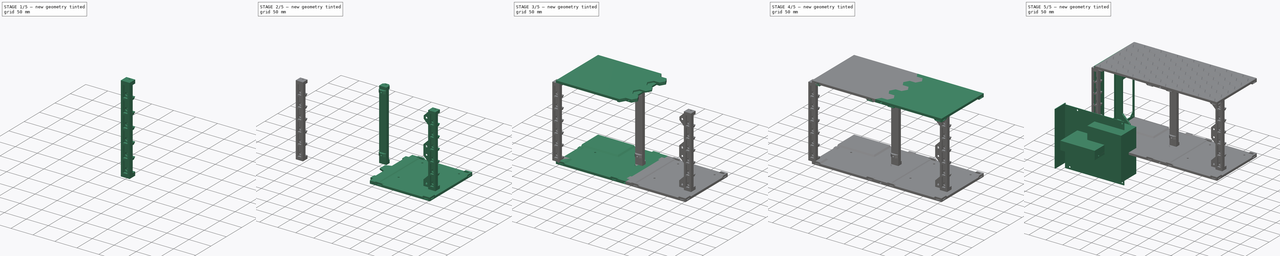
[diagram: build sequence overview — one tinted view per stage of 5, left to right]
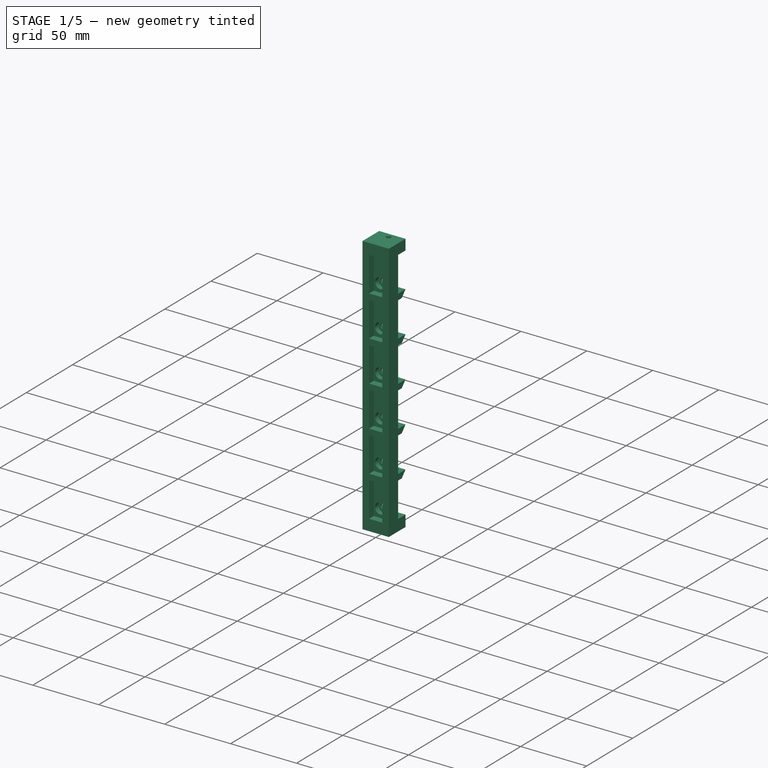
[diagram: stage 1 of 5 — iso view after this stage's code; geometry added in this stage tinted green]
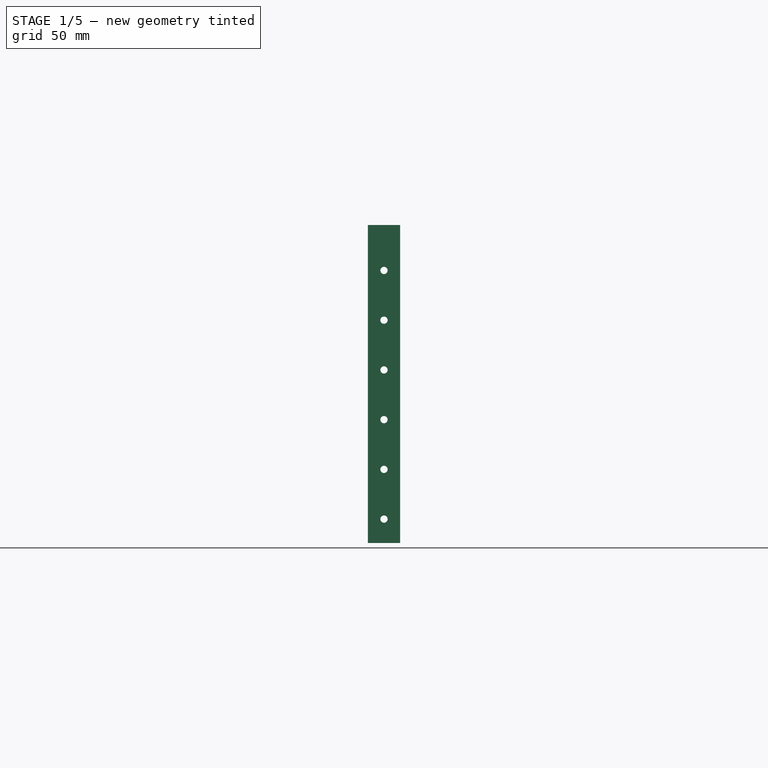
[diagram: stage 1 of 5 — front view after this stage's code; geometry added in this stage tinted green]
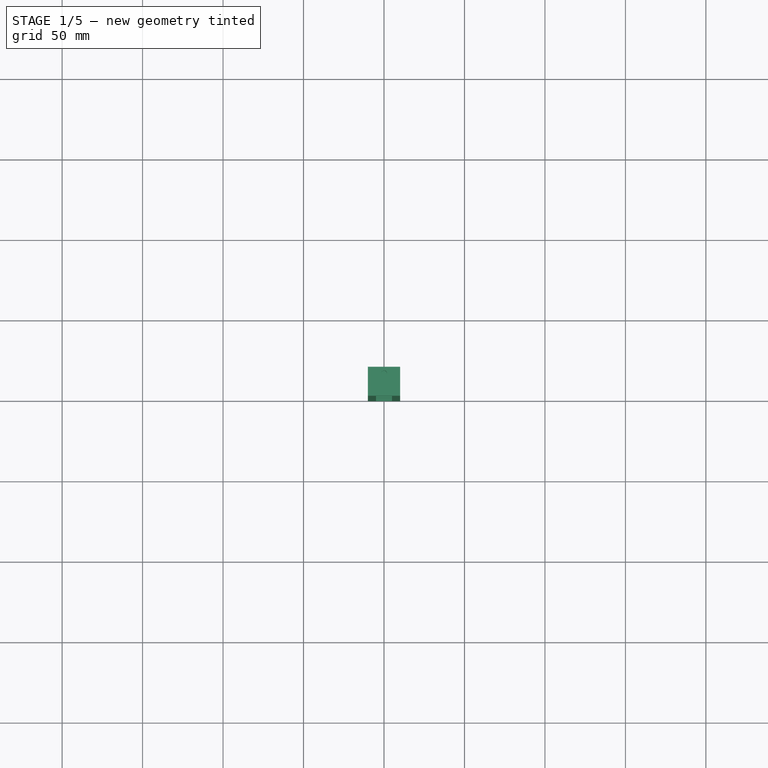
[diagram: stage 1 of 5 — top view after this stage's code; geometry added in this stage tinted green]
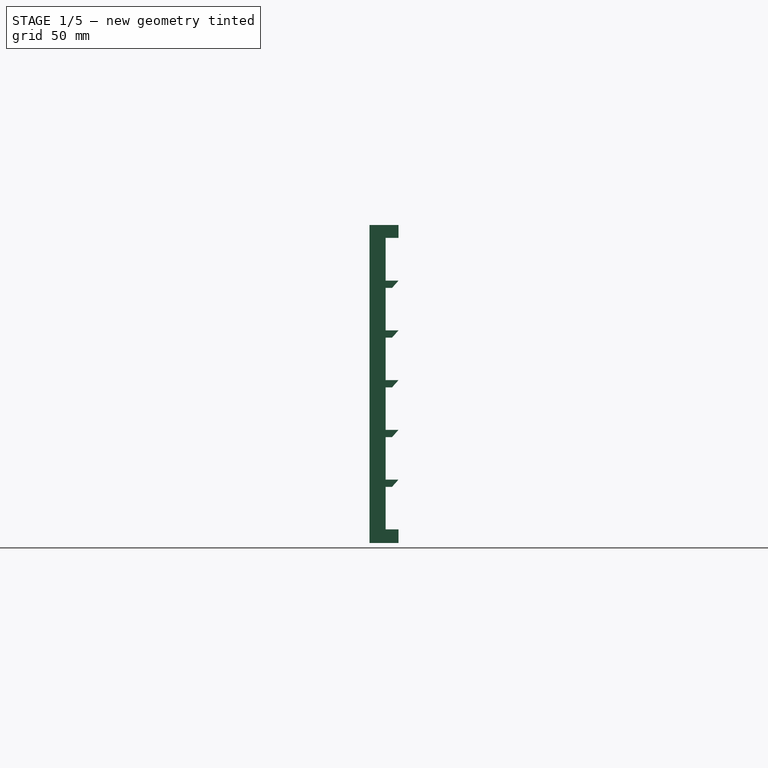
[diagram: stage 1 of 5 — right view after this stage's code; geometry added in this stage tinted green]
FCSTD DOCUMENT  (FreeCAD 1.0RUnknown)
Label: Case
License: All rights reserved
LicenseURL: https://en.wikipedia.org/wiki/All_rights_reserved
objects: Sketcher::SketchObject×85, PartDesign::Pocket×50, PartDesign::Pad×34, PartDesign::Hole×17, PartDesign::Body×13, PartDesign::Draft×10, PartDesign::Plane×7, PartDesign::LinearPattern×5, PartDesign::AdditiveBox×2, PartDesign::MultiTransform×2, PartDesign::Chamfer×1, Part::Mirroring×1
note: 547 computed .brp shape members not serialized (recipe doc carries the construction recipe); baked Part::Feature solids carry a one-line shape summary decoded from their .brp

FEATURE [Sketcher::SketchObject] Sketch053
  ArcFitTolerance = 1e-06
  AttachmentSupport = -> [YZ_Plane012]
  FullyConstrained = true
  MakeInternals = false
  MapMode = 5
  Placement = pos=(0,0,0) rot=(0.57735,0.57735,0.57735;2.0944rad)
  sketch-geometry (39):
    g0: LineSegment [constr] StartX=0 StartY=0 StartZ=0 EndX=167.76 EndY=0 EndZ=0
    g1: LineSegment [constr] StartX=167.76 StartY=0 StartZ=0 EndX=167.76 EndY=210 EndZ=0
    g2: LineSegment [constr] StartX=167.76 StartY=210 StartZ=0 EndX=0 EndY=210 EndZ=0
    g3: LineSegment [constr] StartX=0 StartY=210 StartZ=0 EndX=0 EndY=0 EndZ=0
    g4: LineSegment [constr] StartX=0 StartY=6.2 StartZ=0 EndX=167.76 EndY=6.2 EndZ=0
    g5: LineSegment [constr] StartX=0 StartY=203.8 StartZ=0 EndX=167.76 EndY=203.8 EndZ=0
    g6: LineSegment [constr] StartX=0 StartY=203.8 StartZ=0 EndX=0 EndY=6.2 EndZ=0
    g7: LineSegment [constr] StartX=0 StartY=6.2 StartZ=0 EndX=18 EndY=6.2 EndZ=0
    g8: LineSegment [constr] StartX=18 StartY=6.2 StartZ=0 EndX=18 EndY=203.8 EndZ=0
    g9: LineSegment [constr] StartX=18 StartY=203.8 StartZ=0 EndX=0 EndY=203.8 EndZ=0
    g10: LineSegment StartX=0 StartY=6.2 StartZ=0 EndX=18 EndY=6.2 EndZ=0
    g11: LineSegment StartX=18 StartY=6.2 StartZ=0 EndX=18 EndY=14.7 EndZ=0
    g12: LineSegment StartX=18 StartY=14.7 StartZ=0 EndX=10 EndY=14.7 EndZ=0
    g13: LineSegment StartX=10 StartY=195.8 StartZ=0 EndX=18 EndY=195.8 EndZ=0
    g14: LineSegment StartX=18 StartY=195.8 StartZ=0 EndX=18 EndY=203.8 EndZ=0
    g15: LineSegment StartX=18 StartY=203.8 StartZ=0 EndX=0 EndY=203.8 EndZ=0
    g16: LineSegment StartX=0 StartY=203.8 StartZ=0 EndX=0 EndY=6.2 EndZ=0
    g17: LineSegment [constr] StartX=0 StartY=10.2 StartZ=0 EndX=18 EndY=10.2 EndZ=0
    g18: LineSegment StartX=10 StartY=14.7 StartZ=0 EndX=10 EndY=41.1 EndZ=0
    g19: LineSegment StartX=18 StartY=45.6 StartZ=0 EndX=10 EndY=45.6 EndZ=0
    g20: LineSegment StartX=10 StartY=41.1 StartZ=0 EndX=14 EndY=41.1 EndZ=0
    g21: LineSegment StartX=14 StartY=41.1 StartZ=0 EndX=18 EndY=45.6 EndZ=0
    g22: LineSegment StartX=10 StartY=45.6 StartZ=0 EndX=10 EndY=72 EndZ=0
    g23: LineSegment StartX=10 StartY=72 StartZ=0 EndX=14 EndY=72 EndZ=0
    g24: LineSegment StartX=14 StartY=72 StartZ=0 EndX=18 EndY=76.5 EndZ=0
    g25: LineSegment StartX=18 StartY=76.5 StartZ=0 EndX=10 EndY=76.5 EndZ=0
    g26: LineSegment StartX=10 StartY=76.5 StartZ=0 EndX=10 EndY=102.9 EndZ=0
    g27: LineSegment StartX=10 StartY=102.9 StartZ=0 EndX=14 EndY=102.9 EndZ=0
    g28: LineSegment StartX=14 StartY=102.9 StartZ=0 EndX=18 EndY=107.4 EndZ=0
    g29: LineSegment StartX=18 StartY=107.4 StartZ=0 EndX=10 EndY=107.4 EndZ=0
    g30: LineSegment StartX=10 StartY=107.4 StartZ=0 EndX=10 EndY=133.8 EndZ=0
    g31: LineSegment StartX=10 StartY=133.8 StartZ=0 EndX=14 EndY=133.8 EndZ=0
    g32: LineSegment StartX=14 StartY=133.8 StartZ=0 EndX=18 EndY=138.3 EndZ=0
    g33: LineSegment StartX=18 StartY=138.3 StartZ=0 EndX=10 EndY=138.3 EndZ=0
    g34: LineSegment StartX=10 StartY=138.3 StartZ=0 EndX=10 EndY=164.7 EndZ=0
    g35: LineSegment StartX=10 StartY=164.7 StartZ=0 EndX=14 EndY=164.7 EndZ=0
    g36: LineSegment StartX=14 StartY=164.7 StartZ=0 EndX=18 EndY=169.2 EndZ=0
    g37: LineSegment StartX=18 StartY=169.2 StartZ=0 EndX=10 EndY=169.2 EndZ=0
    g38: LineSegment StartX=10 StartY=169.2 StartZ=0 EndX=10 EndY=195.8 EndZ=0
  constraints (114):
    c: Coincident(g0,g1)
    c: Coincident(g1,g2)
    c: Coincident(g2,g3)
    c: Coincident(g3,g0)
    c: Horizontal(g0)
    c: Horizontal(g2)
    c: Vertical(g1)
    c: Vertical(g3)
    c: Distance(g1,g3) = 167.76
    c: Distance(g0,g2) = 210
    c: Coincident(g0,g-1)
    c: PointOnObject(g4,g3)
    c: PointOnObject(g4,g1)
    c: Horizontal(g4)
    c: PointOnObject(g5,g3)
    c: PointOnObject(g5,g1)
    c: Horizontal(g5)
    c: DistanceY(g5,g1) = 6.2
    c: Distance(g4,g0) = 6.2
    c: Coincident(g6,g7)
    c: Coincident(g7,g8)
    c: Coincident(g8,g9)
    c: Coincident(g9,g6)
    c: Vertical(g6)
    c: Horizontal(g7)
    c: Horizontal(g9)
    c: PointOnObject(g6,g5)
    c: Coincident(g6,g10)
    c: Coincident(g10,g7)
    c: Coincident(g10,g11)
    c: PointOnObject(g11,g8)
    c: Vertical(g11)
    c: Coincident(g11,g12)
    c: Horizontal(g12)
    c: Coincident(g12,g18)
    c: Coincident(g38,g13)
    c: PointOnObject(g13,g8)
    c: Horizontal(g13)
    c: Coincident(g13,g14)
    c: Coincident(g14,g8)
    c: Coincident(g14,g15)
    c: Coincident(g15,g6)
    c: Coincident(g15,g16)
    c: Coincident(g16,g10)
    c: PointOnObject(g17,g16)
    c: PointOnObject(g17,g11)
    c: Horizontal(g17)
    c: DistanceY(g7,g17) = 4
    c: DistanceY(g14,g14) = 8
    c: DistanceY(g17,g11) = 4.5
    c: Coincident(g18,g20)
    c: Vertical(g18)
    c: Coincident(g21,g19)
    c: Coincident(g19,g22)
    c: Horizontal(g19)
    c: Coincident(g20,g21)
    c: Horizontal(g20)
    c: Coincident(g22,g23)
    c: Vertical(g22)
    c: Coincident(g23,g24)
    c: Coincident(g24,g25)
    c: Coincident(g25,g26)
    c: Horizontal(g25)
    c: Horizontal(g23)
    c: Coincident(g26,g27)
    c: Vertical(g26)
    c: Coincident(g27,g28)
    c: Coincident(g28,g29)
    c: Coincident(g29,g30)
    c: Horizontal(g29)
    c: Horizontal(g27)
    c: Coincident(g30,g31)
    c: Vertical(g30)
    c: Coincident(g31,g32)
    c: Coincident(g32,g33)
    c: Coincident(g33,g34)
    c: Horizontal(g31)
    c: Horizontal(g33)
    c: Coincident(g34,g35)
    c: Vertical(g34)
    c: Coincident(g35,g36)
    c: Coincident(g36,g37)
    c: Coincident(g37,g38)
    c: Vertical(g38)
    c: Horizontal(g37)
    c: Horizontal(g35)
    c: Equal(g20,g23)
    c: Equal(g23,g27)
    c: Equal(g27,g31)
    c: Equal(g31,g35)
    c: Equal(g37,g33)
    c: Equal(g33,g29)
    c: Equal(g29,g25)
    c: Equal(g25,g19)
    c: Equal(g21,g24)
    c: Equal(g24,g32)
    c: Equal(g32,g36)
    c: Parallel(g32,g28)
    c: Parallel(g28,g24)
    c: Parallel(g24,g21)
    c: Parallel(g21,g36)
    c: PointOnObject(g34,g38)
    c: Equal(g28,g32)
    c: Equal(g18,g22)
    c: Equal(g22,g26)
    c: Equal(g26,g30)
    c: Equal(g30,g34)
    c: DistanceY(g18,g18) = 26.4
    c: Distance(g19,g18) = 4.5
    c: Distance(g12,g16) = 10
    c: DistanceX(g20,g20) = 4
    c: DistanceX(g19,g19) = 8
    c: DistanceX(g12,g12) = 8
    c: Coincident(g6,g4)
FEATURE [PartDesign::Pad] Pad022
  Direction = (1,0,0)
  Length = 20
  Length2 = 9
  Midplane = true
  Placement = pos=(0,0,0) rot=(1,1,1;2.0944rad)
  Profile = -> Sketch053
  ReferenceAxis = -> Sketch053 [N_Axis]
  Refine = true
  Suppressed = false
  Type = 0
FEATURE [Sketcher::SketchObject] Sketch054
  ArcFitTolerance = 1e-06
  AttachmentSupport = -> [Pad022]
  ExternalGeometry = -> [Pad022]
  FullyConstrained = true
  MakeInternals = false
  MapMode = 5
  Placement = pos=(0,0,0) rot=(0.57735,0.57735,-0.57735;2.0944rad)
  sketch-geometry (26):
    g0: LineSegment [constr] StartX=-14.7 StartY=-5 StartZ=0 EndX=-195.8 EndY=-5 EndZ=0
    g1: LineSegment [constr] StartX=-195.8 StartY=5 StartZ=0 EndX=-14.7 EndY=5 EndZ=0
    g2: LineSegment StartX=-14.7 StartY=-5 StartZ=0 EndX=-14.7 EndY=5 EndZ=0
    g3: LineSegment StartX=-14.7 StartY=5 StartZ=0 EndX=-41.1 EndY=5 EndZ=0
    g4: LineSegment StartX=-41.1 StartY=5 StartZ=0 EndX=-41.1 EndY=-5 EndZ=0
    g5: LineSegment StartX=-41.1 StartY=-5 StartZ=0 EndX=-14.7 EndY=-5 EndZ=0
    g6: LineSegment StartX=-45.6 StartY=-5 StartZ=0 EndX=-45.6 EndY=5 EndZ=0
    g7: LineSegment StartX=-45.6 StartY=5 StartZ=0 EndX=-72 EndY=5 EndZ=0
    g8: LineSegment StartX=-72 StartY=5 StartZ=0 EndX=-72 EndY=-5 EndZ=0
    g9: LineSegment StartX=-72 StartY=-5 StartZ=0 EndX=-45.6 EndY=-5 EndZ=0
    g10: LineSegment StartX=-76.5 StartY=-5 StartZ=0 EndX=-76.5 EndY=5 EndZ=0
    g11: LineSegment StartX=-76.5 StartY=5 StartZ=0 EndX=-102.9 EndY=5 EndZ=0
    g12: LineSegment StartX=-102.9 StartY=5 StartZ=0 EndX=-102.9 EndY=-5 EndZ=0
    g13: LineSegment StartX=-102.9 StartY=-5 StartZ=0 EndX=-76.5 EndY=-5 EndZ=0
    g14: LineSegment StartX=-107.4 StartY=-5 StartZ=0 EndX=-107.4 EndY=5 EndZ=0
    g15: LineSegment StartX=-107.4 StartY=5 StartZ=0 EndX=-133.8 EndY=5 EndZ=0
    g16: LineSegment StartX=-133.8 StartY=5 StartZ=0 EndX=-133.8 EndY=-5 EndZ=0
    g17: LineSegment StartX=-133.8 StartY=-5 StartZ=0 EndX=-107.4 EndY=-5 EndZ=0
    g18: LineSegment StartX=-138.3 StartY=-5 StartZ=0 EndX=-138.3 EndY=5 EndZ=0
    g19: LineSegment StartX=-138.3 StartY=5 StartZ=0 EndX=-164.7 EndY=5 EndZ=0
    g20: LineSegment StartX=-164.7 StartY=5 StartZ=0 EndX=-164.7 EndY=-5 EndZ=0
    g21: LineSegment StartX=-164.7 StartY=-5 StartZ=0 EndX=-138.3 EndY=-5 EndZ=0
    g22: LineSegment StartX=-169.2 StartY=-5 StartZ=0 EndX=-169.2 EndY=5 EndZ=0
    g23: LineSegment StartX=-169.2 StartY=5 StartZ=0 EndX=-195.6 EndY=5 EndZ=0
    g24: LineSegment StartX=-195.6 StartY=5 StartZ=0 EndX=-195.6 EndY=-5 EndZ=0
    g25: LineSegment StartX=-195.6 StartY=-5 StartZ=0 EndX=-169.2 EndY=-5 EndZ=0
  constraints (78):
    c: PointOnObject(g0,g-12)
    c: PointOnObject(g0,g-3)
    c: Horizontal(g0)
    c: PointOnObject(g1,g-3)
    c: Horizontal(g1)
    c: Coincident(g2,g3)
    c: Coincident(g3,g4)
    c: Coincident(g4,g5)
    c: Coincident(g5,g2)
    c: Vertical(g2)
    c: Vertical(g4)
    c: Horizontal(g3)
    c: Horizontal(g5)
    c: Coincident(g2,g0)
    c: PointOnObject(g3,g-11)
    c: Coincident(g6,g7)
    c: Coincident(g7,g8)
    c: Coincident(g8,g9)
    c: Coincident(g9,g6)
    c: Vertical(g6)
    c: Vertical(g8)
    c: Horizontal(g7)
    c: Horizontal(g9)
    c: PointOnObject(g6,g-13)
    c: PointOnObject(g7,g-10)
    c: Coincident(g10,g11)
    c: Coincident(g11,g12)
    c: Coincident(g12,g13)
    c: Coincident(g13,g10)
    c: Vertical(g10)
    c: Vertical(g12)
    c: Horizontal(g11)
    c: Horizontal(g13)
    c: PointOnObject(g10,g-14)
    c: PointOnObject(g11,g-9)
    c: Coincident(g14,g15)
    c: Coincident(g15,g16)
    c: Coincident(g16,g17)
    c: Coincident(g17,g14)
    c: Vertical(g14)
    c: Vertical(g16)
    c: Horizontal(g15)
    c: Horizontal(g17)
    c: PointOnObject(g14,g-15)
    c: PointOnObject(g15,g-8)
    c: Coincident(g18,g19)
    c: Coincident(g19,g20)
    c: Coincident(g20,g21)
    c: Coincident(g21,g18)
    c: Vertical(g18)
    c: Vertical(g20)
    c: Horizontal(g19)
    c: Horizontal(g21)
    c: PointOnObject(g18,g-6)
    c: PointOnObject(g19,g-7)
    c: Coincident(g22,g23)
    c: Coincident(g23,g24)
    c: Coincident(g24,g25)
    c: Coincident(g25,g22)
    c: Vertical(g22)
    c: Vertical(g24)
    c: Horizontal(g23)
    c: Horizontal(g25)
    c: PointOnObject(g22,g-5)
    c: PointOnObject(g3,g1)
    c: PointOnObject(g6,g0)
    c: PointOnObject(g7,g1)
    c: PointOnObject(g10,g0)
    c: PointOnObject(g11,g1)
    c: PointOnObject(g14,g0)
    c: PointOnObject(g15,g1)
    c: PointOnObject(g18,g0)
    c: PointOnObject(g19,g1)
    c: PointOnObject(g22,g0)
    c: PointOnObject(g23,g1)
    c: Equal(g25,g21)
    c: DistanceY(g2,g2) = 10
    c: Symmetric(g0,g1,g-1)
FEATURE [PartDesign::Pocket] Pocket006
  BaseFeature = -> Pad022
  Direction = (0,1,0)
  Length = 5
  Length2 = 5
  Placement = pos=(0,0,0) rot=(1,1,1;2.0944rad)
  Profile = -> Sketch054
  ReferenceAxis = -> Sketch054 [N_Axis]
  Refine = true
  Suppressed = false
  Type = 0
FEATURE [Sketcher::SketchObject] Sketch055
  ArcFitTolerance = 1e-06
  AttachmentSupport = -> [Pocket006]
  ExternalGeometry = -> [Pocket006]
  FullyConstrained = true
  MakeInternals = false
  MapMode = 5
  Placement = pos=(0,5,0) rot=(0.57735,0.57735,-0.57735;2.0944rad)
  sketch-geometry (6):
    g0: Circle CenterX=-21.05 CenterY=0 CenterZ=0 NormalX=0 NormalY=0 NormalZ=1 AngleXU=0 Radius=2.25
    g1: Circle CenterX=-51.95 CenterY=0 CenterZ=0 NormalX=0 NormalY=0 NormalZ=1 AngleXU=0 Radius=2.25
    g2: Circle CenterX=-82.85 CenterY=0 CenterZ=0 NormalX=0 NormalY=0 NormalZ=1 AngleXU=0 Radius=2.25
    g3: Circle CenterX=-113.75 CenterY=0 CenterZ=0 NormalX=0 NormalY=0 NormalZ=1 AngleXU=0 Radius=2.25
    g4: Circle CenterX=-144.65 CenterY=0 CenterZ=0 NormalX=0 NormalY=0 NormalZ=1 AngleXU=0 Radius=2.25
    g5: Circle CenterX=-175.55 CenterY=0 CenterZ=0 NormalX=0 NormalY=0 NormalZ=1 AngleXU=0 Radius=2.25
  constraints (18):
    c: Diameter(g0) = 4.5
    c: PointOnObject(g0,g-1)
    c: PointOnObject(g1,g-1)
    c: PointOnObject(g2,g-1)
    c: PointOnObject(g3,g-1)
    c: PointOnObject(g4,g-1)
    c: PointOnObject(g5,g-1)
    c: Equal(g5,g4)
    c: Equal(g4,g3)
    c: Equal(g3,g2)
    c: Equal(g2,g1)
    c: Equal(g1,g0)
    c: Distance(g0,g-3) = 6.35
    c: Distance(g1,g-4) = 6.35
    c: Distance(g2,g-5) = 6.35
    c: Distance(g3,g-6) = 6.35
    c: Distance(g4,g-7) = 6.35
    c: Distance(g5,g-8) = 6.35
FEATURE [PartDesign::Pocket] Pocket007
  BaseFeature = -> Pocket006
  Direction = (0,1,0)
  Length = 5
  Length2 = 5
  Placement = pos=(0,0,0) rot=(1,1,1;2.0944rad)
  Profile = -> Sketch055
  ReferenceAxis = -> Sketch055 [N_Axis]
  Refine = true
  Suppressed = false
  Type = 0
FEATURE [PartDesign::Hole] Hole002
  BaseFeature = -> Pocket007
  CustomThreadClearance = 0
  Depth = 3.5
  DepthType = 0
  Diameter = 8
  DrillForDepth = false
  DrillPoint = 0
  DrillPointAngle = 118
  HoleCutCountersinkAngle = 90
  HoleCutCustomValues = false
  HoleCutDepth = 0
  HoleCutDiameter = 6.1
  HoleCutType = 0
  ModelThread = false
  Placement = pos=(0,0,0) rot=(1,1,1;2.0944rad)
  Profile = -> Pocket007 [Edge164,Edge163,Edge165,Edge166,Edge167,Edge168]
  Refine = true
  Reversed = true
  Suppressed = false
  Tapered = false
  TaperedAngle = 90
  ThreadClass = 0
  ThreadDepth = 3.5
  ThreadDepthType = 0
  ThreadDirection = 0
  ThreadFit = 0
  ThreadSize = 0
  ThreadType = 0
  Threaded = false
  UseCustomThreadClearance = false
FEATURE [Sketcher::SketchObject] Sketch056
  ArcFitTolerance = 1e-06
  AttachmentSupport = -> [Hole002]
  ExternalGeometry = -> [Hole002]
  FullyConstrained = true
  MakeInternals = false
  MapMode = 5
  Placement = pos=(0,3.2e-15,14.7) rot=(0,0,-1;1.5708rad)
  sketch-geometry (1):
    g0: Circle CenterX=-14 CenterY=0 CenterZ=0 NormalX=0 NormalY=0 NormalZ=1 AngleXU=0 Radius=1.75
  constraints (3):
    c: Diameter(g0) = 3.5
    c: PointOnObject(g0,g-1)
    c: Distance(g0,g-3) = 4
FEATURE [PartDesign::Pocket] Pocket008
  BaseFeature = -> Hole002
  Direction = (0,0,-1)
  Length = 4.5
  Length2 = 5
  Placement = pos=(0,0,0) rot=(1,1,1;2.0944rad)
  Profile = -> Sketch056
  ReferenceAxis = -> Sketch056 [N_Axis]
  Refine = true
  Suppressed = false
  Type = 1
FEATURE [Sketcher::SketchObject] Sketch058
  ArcFitTolerance = 1e-06
  AttachmentSupport = -> [Pocket008]
  ExternalGeometry = -> [Pocket008]
  FullyConstrained = true
  MakeInternals = false
  MapMode = 5
  Placement = pos=(0,4.31e-14,195.8) rot=(0.707107,0.707107,0;3.14159rad)
  sketch-geometry (1):
    g0: Circle CenterX=14 CenterY=0 CenterZ=0 NormalX=0 NormalY=0 NormalZ=1 AngleXU=0 Radius=1.75
  constraints (3):
    c: Diameter(g0) = 3.5
    c: PointOnObject(g0,g-1)
    c: Distance(g0,g-3) = 4
FEATURE [PartDesign::Pocket] Pocket010
  BaseFeature = -> Pocket008
  Direction = (0,0,1)
  Length = 4
  Length2 = 5
  Placement = pos=(0,0,0) rot=(1,1,1;2.0944rad)
  Profile = -> Sketch058
  ReferenceAxis = -> Sketch058 [N_Axis]
  Refine = true
  Suppressed = false
  Type = 1
FEATURE [PartDesign::Body] Body001  label="MoboColumn"
  AllowCompound = false
  Group = -> [DatumPlane001,Sketch006,Pad018,Chamfer,Sketch044,Pocket001,Sketch045,Pocket002,Sketch046,Pocket003,Sketch047,Pocket004,Hole013,Hole014]
  Origin = -> Origin001
  Tip = -> Hole014
FEATURE [PartDesign::Hole] Hole015
  BaseFeature = -> Pocket010
  CustomThreadClearance = 0
  Depth = 4.5
  DepthType = 0
  Diameter = 6
  DrillForDepth = false
  DrillPoint = 0
  DrillPointAngle = 118
  HoleCutCountersinkAngle = 90
  HoleCutCustomValues = false
  HoleCutDepth = 0
  HoleCutDiameter = 6.1
  HoleCutType = 0
  ModelThread = false
  Placement = pos=(0,0,0) rot=(1,1,1;2.0944rad)
  Profile = -> Pocket010 [Edge86]
  Refine = true
  Suppressed = false
  Tapered = false
  TaperedAngle = 90
  ThreadClass = 0
  ThreadDepth = 4.5
  ThreadDepthType = 0
  ThreadDirection = 0
  ThreadFit = 0
  ThreadSize = 0
  ThreadType = 0
  Threaded = false
  UseCustomThreadClearance = false
FEATURE [Sketcher::SketchObject] Sketch151
  ArcFitTolerance = 1e-06
  AttachmentSupport = -> [YZ_Plane019]
  FullyConstrained = true
  MakeInternals = false
  MapMode = 5
  Placement = pos=(0,0,0) rot=(0.57735,0.57735,0.57735;2.0944rad)
  sketch-geometry (39):
    g0: LineSegment [constr] StartX=0 StartY=0 StartZ=0 EndX=167.76 EndY=0 EndZ=0
    g1: LineSegment [constr] StartX=167.76 StartY=0 StartZ=0 EndX=167.76 EndY=210 EndZ=0
    g2: LineSegment [constr] StartX=167.76 StartY=210 StartZ=0 EndX=0 EndY=210 EndZ=0
    g3: LineSegment [constr] StartX=0 StartY=210 StartZ=0 EndX=0 EndY=0 EndZ=0
    g4: LineSegment [constr] StartX=0 StartY=6.2 StartZ=0 EndX=167.76 EndY=6.2 EndZ=0
    g5: LineSegment [constr] StartX=0 StartY=203.8 StartZ=0 EndX=167.76 EndY=203.8 EndZ=0
    g6: LineSegment [constr] StartX=0 StartY=203.8 StartZ=0 EndX=0 EndY=6.2 EndZ=0
    g7: LineSegment [constr] StartX=0 StartY=6.2 StartZ=0 EndX=18 EndY=6.2 EndZ=0
    g8: LineSegment [constr] StartX=18 StartY=6.2 StartZ=0 EndX=18 EndY=203.8 EndZ=0
    g9: LineSegment [constr] StartX=18 StartY=203.8 StartZ=0 EndX=0 EndY=203.8 EndZ=0
    g10: LineSegment StartX=0 StartY=6.2 StartZ=0 EndX=18 EndY=6.2 EndZ=0
    g11: LineSegment StartX=18 StartY=6.2 StartZ=0 EndX=18 EndY=14.7 EndZ=0
    g12: LineSegment StartX=18 StartY=14.7 StartZ=0 EndX=10 EndY=14.7 EndZ=0
    g13: LineSegment StartX=10 StartY=195.8 StartZ=0 EndX=18 EndY=195.8 EndZ=0
    g14: LineSegment StartX=18 StartY=195.8 StartZ=0 EndX=18 EndY=203.8 EndZ=0
    g15: LineSegment StartX=18 StartY=203.8 StartZ=0 EndX=0 EndY=203.8 EndZ=0
    g16: LineSegment StartX=0 StartY=203.8 StartZ=0 EndX=0 EndY=6.2 EndZ=0
    g17: LineSegment [constr] StartX=0 StartY=10.2 StartZ=0 EndX=18 EndY=10.2 EndZ=0
    g18: LineSegment StartX=10 StartY=14.7 StartZ=0 EndX=10 EndY=41.1 EndZ=0
    g19: LineSegment StartX=18 StartY=45.6 StartZ=0 EndX=10 EndY=45.6 EndZ=0
    g20: LineSegment StartX=10 StartY=41.1 StartZ=0 EndX=14 EndY=41.1 EndZ=0
    g21: LineSegment StartX=14 StartY=41.1 StartZ=0 EndX=18 EndY=45.6 EndZ=0
    g22: LineSegment StartX=10 StartY=45.6 StartZ=0 EndX=10 EndY=72 EndZ=0
    g23: LineSegment StartX=10 StartY=72 StartZ=0 EndX=14 EndY=72 EndZ=0
    g24: LineSegment StartX=14 StartY=72 StartZ=0 EndX=18 EndY=76.5 EndZ=0
    g25: LineSegment StartX=18 StartY=76.5 StartZ=0 EndX=10 EndY=76.5 EndZ=0
    g26: LineSegment StartX=10 StartY=76.5 StartZ=0 EndX=10 EndY=102.9 EndZ=0
    g27: LineSegment StartX=10 StartY=102.9 StartZ=0 EndX=14 EndY=102.9 EndZ=0
    g28: LineSegment StartX=14 StartY=102.9 StartZ=0 EndX=18 EndY=107.4 EndZ=0
    g29: LineSegment StartX=18 StartY=107.4 StartZ=0 EndX=10 EndY=107.4 EndZ=0
    g30: LineSegment StartX=10 StartY=107.4 StartZ=0 EndX=10 EndY=133.8 EndZ=0
    g31: LineSegment StartX=10 StartY=133.8 StartZ=0 EndX=14 EndY=133.8 EndZ=0
    g32: LineSegment StartX=14 StartY=133.8 StartZ=0 EndX=18 EndY=138.3 EndZ=0
    g33: LineSegment StartX=18 StartY=138.3 StartZ=0 EndX=10 EndY=138.3 EndZ=0
    g34: LineSegment StartX=10 StartY=138.3 StartZ=0 EndX=10 EndY=164.7 EndZ=0
    g35: LineSegment StartX=10 StartY=164.7 StartZ=0 EndX=14 EndY=164.7 EndZ=0
    g36: LineSegment StartX=14 StartY=164.7 StartZ=0 EndX=18 EndY=169.2 EndZ=0
    g37: LineSegment StartX=18 StartY=169.2 StartZ=0 EndX=10 EndY=169.2 EndZ=0
    g38: LineSegment StartX=10 StartY=169.2 StartZ=0 EndX=10 EndY=195.8 EndZ=0
  constraints (114):
    c: Coincident(g0,g1)
    c: Coincident(g1,g2)
    c: Coincident(g2,g3)
    c: Coincident(g3,g0)
    c: Horizontal(g0)
    c: Horizontal(g2)
    c: Vertical(g1)
    c: Vertical(g3)
    c: Distance(g1,g3) = 167.76
    c: Distance(g0,g2) = 210
    c: Coincident(g0,g-1)
    c: PointOnObject(g4,g3)
    c: PointOnObject(g4,g1)
    c: Horizontal(g4)
    c: PointOnObject(g5,g3)
    c: PointOnObject(g5,g1)
    c: Horizontal(g5)
    c: DistanceY(g5,g1) = 6.2
    c: Distance(g4,g0) = 6.2
    c: Coincident(g6,g7)
    c: Coincident(g7,g8)
    c: Coincident(g8,g9)
    c: Coincident(g9,g6)
    c: Vertical(g6)
    c: Horizontal(g7)
    c: Horizontal(g9)
    c: PointOnObject(g6,g5)
    c: Coincident(g6,g10)
    c: Coincident(g10,g7)
    c: Coincident(g10,g11)
    c: PointOnObject(g11,g8)
    c: Vertical(g11)
    c: Coincident(g11,g12)
    c: Horizontal(g12)
    c: Coincident(g12,g18)
    c: Coincident(g38,g13)
    c: PointOnObject(g13,g8)
    c: Horizontal(g13)
    c: Coincident(g13,g14)
    c: Coincident(g14,g8)
    c: Coincident(g14,g15)
    c: Coincident(g15,g6)
    c: Coincident(g15,g16)
    c: Coincident(g16,g10)
    c: PointOnObject(g17,g16)
    c: PointOnObject(g17,g11)
    c: Horizontal(g17)
    c: DistanceY(g7,g17) = 4
    c: DistanceY(g14,g14) = 8
    c: DistanceY(g17,g11) = 4.5
    c: Coincident(g18,g20)
    c: Vertical(g18)
    c: Coincident(g21,g19)
    c: Coincident(g19,g22)
    c: Horizontal(g19)
    c: Coincident(g20,g21)
    c: Horizontal(g20)
    c: Coincident(g22,g23)
    c: Vertical(g22)
    c: Coincident(g23,g24)
    c: Coincident(g24,g25)
    c: Coincident(g25,g26)
    c: Horizontal(g25)
    c: Horizontal(g23)
    c: Coincident(g26,g27)
    c: Vertical(g26)
    c: Coincident(g27,g28)
    c: Coincident(g28,g29)
    c: Coincident(g29,g30)
    c: Horizontal(g29)
    c: Horizontal(g27)
    c: Coincident(g30,g31)
    c: Vertical(g30)
    c: Coincident(g31,g32)
    c: Coincident(g32,g33)
    c: Coincident(g33,g34)
    c: Horizontal(g31)
    c: Horizontal(g33)
    c: Coincident(g34,g35)
    c: Vertical(g34)
    c: Coincident(g35,g36)
    c: Coincident(g36,g37)
    c: Coincident(g37,g38)
    c: Vertical(g38)
    c: Horizontal(g37)
    c: Horizontal(g35)
    c: Equal(g20,g23)
    c: Equal(g23,g27)
    c: Equal(g27,g31)
    c: Equal(g31,g35)
    c: Equal(g37,g33)
    c: Equal(g33,g29)
    c: Equal(g29,g25)
    c: Equal(g25,g19)
    c: Equal(g21,g24)
    c: Equal(g24,g32)
    c: Equal(g32,g36)
    c: Parallel(g32,g28)
    c: Parallel(g28,g24)
    c: Parallel(g24,g21)
    c: Parallel(g21,g36)
    c: PointOnObject(g34,g38)
    c: Equal(g28,g32)
    c: Equal(g18,g22)
    c: Equal(g22,g26)
    c: Equal(g26,g30)
    c: Equal(g30,g34)
    c: DistanceY(g18,g18) = 26.4
    c: Distance(g19,g18) = 4.5
    c: Distance(g12,g16) = 10
    c: DistanceX(g20,g20) = 4
    c: DistanceX(g19,g19) = 8
    c: DistanceX(g12,g12) = 8
    c: Coincident(g6,g4)
FEATURE [PartDesign::Pad] Pad058
  Direction = (1,0,0)
  Length = 20
  Length2 = 9
  Midplane = true
  Placement = pos=(0,0,0) rot=(1,1,1;2.0944rad)
  Profile = -> Sketch151
  ReferenceAxis = -> Sketch151 [N_Axis]
  Refine = true
  Suppressed = false
  Type = 0
FEATURE [Sketcher::SketchObject] Sketch152
  ArcFitTolerance = 1e-06
  AttachmentSupport = -> [Pad058]
  ExternalGeometry = -> [Pad058]
  FullyConstrained = true
  MakeInternals = false
  MapMode = 5
  Placement = pos=(0,0,0) rot=(0.57735,0.57735,-0.57735;2.0944rad)
  sketch-geometry (26):
    g0: LineSegment [constr] StartX=-14.7 StartY=-5 StartZ=0 EndX=-195.8 EndY=-5 EndZ=0
    g1: LineSegment [constr] StartX=-195.8 StartY=5 StartZ=0 EndX=-14.7 EndY=5 EndZ=0
    g2: LineSegment StartX=-14.7 StartY=-5 StartZ=0 EndX=-14.7 EndY=5 EndZ=0
    g3: LineSegment StartX=-14.7 StartY=5 StartZ=0 EndX=-41.1 EndY=5 EndZ=0
    g4: LineSegment StartX=-41.1 StartY=5 StartZ=0 EndX=-41.1 EndY=-5 EndZ=0
    g5: LineSegment StartX=-41.1 StartY=-5 StartZ=0 EndX=-14.7 EndY=-5 EndZ=0
    g6: LineSegment StartX=-45.6 StartY=-5 StartZ=0 EndX=-45.6 EndY=5 EndZ=0
    g7: LineSegment StartX=-45.6 StartY=5 StartZ=0 EndX=-72 EndY=5 EndZ=0
    g8: LineSegment StartX=-72 StartY=5 StartZ=0 EndX=-72 EndY=-5 EndZ=0
    g9: LineSegment StartX=-72 StartY=-5 StartZ=0 EndX=-45.6 EndY=-5 EndZ=0
    g10: LineSegment StartX=-76.5 StartY=-5 StartZ=0 EndX=-76.5 EndY=5 EndZ=0
    g11: LineSegment StartX=-76.5 StartY=5 StartZ=0 EndX=-102.9 EndY=5 EndZ=0
    g12: LineSegment StartX=-102.9 StartY=5 StartZ=0 EndX=-102.9 EndY=-5 EndZ=0
    g13: LineSegment StartX=-102.9 StartY=-5 StartZ=0 EndX=-76.5 EndY=-5 EndZ=0
    g14: LineSegment StartX=-107.4 StartY=-5 StartZ=0 EndX=-107.4 EndY=5 EndZ=0
    g15: LineSegment StartX=-107.4 StartY=5 StartZ=0 EndX=-133.8 EndY=5 EndZ=0
    g16: LineSegment StartX=-133.8 StartY=5 StartZ=0 EndX=-133.8 EndY=-5 EndZ=0
    g17: LineSegment StartX=-133.8 StartY=-5 StartZ=0 EndX=-107.4 EndY=-5 EndZ=0
    g18: LineSegment StartX=-138.3 StartY=-5 StartZ=0 EndX=-138.3 EndY=5 EndZ=0
    g19: LineSegment StartX=-138.3 StartY=5 StartZ=0 EndX=-164.7 EndY=5 EndZ=0
    g20: LineSegment StartX=-164.7 StartY=5 StartZ=0 EndX=-164.7 EndY=-5 EndZ=0
    g21: LineSegment StartX=-164.7 StartY=-5 StartZ=0 EndX=-138.3 EndY=-5 EndZ=0
    g22: LineSegment StartX=-169.2 StartY=-5 StartZ=0 EndX=-169.2 EndY=5 EndZ=0
    g23: LineSegment StartX=-169.2 StartY=5 StartZ=0 EndX=-195.6 EndY=5 EndZ=0
    g24: LineSegment StartX=-195.6 StartY=5 StartZ=0 EndX=-195.6 EndY=-5 EndZ=0
    g25: LineSegment StartX=-195.6 StartY=-5 StartZ=0 EndX=-169.2 EndY=-5 EndZ=0
  constraints (78):
    c: PointOnObject(g0,g-12)
    c: PointOnObject(g0,g-3)
    c: Horizontal(g0)
    c: PointOnObject(g1,g-3)
    c: Horizontal(g1)
    c: Coincident(g2,g3)
    c: Coincident(g3,g4)
    c: Coincident(g4,g5)
    c: Coincident(g5,g2)
    c: Vertical(g2)
    c: Vertical(g4)
    c: Horizontal(g3)
    c: Horizontal(g5)
    c: Coincident(g2,g0)
    c: PointOnObject(g3,g-11)
    c: Coincident(g6,g7)
    c: Coincident(g7,g8)
    c: Coincident(g8,g9)
    c: Coincident(g9,g6)
    c: Vertical(g6)
    c: Vertical(g8)
    c: Horizontal(g7)
    c: Horizontal(g9)
    c: PointOnObject(g6,g-13)
    c: PointOnObject(g7,g-10)
    c: Coincident(g10,g11)
    c: Coincident(g11,g12)
    c: Coincident(g12,g13)
    c: Coincident(g13,g10)
    c: Vertical(g10)
    c: Vertical(g12)
    c: Horizontal(g11)
    c: Horizontal(g13)
    c: PointOnObject(g10,g-14)
    c: PointOnObject(g11,g-9)
    c: Coincident(g14,g15)
    c: Coincident(g15,g16)
    c: Coincident(g16,g17)
    c: Coincident(g17,g14)
    c: Vertical(g14)
    c: Vertical(g16)
    c: Horizontal(g15)
    c: Horizontal(g17)
    c: PointOnObject(g14,g-15)
    c: PointOnObject(g15,g-8)
    c: Coincident(g18,g19)
    c: Coincident(g19,g20)
    c: Coincident(g20,g21)
    c: Coincident(g21,g18)
    c: Vertical(g18)
    c: Vertical(g20)
    c: Horizontal(g19)
    c: Horizontal(g21)
    c: PointOnObject(g18,g-6)
    c: PointOnObject(g19,g-7)
    c: Coincident(g22,g23)
    c: Coincident(g23,g24)
    c: Coincident(g24,g25)
    c: Coincident(g25,g22)
    c: Vertical(g22)
    c: Vertical(g24)
    c: Horizontal(g23)
    c: Horizontal(g25)
    c: PointOnObject(g22,g-5)
    c: PointOnObject(g3,g1)
    c: PointOnObject(g6,g0)
    c: PointOnObject(g7,g1)
    c: PointOnObject(g10,g0)
    c: PointOnObject(g11,g1)
    c: PointOnObject(g14,g0)
    c: PointOnObject(g15,g1)
    c: PointOnObject(g18,g0)
    c: PointOnObject(g19,g1)
    c: PointOnObject(g22,g0)
    c: PointOnObject(g23,g1)
    c: Equal(g25,g21)
    c: DistanceY(g2,g2) = 10
    c: Symmetric(g0,g1,g-1)
FEATURE [PartDesign::Pocket] Pocket073
  BaseFeature = -> Pad058
  Direction = (0,1,0)
  Length = 5
  Length2 = 5
  Placement = pos=(0,0,0) rot=(1,1,1;2.0944rad)
  Profile = -> Sketch152
  ReferenceAxis = -> Sketch152 [N_Axis]
  Refine = true
  Suppressed = false
  Type = 0
FEATURE [Sketcher::SketchObject] Sketch153
  ArcFitTolerance = 1e-06
  AttachmentSupport = -> [Pocket073]
  ExternalGeometry = -> [Pocket073]
  FullyConstrained = true
  MakeInternals = false
  MapMode = 5
  Placement = pos=(0,5,0) rot=(0.57735,0.57735,-0.57735;2.0944rad)
  sketch-geometry (6):
    g0: Circle CenterX=-21.05 CenterY=0 CenterZ=0 NormalX=0 NormalY=0 NormalZ=1 AngleXU=0 Radius=2.25
    g1: Circle CenterX=-51.95 CenterY=0 CenterZ=0 NormalX=0 NormalY=0 NormalZ=1 AngleXU=0 Radius=2.25
    g2: Circle CenterX=-82.85 CenterY=0 CenterZ=0 NormalX=0 NormalY=0 NormalZ=1 AngleXU=0 Radius=2.25
    g3: Circle CenterX=-113.75 CenterY=0 CenterZ=0 NormalX=0 NormalY=0 NormalZ=1 AngleXU=0 Radius=2.25
    g4: Circle CenterX=-144.65 CenterY=0 CenterZ=0 NormalX=0 NormalY=0 NormalZ=1 AngleXU=0 Radius=2.25
    g5: Circle CenterX=-175.55 CenterY=0 CenterZ=0 NormalX=0 NormalY=0 NormalZ=1 AngleXU=0 Radius=2.25
  constraints (18):
    c: Diameter(g0) = 4.5
    c: PointOnObject(g0,g-1)
    c: PointOnObject(g1,g-1)
    c: PointOnObject(g2,g-1)
    c: PointOnObject(g3,g-1)
    c: PointOnObject(g4,g-1)
    c: PointOnObject(g5,g-1)
    c: Equal(g5,g4)
    c: Equal(g4,g3)
    c: Equal(g3,g2)
    c: Equal(g2,g1)
    c: Equal(g1,g0)
    c: Distance(g0,g-3) = 6.35
    c: Distance(g1,g-4) = 6.35
    c: Distance(g2,g-5) = 6.35
    c: Distance(g3,g-6) = 6.35
    c: Distance(g4,g-7) = 6.35
    c: Distance(g5,g-8) = 6.35
FEATURE [PartDesign::Pocket] Pocket074
  BaseFeature = -> Pocket073
  Direction = (0,1,0)
  Length = 5
  Length2 = 5
  Placement = pos=(0,0,0) rot=(1,1,1;2.0944rad)
  Profile = -> Sketch153
  ReferenceAxis = -> Sketch153 [N_Axis]
  Refine = true
  Suppressed = false
  Type = 0
FEATURE [PartDesign::Hole] Hole017
  BaseFeature = -> Pocket074
  CustomThreadClearance = 0
  Depth = 3.5
  DepthType = 0
  Diameter = 8
  DrillForDepth = false
  DrillPoint = 0
  DrillPointAngle = 118
  HoleCutCountersinkAngle = 90
  HoleCutCustomValues = false
  HoleCutDepth = 0
  HoleCutDiameter = 6.1
  HoleCutType = 0
  ModelThread = false
  Placement = pos=(0,0,0) rot=(1,1,1;2.0944rad)
  Profile = -> Pocket074 [Edge164,Edge163,Edge165,Edge166,Edge167,Edge168]
  Refine = true
  Reversed = true
  Suppressed = false
  Tapered = false
  TaperedAngle = 90
  ThreadClass = 0
  ThreadDepth = 3.5
  ThreadDepthType = 0
  ThreadDirection = 0
  ThreadFit = 0
  ThreadSize = 0
  ThreadType = 0
  Threaded = false
  UseCustomThreadClearance = false
FEATURE [Sketcher::SketchObject] Sketch154
  ArcFitTolerance = 1e-06
  AttachmentSupport = -> [Hole017]
  ExternalGeometry = -> [Hole017]
  FullyConstrained = true
  MakeInternals = false
  MapMode = 5
  Placement = pos=(0,3.2e-15,14.7) rot=(0,0,-1;1.5708rad)
  sketch-geometry (1):
    g0: Circle CenterX=-14 CenterY=0 CenterZ=0 NormalX=0 NormalY=0 NormalZ=1 AngleXU=0 Radius=1.75
  constraints (3):
    c: Diameter(g0) = 3.5
    c: PointOnObject(g0,g-1)
    c: Distance(g0,g-3) = 4
FEATURE [PartDesign::Pocket] Pocket075
  BaseFeature = -> Hole017
  Direction = (1.1e-15,0,-1)
  Length = 4.5
  Length2 = 5
  Placement = pos=(0,0,0) rot=(1,1,1;2.0944rad)
  Profile = -> Sketch154
  ReferenceAxis = -> Sketch154 [N_Axis]
  Refine = true
  Suppressed = false
  Type = 1
FEATURE [Sketcher::SketchObject] Sketch155
  ArcFitTolerance = 1e-06
  AttachmentSupport = -> [Pocket075]
  ExternalGeometry = -> [Pocket075]
  FullyConstrained = true
  MakeInternals = false
  MapMode = 5
  Placement = pos=(0,4.31e-14,195.8) rot=(0.707107,0.707107,0;3.14159rad)
  sketch-geometry (1):
    g0: Circle CenterX=14 CenterY=0 CenterZ=0 NormalX=0 NormalY=0 NormalZ=1 AngleXU=0 Radius=1.75
  constraints (3):
    c: Diameter(g0) = 3.5
    c: PointOnObject(g0,g-1)
    c: Distance(g0,g-3) = 4
FEATURE [PartDesign::Pocket] Pocket076
  BaseFeature = -> Pocket075
  Direction = (-1.4e-15,0,1)
  Length = 4
  Length2 = 5
  Placement = pos=(0,0,0) rot=(1,1,1;2.0944rad)
  Profile = -> Sketch155
  ReferenceAxis = -> Sketch155 [N_Axis]
  Refine = true
  Suppressed = false
  Type = 1
FEATURE [PartDesign::Hole] Hole018
  BaseFeature = -> Pocket076
  CustomThreadClearance = 0
  Depth = 4.5
  DepthType = 0
  Diameter = 6
  DrillForDepth = false
  DrillPoint = 0
  DrillPointAngle = 118
  HoleCutCountersinkAngle = 90
  HoleCutCustomValues = false
  HoleCutDepth = 0
  HoleCutDiameter = 6.1
  HoleCutType = 0
  ModelThread = false
  Placement = pos=(0,0,0) rot=(1,1,1;2.0944rad)
  Profile = -> Pocket076 [Edge86]
  Refine = true
  Suppressed = false
  Tapered = false
  TaperedAngle = 90
  ThreadClass = 0
  ThreadDepth = 4.5
  ThreadDepthType = 0
  ThreadDirection = 0
  ThreadFit = 0
  ThreadSize = 0
  ThreadType = 0
  Threaded = false
  UseCustomThreadClearance = false
FEATURE [PartDesign::Hole] Hole019
  BaseFeature = -> Hole018
  CustomThreadClearance = 0
  Depth = 4
  DepthType = 0
  Diameter = 6
  DrillForDepth = false
  DrillPoint = 0
  DrillPointAngle = 118
  HoleCutCountersinkAngle = 90
  HoleCutCustomValues = false
  HoleCutDepth = 0
  HoleCutDiameter = 6.1
  HoleCutType = 0
  ModelThread = false
  Placement = pos=(0,0,0) rot=(1,1,1;2.0944rad)
  Profile = -> Hole018 [Edge168]
  Refine = true
  Reversed = true
  Suppressed = false
  Tapered = false
  TaperedAngle = 90
  ThreadClass = 0
  ThreadDepth = 4
  ThreadDepthType = 0
  ThreadDirection = 0
  ThreadFit = 0
  ThreadSize = 0
  ThreadType = 0
  Threaded = false
  UseCustomThreadClearance = false
FEATURE [PartDesign::Body] Body019  label="HDDMount-Back1"
  AllowCompound = false
  Group = -> [Sketch151,Pad058,Sketch152,Pocket073,Sketch153,Pocket074,Hole017,Sketch154,Pocket075,Sketch155,Pocket076,Hole018,Hole019]
  Origin = -> Origin019
  Placement = pos=(236.1,162.76,0) rot=(0,0,1;3.14159rad)
  Tip = -> Hole019
FEATURE [Sketcher::SketchObject] Sketch156
  ArcFitTolerance = 1e-06
  AttachmentSupport = -> [YZ_Plane020]
  FullyConstrained = true
  MakeInternals = false
  MapMode = 5
  Placement = pos=(0,0,0) rot=(0.57735,0.57735,0.57735;2.0944rad)
  sketch-geometry (39):
    g0: LineSegment [constr] StartX=0 StartY=0 StartZ=0 EndX=167.76 EndY=0 EndZ=0
    g1: LineSegment [constr] StartX=167.76 StartY=0 StartZ=0 EndX=167.76 EndY=210 EndZ=0
    g2: LineSegment [constr] StartX=167.76 StartY=210 StartZ=0 EndX=0 EndY=210 EndZ=0
    g3: LineSegment [constr] StartX=0 StartY=210 StartZ=0 EndX=0 EndY=0 EndZ=0
    g4: LineSegment [constr] StartX=0 StartY=6.2 StartZ=0 EndX=167.76 EndY=6.2 EndZ=0
    g5: LineSegment [constr] StartX=0 StartY=203.8 StartZ=0 EndX=167.76 EndY=203.8 EndZ=0
    g6: LineSegment [constr] StartX=0 StartY=203.8 StartZ=0 EndX=0 EndY=6.2 EndZ=0
    g7: LineSegment [constr] StartX=0 StartY=6.2 StartZ=0 EndX=18 EndY=6.2 EndZ=0
    g8: LineSegment [constr] StartX=18 StartY=6.2 StartZ=0 EndX=18 EndY=203.8 EndZ=0
    g9: LineSegment [constr] StartX=18 StartY=203.8 StartZ=0 EndX=0 EndY=203.8 EndZ=0
    g10: LineSegment StartX=0 StartY=6.2 StartZ=0 EndX=18 EndY=6.2 EndZ=0
    g11: LineSegment StartX=18 StartY=6.2 StartZ=0 EndX=18 EndY=14.7 EndZ=0
    g12: LineSegment StartX=18 StartY=14.7 StartZ=0 EndX=10 EndY=14.7 EndZ=0
    g13: LineSegment StartX=10 StartY=195.8 StartZ=0 EndX=18 EndY=195.8 EndZ=0
    g14: LineSegment StartX=18 StartY=195.8 StartZ=0 EndX=18 EndY=203.8 EndZ=0
    g15: LineSegment StartX=18 StartY=203.8 StartZ=0 EndX=0 EndY=203.8 EndZ=0
    g16: LineSegment StartX=0 StartY=203.8 StartZ=0 EndX=0 EndY=6.2 EndZ=0
    g17: LineSegment [constr] StartX=0 StartY=10.2 StartZ=0 EndX=18 EndY=10.2 EndZ=0
    g18: LineSegment StartX=10 StartY=14.7 StartZ=0 EndX=10 EndY=41.1 EndZ=0
    g19: LineSegment StartX=18 StartY=45.6 StartZ=0 EndX=10 EndY=45.6 EndZ=0
    g20: LineSegment StartX=10 StartY=41.1 StartZ=0 EndX=14 EndY=41.1 EndZ=0
    g21: LineSegment StartX=14 StartY=41.1 StartZ=0 EndX=18 EndY=45.6 EndZ=0
    g22: LineSegment StartX=10 StartY=45.6 StartZ=0 EndX=10 EndY=72 EndZ=0
    g23: LineSegment StartX=10 StartY=72 StartZ=0 EndX=14 EndY=72 EndZ=0
    g24: LineSegment StartX=14 StartY=72 StartZ=0 EndX=18 EndY=76.5 EndZ=0
    g25: LineSegment StartX=18 StartY=76.5 StartZ=0 EndX=10 EndY=76.5 EndZ=0
    g26: LineSegment StartX=10 StartY=76.5 StartZ=0 EndX=10 EndY=102.9 EndZ=0
    g27: LineSegment StartX=10 StartY=102.9 StartZ=0 EndX=14 EndY=102.9 EndZ=0
    g28: LineSegment StartX=14 StartY=102.9 StartZ=0 EndX=18 EndY=107.4 EndZ=0
    g29: LineSegment StartX=18 StartY=107.4 StartZ=0 EndX=10 EndY=107.4 EndZ=0
    g30: LineSegment StartX=10 StartY=107.4 StartZ=0 EndX=10 EndY=133.8 EndZ=0
    g31: LineSegment StartX=10 StartY=133.8 StartZ=0 EndX=14 EndY=133.8 EndZ=0
    g32: LineSegment StartX=14 StartY=133.8 StartZ=0 EndX=18 EndY=138.3 EndZ=0
    g33: LineSegment StartX=18 StartY=138.3 StartZ=0 EndX=10 EndY=138.3 EndZ=0
    g34: LineSegment StartX=10 StartY=138.3 StartZ=0 EndX=10 EndY=164.7 EndZ=0
    g35: LineSegment StartX=10 StartY=164.7 StartZ=0 EndX=14 EndY=164.7 EndZ=0
    g36: LineSegment StartX=14 StartY=164.7 StartZ=0 EndX=18 EndY=169.2 EndZ=0
    g37: LineSegment StartX=18 StartY=169.2 StartZ=0 EndX=10 EndY=169.2 EndZ=0
    g38: LineSegment StartX=10 StartY=169.2 StartZ=0 EndX=10 EndY=195.8 EndZ=0
  constraints (114):
    c: Coincident(g0,g1)
    c: Coincident(g1,g2)
    c: Coincident(g2,g3)
    c: Coincident(g3,g0)
    c: Horizontal(g0)
    c: Horizontal(g2)
    c: Vertical(g1)
    c: Vertical(g3)
    c: Distance(g1,g3) = 167.76
    c: Distance(g0,g2) = 210
    c: Coincident(g0,g-1)
    c: PointOnObject(g4,g3)
    c: PointOnObject(g4,g1)
    c: Horizontal(g4)
    c: PointOnObject(g5,g3)
    c: PointOnObject(g5,g1)
    c: Horizontal(g5)
    c: DistanceY(g5,g1) = 6.2
    c: Distance(g4,g0) = 6.2
    c: Coincident(g6,g7)
    c: Coincident(g7,g8)
    c: Coincident(g8,g9)
    c: Coincident(g9,g6)
    c: Vertical(g6)
    c: Horizontal(g7)
    c: Horizontal(g9)
    c: PointOnObject(g6,g5)
    c: Coincident(g6,g10)
    c: Coincident(g10,g7)
    c: Coincident(g10,g11)
    c: PointOnObject(g11,g8)
    c: Vertical(g11)
    c: Coincident(g11,g12)
    c: Horizontal(g12)
    c: Coincident(g12,g18)
    c: Coincident(g38,g13)
    c: PointOnObject(g13,g8)
    c: Horizontal(g13)
    c: Coincident(g13,g14)
    c: Coincident(g14,g8)
    c: Coincident(g14,g15)
    c: Coincident(g15,g6)
    c: Coincident(g15,g16)
    c: Coincident(g16,g10)
    c: PointOnObject(g17,g16)
    c: PointOnObject(g17,g11)
    c: Horizontal(g17)
    c: DistanceY(g7,g17) = 4
    c: DistanceY(g14,g14) = 8
    c: DistanceY(g17,g11) = 4.5
    c: Coincident(g18,g20)
    c: Vertical(g18)
    c: Coincident(g21,g19)
    c: Coincident(g19,g22)
    c: Horizontal(g19)
    c: Coincident(g20,g21)
    c: Horizontal(g20)
    c: Coincident(g22,g23)
    c: Vertical(g22)
    c: Coincident(g23,g24)
    c: Coincident(g24,g25)
    c: Coincident(g25,g26)
    c: Horizontal(g25)
    c: Horizontal(g23)
    c: Coincident(g26,g27)
    c: Vertical(g26)
    c: Coincident(g27,g28)
    c: Coincident(g28,g29)
    c: Coincident(g29,g30)
    c: Horizontal(g29)
    c: Horizontal(g27)
    c: Coincident(g30,g31)
    c: Vertical(g30)
    c: Coincident(g31,g32)
    c: Coincident(g32,g33)
    c: Coincident(g33,g34)
    c: Horizontal(g31)
    c: Horizontal(g33)
    c: Coincident(g34,g35)
    c: Vertical(g34)
    c: Coincident(g35,g36)
    c: Coincident(g36,g37)
    c: Coincident(g37,g38)
    c: Vertical(g38)
    c: Horizontal(g37)
    c: Horizontal(g35)
    c: Equal(g20,g23)
    c: Equal(g23,g27)
    c: Equal(g27,g31)
    c: Equal(g31,g35)
    c: Equal(g37,g33)
    c: Equal(g33,g29)
    c: Equal(g29,g25)
    c: Equal(g25,g19)
    c: Equal(g21,g24)
    c: Equal(g24,g32)
    c: Equal(g32,g36)
    c: Parallel(g32,g28)
    c: Parallel(g28,g24)
    c: Parallel(g24,g21)
    c: Parallel(g21,g36)
    c: PointOnObject(g34,g38)
    c: Equal(g28,g32)
    c: Equal(g18,g22)
    c: Equal(g22,g26)
    c: Equal(g26,g30)
    c: Equal(g30,g34)
    c: DistanceY(g18,g18) = 26.4
    c: Distance(g19,g18) = 4.5
    c: Distance(g12,g16) = 10
    c: DistanceX(g20,g20) = 4
    c: DistanceX(g19,g19) = 8
    c: DistanceX(g12,g12) = 8
    c: Coincident(g6,g4)
FEATURE [PartDesign::Pad] Pad059
  Direction = (1,0,0)
  Length = 20
  Length2 = 9
  Midplane = true
  Placement = pos=(0,0,0) rot=(1,1,1;2.0944rad)
  Profile = -> Sketch156
  ReferenceAxis = -> Sketch156 [N_Axis]
  Refine = true
  Suppressed = false
  Type = 0
FEATURE [Sketcher::SketchObject] Sketch157
  ArcFitTolerance = 1e-06
  AttachmentSupport = -> [Pad059]
  ExternalGeometry = -> [Pad059]
  FullyConstrained = true
  MakeInternals = false
  MapMode = 5
  Placement = pos=(0,0,0) rot=(0.57735,0.57735,-0.57735;2.0944rad)
  sketch-geometry (26):
    g0: LineSegment [constr] StartX=-14.7 StartY=-5 StartZ=0 EndX=-195.8 EndY=-5 EndZ=0
    g1: LineSegment [constr] StartX=-195.8 StartY=5 StartZ=0 EndX=-14.7 EndY=5 EndZ=0
    g2: LineSegment StartX=-14.7 StartY=-5 StartZ=0 EndX=-14.7 EndY=5 EndZ=0
    g3: LineSegment StartX=-14.7 StartY=5 StartZ=0 EndX=-41.1 EndY=5 EndZ=0
    g4: LineSegment StartX=-41.1 StartY=5 StartZ=0 EndX=-41.1 EndY=-5 EndZ=0
    g5: LineSegment StartX=-41.1 StartY=-5 StartZ=0 EndX=-14.7 EndY=-5 EndZ=0
    g6: LineSegment StartX=-45.6 StartY=-5 StartZ=0 EndX=-45.6 EndY=5 EndZ=0
    g7: LineSegment StartX=-45.6 StartY=5 StartZ=0 EndX=-72 EndY=5 EndZ=0
    g8: LineSegment StartX=-72 StartY=5 StartZ=0 EndX=-72 EndY=-5 EndZ=0
    g9: LineSegment StartX=-72 StartY=-5 StartZ=0 EndX=-45.6 EndY=-5 EndZ=0
    g10: LineSegment StartX=-76.5 StartY=-5 StartZ=0 EndX=-76.5 EndY=5 EndZ=0
    g11: LineSegment StartX=-76.5 StartY=5 StartZ=0 EndX=-102.9 EndY=5 EndZ=0
    g12: LineSegment StartX=-102.9 StartY=5 StartZ=0 EndX=-102.9 EndY=-5 EndZ=0
    g13: LineSegment StartX=-102.9 StartY=-5 StartZ=0 EndX=-76.5 EndY=-5 EndZ=0
    g14: LineSegment StartX=-107.4 StartY=-5 StartZ=0 EndX=-107.4 EndY=5 EndZ=0
    g15: LineSegment StartX=-107.4 StartY=5 StartZ=0 EndX=-133.8 EndY=5 EndZ=0
    g16: LineSegment StartX=-133.8 StartY=5 StartZ=0 EndX=-133.8 EndY=-5 EndZ=0
    g17: LineSegment StartX=-133.8 StartY=-5 StartZ=0 EndX=-107.4 EndY=-5 EndZ=0
    g18: LineSegment StartX=-138.3 StartY=-5 StartZ=0 EndX=-138.3 EndY=5 EndZ=0
    g19: LineSegment StartX=-138.3 StartY=5 StartZ=0 EndX=-164.7 EndY=5 EndZ=0
    g20: LineSegment StartX=-164.7 StartY=5 StartZ=0 EndX=-164.7 EndY=-5 EndZ=0
    g21: LineSegment StartX=-164.7 StartY=-5 StartZ=0 EndX=-138.3 EndY=-5 EndZ=0
    g22: LineSegment StartX=-169.2 StartY=-5 StartZ=0 EndX=-169.2 EndY=5 EndZ=0
    g23: LineSegment StartX=-169.2 StartY=5 StartZ=0 EndX=-195.6 EndY=5 EndZ=0
    g24: LineSegment StartX=-195.6 StartY=5 StartZ=0 EndX=-195.6 EndY=-5 EndZ=0
    g25: LineSegment StartX=-195.6 StartY=-5 StartZ=0 EndX=-169.2 EndY=-5 EndZ=0
  constraints (78):
    c: PointOnObject(g0,g-12)
    c: PointOnObject(g0,g-3)
    c: Horizontal(g0)
    c: PointOnObject(g1,g-3)
    c: Horizontal(g1)
    c: Coincident(g2,g3)
    c: Coincident(g3,g4)
    c: Coincident(g4,g5)
    c: Coincident(g5,g2)
    c: Vertical(g2)
    c: Vertical(g4)
    c: Horizontal(g3)
    c: Horizontal(g5)
    c: Coincident(g2,g0)
    c: PointOnObject(g3,g-11)
    c: Coincident(g6,g7)
    c: Coincident(g7,g8)
    c: Coincident(g8,g9)
    c: Coincident(g9,g6)
    c: Vertical(g6)
    c: Vertical(g8)
    c: Horizontal(g7)
    c: Horizontal(g9)
    c: PointOnObject(g6,g-13)
    c: PointOnObject(g7,g-10)
    c: Coincident(g10,g11)
    c: Coincident(g11,g12)
    c: Coincident(g12,g13)
    c: Coincident(g13,g10)
    c: Vertical(g10)
    c: Vertical(g12)
    c: Horizontal(g11)
    c: Horizontal(g13)
    c: PointOnObject(g10,g-14)
    c: PointOnObject(g11,g-9)
    c: Coincident(g14,g15)
    c: Coincident(g15,g16)
    c: Coincident(g16,g17)
    c: Coincident(g17,g14)
    c: Vertical(g14)
    c: Vertical(g16)
    c: Horizontal(g15)
    c: Horizontal(g17)
    c: PointOnObject(g14,g-15)
    c: PointOnObject(g15,g-8)
    c: Coincident(g18,g19)
    c: Coincident(g19,g20)
    c: Coincident(g20,g21)
    c: Coincident(g21,g18)
    c: Vertical(g18)
    c: Vertical(g20)
    c: Horizontal(g19)
    c: Horizontal(g21)
    c: PointOnObject(g18,g-6)
    c: PointOnObject(g19,g-7)
    c: Coincident(g22,g23)
    c: Coincident(g23,g24)
    c: Coincident(g24,g25)
    c: Coincident(g25,g22)
    c: Vertical(g22)
    c: Vertical(g24)
    c: Horizontal(g23)
    c: Horizontal(g25)
    c: PointOnObject(g22,g-5)
    c: PointOnObject(g3,g1)
    c: PointOnObject(g6,g0)
    c: PointOnObject(g7,g1)
    c: PointOnObject(g10,g0)
    c: PointOnObject(g11,g1)
    c: PointOnObject(g14,g0)
    c: PointOnObject(g15,g1)
    c: PointOnObject(g18,g0)
    c: PointOnObject(g19,g1)
    c: PointOnObject(g22,g0)
    c: PointOnObject(g23,g1)
    c: Equal(g25,g21)
    c: DistanceY(g2,g2) = 10
    c: Symmetric(g0,g1,g-1)
FEATURE [PartDesign::Pocket] Pocket077
  BaseFeature = -> Pad059
  Direction = (0,1,0)
  Length = 5
  Length2 = 5
  Placement = pos=(0,0,0) rot=(1,1,1;2.0944rad)
  Profile = -> Sketch157
  ReferenceAxis = -> Sketch157 [N_Axis]
  Refine = true
  Suppressed = false
  Type = 0
FEATURE [Sketcher::SketchObject] Sketch158
  ArcFitTolerance = 1e-06
  AttachmentSupport = -> [Pocket077]
  ExternalGeometry = -> [Pocket077]
  FullyConstrained = true
  MakeInternals = false
  MapMode = 5
  Placement = pos=(0,5,0) rot=(0.57735,0.57735,-0.57735;2.0944rad)
  sketch-geometry (6):
    g0: Circle CenterX=-21.05 CenterY=0 CenterZ=0 NormalX=0 NormalY=0 NormalZ=1 AngleXU=0 Radius=2.25
    g1: Circle CenterX=-51.95 CenterY=0 CenterZ=0 NormalX=0 NormalY=0 NormalZ=1 AngleXU=0 Radius=2.25
    g2: Circle CenterX=-82.85 CenterY=0 CenterZ=0 NormalX=0 NormalY=0 NormalZ=1 AngleXU=0 Radius=2.25
    g3: Circle CenterX=-113.75 CenterY=0 CenterZ=0 NormalX=0 NormalY=0 NormalZ=1 AngleXU=0 Radius=2.25
    g4: Circle CenterX=-144.65 CenterY=0 CenterZ=0 NormalX=0 NormalY=0 NormalZ=1 AngleXU=0 Radius=2.25
    g5: Circle CenterX=-175.55 CenterY=0 CenterZ=0 NormalX=0 NormalY=0 NormalZ=1 AngleXU=0 Radius=2.25
  constraints (18):
    c: Diameter(g0) = 4.5
    c: PointOnObject(g0,g-1)
    c: PointOnObject(g1,g-1)
    c: PointOnObject(g2,g-1)
    c: PointOnObject(g3,g-1)
    c: PointOnObject(g4,g-1)
    c: PointOnObject(g5,g-1)
    c: Equal(g5,g4)
    c: Equal(g4,g3)
    c: Equal(g3,g2)
    c: Equal(g2,g1)
    c: Equal(g1,g0)
    c: Distance(g0,g-3) = 6.35
    c: Distance(g1,g-4) = 6.35
    c: Distance(g2,g-5) = 6.35
    c: Distance(g3,g-6) = 6.35
    c: Distance(g4,g-7) = 6.35
    c: Distance(g5,g-8) = 6.35
FEATURE [PartDesign::Pocket] Pocket078
  BaseFeature = -> Pocket077
  Direction = (0,1,0)
  Length = 5
  Length2 = 5
  Placement = pos=(0,0,0) rot=(1,1,1;2.0944rad)
  Profile = -> Sketch158
  ReferenceAxis = -> Sketch158 [N_Axis]
  Refine = true
  Suppressed = false
  Type = 0
FEATURE [PartDesign::Hole] Hole020
  BaseFeature = -> Pocket078
  CustomThreadClearance = 0
  Depth = 3.5
  DepthType = 0
  Diameter = 8
  DrillForDepth = false
  DrillPoint = 0
  DrillPointAngle = 118
  HoleCutCountersinkAngle = 90
  HoleCutCustomValues = false
  HoleCutDepth = 0
  HoleCutDiameter = 6.1
  HoleCutType = 0
  ModelThread = false
  Placement = pos=(0,0,0) rot=(1,1,1;2.0944rad)
  Profile = -> Pocket078 [Edge164,Edge163,Edge165,Edge166,Edge167,Edge168]
  Refine = true
  Reversed = true
  Suppressed = false
  Tapered = false
  TaperedAngle = 90
  ThreadClass = 0
  ThreadDepth = 3.5
  ThreadDepthType = 0
  ThreadDirection = 0
  ThreadFit = 0
  ThreadSize = 0
  ThreadType = 0
  Threaded = false
  UseCustomThreadClearance = false
FEATURE [Sketcher::SketchObject] Sketch159
  ArcFitTolerance = 1e-06
  AttachmentSupport = -> [Hole020]
  ExternalGeometry = -> [Hole020]
  FullyConstrained = true
  MakeInternals = false
  MapMode = 5
  Placement = pos=(0,3.2e-15,14.7) rot=(0,0,-1;1.5708rad)
  sketch-geometry (1):
    g0: Circle CenterX=-14 CenterY=0 CenterZ=0 NormalX=0 NormalY=0 NormalZ=1 AngleXU=0 Radius=1.75
  constraints (3):
    c: Diameter(g0) = 3.5
    c: PointOnObject(g0,g-1)
    c: Distance(g0,g-3) = 4
FEATURE [PartDesign::Pocket] Pocket079
  BaseFeature = -> Hole020
  Direction = (1.1e-15,0,-1)
  Length = 4.5
  Length2 = 5
  Placement = pos=(0,0,0) rot=(1,1,1;2.0944rad)
  Profile = -> Sketch159
  ReferenceAxis = -> Sketch159 [N_Axis]
  Refine = true
  Suppressed = false
  Type = 1
FEATURE [Sketcher::SketchObject] Sketch160
  ArcFitTolerance = 1e-06
  AttachmentSupport = -> [Pocket079]
  ExternalGeometry = -> [Pocket079]
  FullyConstrained = true
  MakeInternals = false
  MapMode = 5
  Placement = pos=(0,4.31e-14,195.8) rot=(0.707107,0.707107,0;3.14159rad)
  sketch-geometry (1):
    g0: Circle CenterX=14 CenterY=0 CenterZ=0 NormalX=0 NormalY=0 NormalZ=1 AngleXU=0 Radius=1.75
  constraints (3):
    c: Diameter(g0) = 3.5
    c: PointOnObject(g0,g-1)
    c: Distance(g0,g-3) = 4
FEATURE [PartDesign::Pocket] Pocket080
  BaseFeature = -> Pocket079
  Direction = (-1.4e-15,0,1)
  Length = 4
  Length2 = 5
  Placement = pos=(0,0,0) rot=(1,1,1;2.0944rad)
  Profile = -> Sketch160
  ReferenceAxis = -> Sketch160 [N_Axis]
  Refine = true
  Suppressed = false
  Type = 1
FEATURE [PartDesign::Hole] Hole021
  BaseFeature = -> Pocket080
  CustomThreadClearance = 0
  Depth = 4.5
  DepthType = 0
  Diameter = 6
  DrillForDepth = false
  DrillPoint = 0
  DrillPointAngle = 118
  HoleCutCountersinkAngle = 90
  HoleCutCustomValues = false
  HoleCutDepth = 0
  HoleCutDiameter = 6.1
  HoleCutType = 0
  ModelThread = false
  Placement = pos=(0,0,0) rot=(1,1,1;2.0944rad)
  Profile = -> Pocket080 [Edge86]
  Refine = true
  Suppressed = false
  Tapered = false
  TaperedAngle = 90
  ThreadClass = 0
  ThreadDepth = 4.5
  ThreadDepthType = 0
  ThreadDirection = 0
  ThreadFit = 0
  ThreadSize = 0
  ThreadType = 0
  Threaded = false
  UseCustomThreadClearance = false
FEATURE [PartDesign::Hole] Hole022
  BaseFeature = -> Hole021
  CustomThreadClearance = 0
  Depth = 4
  DepthType = 0
  Diameter = 6
  DrillForDepth = false
  DrillPoint = 0
  DrillPointAngle = 118
  HoleCutCountersinkAngle = 90
  HoleCutCustomValues = false
  HoleCutDepth = 0
  HoleCutDiameter = 6.1
  HoleCutType = 0
  ModelThread = false
  Placement = pos=(0,0,0) rot=(1,1,1;2.0944rad)
  Profile = -> Hole021 [Edge168]
  Refine = true
  Reversed = true
  Suppressed = false
  Tapered = false
  TaperedAngle = 90
  ThreadClass = 0
  ThreadDepth = 4
  ThreadDepthType = 0
  ThreadDirection = 0
  ThreadFit = 0
  ThreadSize = 0
  ThreadType = 0
  Threaded = false
  UseCustomThreadClearance = false
FEATURE [PartDesign::Body] Body020  label="HDDMount-Back2"
  AllowCompound = false
  Group = -> [Sketch156,Pad059,Sketch157,Pocket077,Sketch158,Pocket078,Hole020,Sketch159,Pocket079,Sketch160,Pocket080,Hole021,Hole022]
  Origin = -> Origin020
  Placement = pos=(337.7,162.76,0) rot=(0,0,1;3.14159rad)
  Tip = -> Hole022
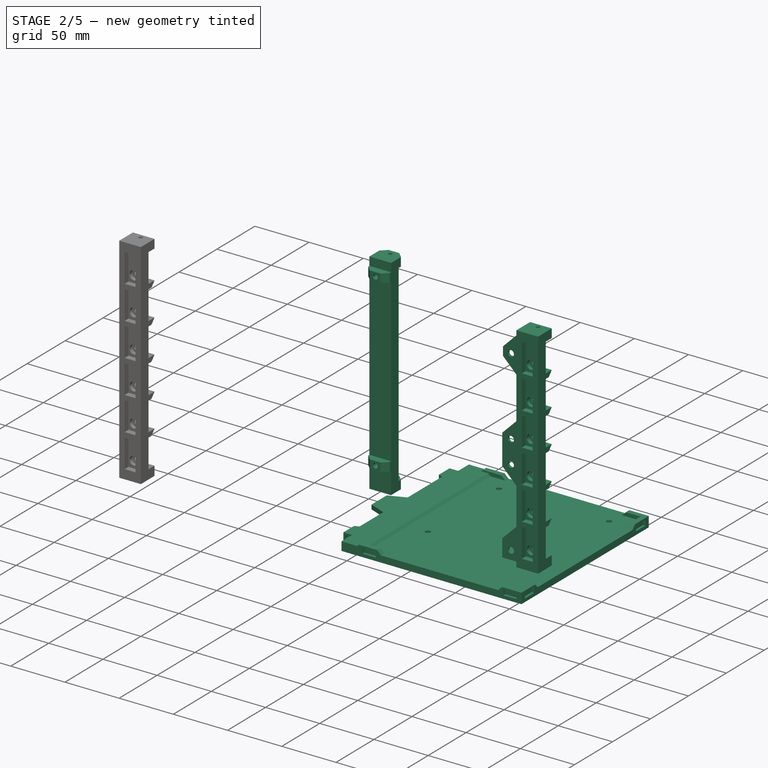
[diagram: stage 2 of 5 — iso view after this stage's code; geometry added in this stage tinted green]
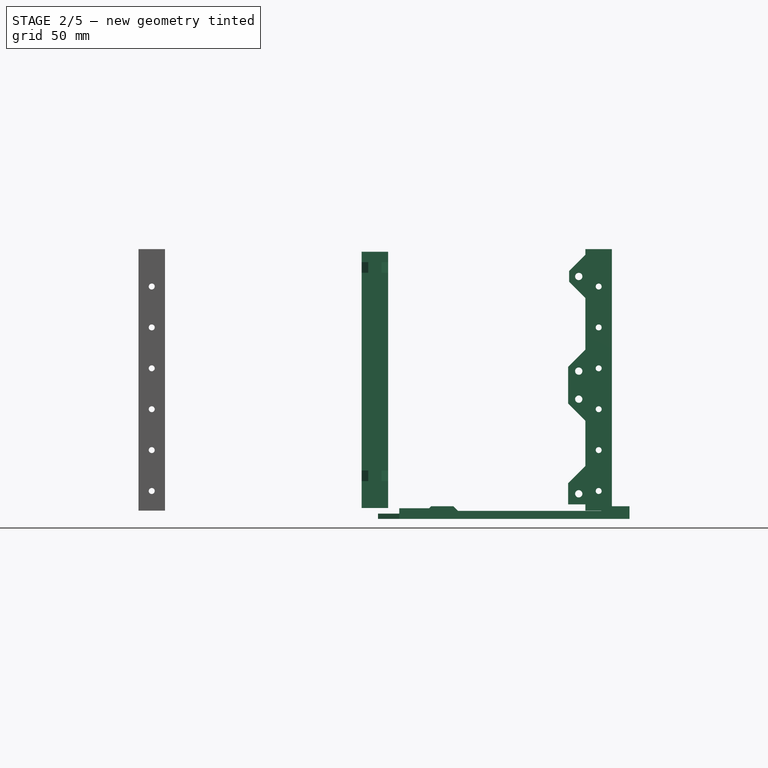
[diagram: stage 2 of 5 — front view after this stage's code; geometry added in this stage tinted green]
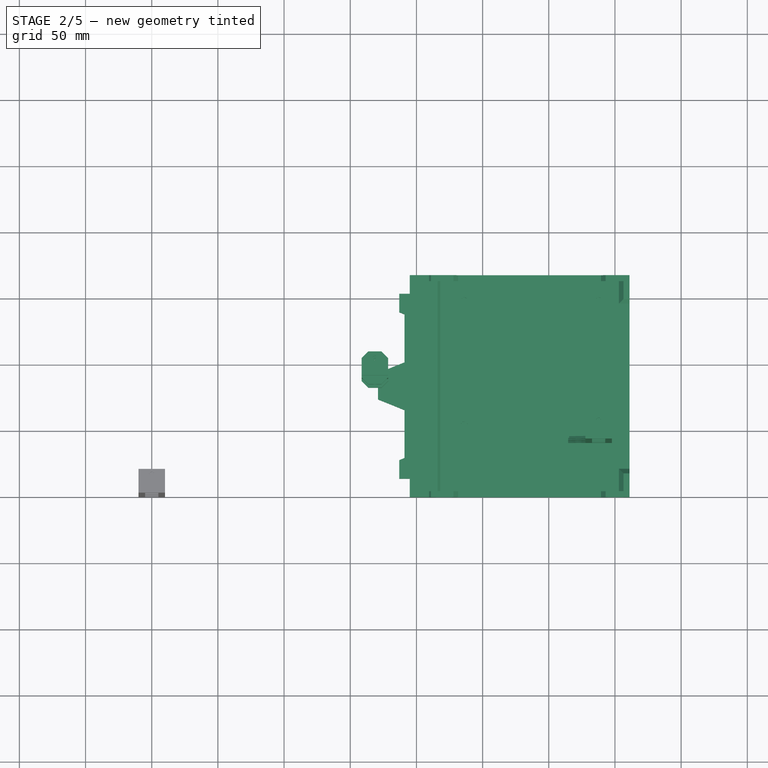
[diagram: stage 2 of 5 — top view after this stage's code; geometry added in this stage tinted green]
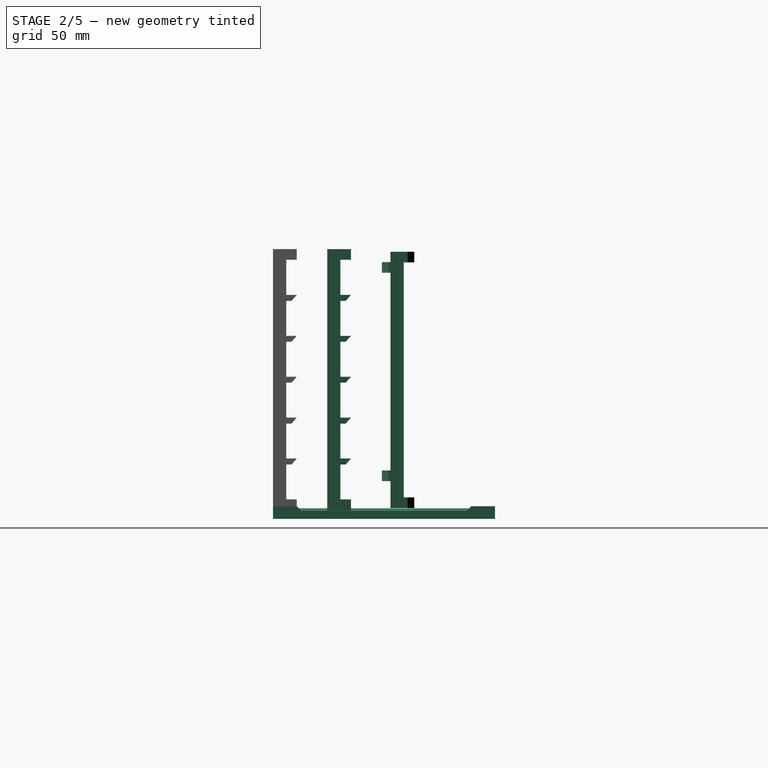
[diagram: stage 2 of 5 — right view after this stage's code; geometry added in this stage tinted green]
FEATURE [PartDesign::Body] Body009  label="PSU"
  AllowCompound = false
  Group = -> [Sketch042,Pad017,Sketch043,Pocket]
  Origin = -> Origin009
  Placement = pos=(0,135.76,72.35) rot=(0,0,1;0rad)
  Tip = -> Pocket
FEATURE [PartDesign::Pad] Pad018
  Direction = (1,0,0)
  Length = 20
  Length2 = 10
  Midplane = true
  Placement = pos=(168.6,0,0) rot=(0.57735,0.57735,0.57735;2.0944rad)
  Profile = -> Sketch006
  ReferenceAxis = -> Sketch006 [N_Axis]
  Refine = true
  Suppressed = false
  Type = 0
FEATURE [PartDesign::Chamfer] Chamfer
  Angle = 45
  Base = -> Pad018 [Edge9,Edge10,Edge22,Edge21,Edge46,Edge45,Edge34,Edge33]
  BaseFeature = -> Pad018
  ChamferType = 0
  FlipDirection = false
  Placement = pos=(168.6,0,0) rot=(0.57735,0.57735,0.57735;2.0944rad)
  Refine = true
  Size = 5
  Size2 = 1
  SupportTransform = false
  Suppressed = false
  UseAllEdges = false
FEATURE [Sketcher::SketchObject] Sketch044
  ArcFitTolerance = 1e-06
  AttachmentSupport = -> [Chamfer]
  ExternalGeometry = -> [Chamfer]
  FullyConstrained = true
  MakeInternals = false
  MapMode = 5
  Placement = pos=(168.6,82.26,-9e-15) rot=(0.57735,0.57735,-0.57735;2.0944rad)
  sketch-geometry (2):
    g0: Circle CenterX=-190 CenterY=-2.86e-14 CenterZ=0 NormalX=0 NormalY=0 NormalZ=1 AngleXU=0 Radius=2.3
    g1: Circle CenterX=-32.5 CenterY=-2.75e-14 CenterZ=0 NormalX=0 NormalY=0 NormalZ=1 AngleXU=0 Radius=2.3
  constraints (4):
    c: Symmetric(g-5,g-6,g0)
    c: Diameter(g0) = 4.6
    c: Diameter(g1) = 4.6
    c: Symmetric(g-3,g-4,g1)
FEATURE [PartDesign::Pocket] Pocket001
  BaseFeature = -> Chamfer
  Direction = (0,1,0)
  Length = 6.5
  Length2 = 5
  Placement = pos=(168.6,0,0) rot=(0.57735,0.57735,0.57735;2.0944rad)
  Profile = -> Sketch044
  ReferenceAxis = -> Sketch044 [N_Axis]
  Refine = true
  Suppressed = false
  Type = 0
FEATURE [Sketcher::SketchObject] Sketch045
  ArcFitTolerance = 1e-06
  AttachmentSupport = -> [DatumPlane001]
  ExternalGeometry = -> [Pocket001]
  FullyConstrained = true
  MakeInternals = false
  MapMode = 5
  Placement = pos=(168.6,0,0) rot=(0.57735,0.57735,0.57735;2.0944rad)
  sketch-geometry (24):
    g0: LineSegment StartX=98.76 StartY=16.2 StartZ=0 EndX=98.76 EndY=41.6333 EndZ=0
    g1: LineSegment StartX=98.76 StartY=41.6333 StartZ=0 EndX=93.76 EndY=41.6333 EndZ=0
    g2: LineSegment StartX=93.76 StartY=41.6333 StartZ=0 EndX=93.76 EndY=16.2 EndZ=0
    g3: LineSegment StartX=93.76 StartY=16.2 StartZ=0 EndX=98.76 EndY=16.2 EndZ=0
    g4: LineSegment StartX=98.76 StartY=193.8 StartZ=0 EndX=93.76 EndY=193.8 EndZ=0
    g5: LineSegment StartX=93.76 StartY=193.8 StartZ=0 EndX=93.76 EndY=168.367 EndZ=0
    g6: LineSegment StartX=93.76 StartY=168.367 StartZ=0 EndX=98.76 EndY=168.367 EndZ=0
    g7: LineSegment StartX=98.76 StartY=168.367 StartZ=0 EndX=98.76 EndY=193.8 EndZ=0
    g8: LineSegment StartX=93.76 StartY=163.367 StartZ=0 EndX=93.76 EndY=137.933 EndZ=0
    g9: LineSegment StartX=93.76 StartY=137.933 StartZ=0 EndX=98.76 EndY=137.933 EndZ=0
    g10: LineSegment StartX=98.76 StartY=137.933 StartZ=0 EndX=98.76 EndY=163.367 EndZ=0
    g11: LineSegment StartX=98.76 StartY=163.367 StartZ=0 EndX=93.76 EndY=163.367 EndZ=0
    g12: LineSegment StartX=98.76 StartY=132.933 StartZ=0 EndX=93.76 EndY=132.933 EndZ=0
    g13: LineSegment StartX=93.76 StartY=132.933 StartZ=0 EndX=93.76 EndY=107.5 EndZ=0
    g14: LineSegment StartX=93.76 StartY=107.5 StartZ=0 EndX=98.76 EndY=107.5 EndZ=0
    g15: LineSegment StartX=98.76 StartY=107.5 StartZ=0 EndX=98.76 EndY=132.933 EndZ=0
    g16: LineSegment StartX=98.76 StartY=102.5 StartZ=0 EndX=93.76 EndY=102.5 EndZ=0
    g17: LineSegment StartX=93.76 StartY=102.5 StartZ=0 EndX=93.76 EndY=77.0667 EndZ=0
    g18: LineSegment StartX=93.76 StartY=77.0667 StartZ=0 EndX=98.76 EndY=77.0667 EndZ=0
    g19: LineSegment StartX=98.76 StartY=77.0667 StartZ=0 EndX=98.76 EndY=102.5 EndZ=0
    g20: LineSegment StartX=98.76 StartY=72.0667 StartZ=0 EndX=93.76 EndY=72.0667 EndZ=0
    g21: LineSegment StartX=93.76 StartY=72.0667 StartZ=0 EndX=93.76 EndY=46.6333 EndZ=0
    g22: LineSegment StartX=93.76 StartY=46.6333 StartZ=0 EndX=98.76 EndY=46.6333 EndZ=0
    g23: LineSegment StartX=98.76 StartY=46.6333 StartZ=0 EndX=98.76 EndY=72.0667 EndZ=0
  constraints (70):
    c: Coincident(g0,g1)
    c: Coincident(g1,g2)
    c: Coincident(g2,g3)
    c: Coincident(g3,g0)
    c: Vertical(g0)
    c: Vertical(g2)
    c: Horizontal(g1)
    c: Horizontal(g3)
    c: Coincident(g4,g5)
    c: Coincident(g5,g6)
    c: Coincident(g6,g7)
    c: Coincident(g7,g4)
    c: Horizontal(g4)
    c: Horizontal(g6)
    c: Vertical(g5)
    c: Vertical(g7)
    c: Distance(g5,g-3) = 5
    c: Coincident(g8,g9)
    c: Coincident(g9,g10)
    c: Coincident(g10,g11)
    c: Coincident(g11,g8)
    c: Vertical(g8)
    c: Vertical(g10)
    c: Horizontal(g9)
    c: Horizontal(g11)
    c: PointOnObject(g8,g5)
    c: PointOnObject(g10,g7)
    c: DistanceY(g10,g6) = 5
    c: PointOnObject(g1,g8)
    c: Coincident(g4,g-4)
    c: Coincident(g0,g-4)
    c: Coincident(g12,g13)
    c: Coincident(g13,g14)
    c: Coincident(g14,g15)
    c: Coincident(g15,g12)
    c: Horizontal(g12)
    c: Horizontal(g14)
    c: Vertical(g13)
    c: Vertical(g15)
    c: PointOnObject(g12,g-4)
    c: Coincident(g16,g17)
    c: Coincident(g17,g18)
    c: Coincident(g18,g19)
    c: Coincident(g19,g16)
    c: Horizontal(g16)
    c: Horizontal(g18)
    c: Vertical(g17)
    c: Vertical(g19)
    c: PointOnObject(g16,g-4)
    c: PointOnObject(g8,g13)
    c: PointOnObject(g13,g17)
    c: Equal(g0,g19)
    c: Equal(g19,g15)
    c: Equal(g15,g10)
    c: Equal(g10,g7)
    c: DistanceY(g12,g9) = 5
    c: DistanceY(g16,g14) = 5
    c: Coincident(g20,g21)
    c: Coincident(g21,g22)
    c: Coincident(g22,g23)
    c: Coincident(g23,g20)
    c: Horizontal(g20)
    c: Horizontal(g22)
    c: Vertical(g21)
    c: Vertical(g23)
    c: PointOnObject(g20,g-4)
    c: PointOnObject(g17,g21)
    c: DistanceY(g20,g18) = 5
    c: DistanceY(g0,g22) = 5
    c: Equal(g23,g0)
FEATURE [PartDesign::Pocket] Pocket002
  BaseFeature = -> Pocket001
  Direction = (-1,0,0)
  Length = 8
  Length2 = 5
  Midplane = true
  Placement = pos=(168.6,0,0) rot=(0.57735,0.57735,0.57735;2.0944rad)
  Profile = -> Sketch045
  ReferenceAxis = -> Sketch045 [N_Axis]
  Refine = true
  Suppressed = false
  Type = 0
FEATURE [Sketcher::SketchObject] Sketch046
  ArcFitTolerance = 1e-06
  AttachmentSupport = -> [Pocket002]
  FullyConstrained = true
  MakeInternals = false
  MapMode = 5
  Placement = pos=(168.6,3.9e-15,193.8) rot=(0.707107,0.707107,0;3.14159rad)
  sketch-geometry (1):
    g0: Circle CenterX=101.76 CenterY=0 CenterZ=0 NormalX=0 NormalY=0 NormalZ=1 AngleXU=0 Radius=1.75
  constraints (3):
    c: Diameter(g0) = 3.5
    c: PointOnObject(g0,g-1)
    c: Distance(g0,g-3) = 5
FEATURE [PartDesign::Pocket] Pocket003
  BaseFeature = -> Pocket002
  Direction = (0,0,1)
  Length = 5
  Length2 = 5
  Placement = pos=(168.6,0,0) rot=(0.57735,0.57735,0.57735;2.0944rad)
  Profile = -> Sketch046
  ReferenceAxis = -> Sketch046 [N_Axis]
  Refine = true
  Suppressed = false
  Type = 1
FEATURE [Sketcher::SketchObject] Sketch047
  ArcFitTolerance = 1e-06
  AttachmentSupport = -> [Pocket003]
  FullyConstrained = true
  MakeInternals = false
  MapMode = 5
  Placement = pos=(168.6,4.4e-15,16.2) rot=(0,0,-1;1.5708rad)
  sketch-geometry (1):
    g0: Circle CenterX=-101.76 CenterY=0 CenterZ=0 NormalX=0 NormalY=0 NormalZ=1 AngleXU=0 Radius=1.75
  constraints (3):
    c: Diameter(g0) = 3.5
    c: PointOnObject(g0,g-1)
    c: Distance(g0,g-3) = 5
FEATURE [PartDesign::Pocket] Pocket004
  BaseFeature = -> Pocket003
  Direction = (0,0,-1)
  Length = 5
  Length2 = 5
  Placement = pos=(168.6,0,0) rot=(0.57735,0.57735,0.57735;2.0944rad)
  Profile = -> Sketch047
  ReferenceAxis = -> Sketch047 [N_Axis]
  Refine = true
  Suppressed = false
  Type = 1
FEATURE [PartDesign::Body] Body015  label="HDD"
  AllowCompound = false
  Group = -> [Sketch075,Pad026,Sketch076,Pocket024,Sketch077,Pocket025]
  Origin = -> Origin015
  Placement = pos=(281.1,101.86,14.7) rot=(0,0,1;1.5708rad)
  Tip = -> Pocket025
FEATURE [PartDesign::AdditiveBox] Box002
  AttacherType = Attacher::AttachEngine3D
  AttachmentOffset = pos=(0,0,211) rot=(0,0,1;0rad)
  AttachmentSupport = -> [YZ_Plane016]
  Height = 150
  Length = 167.76
  MapMode = 5
  Placement = pos=(211,0,0) rot=(0.57735,0.57735,0.57735;2.0944rad)
  Refine = true
  Suppressed = false
  Width = 6
FEATURE [Sketcher::SketchObject] Sketch102
  ArcFitTolerance = 1e-06
  AttachmentSupport = -> [Box002]
  ExternalGeometry = -> [Box002]
  FullyConstrained = true
  MakeInternals = false
  MapMode = 5
  Placement = pos=(211,0,0) rot=(0.707107,0.707107,0;3.14159rad)
  sketch-geometry (20):
    g0: LineSegment StartX=0 StartY=-16 StartZ=0 EndX=14 EndY=-16 EndZ=0
    g1: LineSegment StartX=14 StartY=-16 StartZ=0 EndX=14 EndY=-24 EndZ=0
    g2: LineSegment StartX=14 StartY=-24 StartZ=0 EndX=28 EndY=-24 EndZ=0
    g3: LineSegment [constr] StartX=28 StartY=-24 StartZ=0 EndX=37.705 EndY=0 EndZ=0
    g4: LineSegment [constr] StartX=37.705 StartY=0 StartZ=0 EndX=57.705 EndY=0 EndZ=0
    g5: LineSegment [constr] StartX=57.705 StartY=0 StartZ=0 EndX=73.88 EndY=-40 EndZ=0
    g6: LineSegment [constr] StartX=73.88 StartY=-40 StartZ=0 EndX=93.88 EndY=-40 EndZ=0
    g7: LineSegment [constr] StartX=93.88 StartY=-40 StartZ=0 EndX=110.055 EndY=0 EndZ=0
    g8: LineSegment [constr] StartX=110.055 StartY=0 StartZ=0 EndX=130.055 EndY=0 EndZ=0
    g9: LineSegment [constr] StartX=130.055 StartY=0 StartZ=0 EndX=139.76 EndY=-24 EndZ=0
    g10: LineSegment StartX=139.76 StartY=-24 StartZ=0 EndX=153.76 EndY=-24 EndZ=0
    g11: LineSegment StartX=153.76 StartY=-24 StartZ=0 EndX=153.76 EndY=-16 EndZ=0
    g12: LineSegment StartX=153.76 StartY=-16 StartZ=0 EndX=167.76 EndY=-16 EndZ=0
    g13: LineSegment StartX=167.76 StartY=-16 StartZ=0 EndX=167.76 EndY=5 EndZ=0
    g14: LineSegment [constr] StartX=153.76 StartY=-20 StartZ=0 EndX=14 EndY=-20 EndZ=0
    g15: LineSegment StartX=139.76 StartY=-24 StartZ=0 EndX=138.142 EndY=-20 EndZ=0
    g16: LineSegment StartX=138.142 StartY=-20 StartZ=0 EndX=29.6175 EndY=-20 EndZ=0
    g17: LineSegment StartX=29.6175 StartY=-20 StartZ=0 EndX=28 EndY=-24 EndZ=0
    g18: LineSegment StartX=0 StartY=-16 StartZ=0 EndX=0 EndY=5 EndZ=0
    g19: LineSegment StartX=0 StartY=5 StartZ=0 EndX=167.76 EndY=5 EndZ=0
  constraints (58):
    c: PointOnObject(g0,g-2)
    c: Horizontal(g0)
    c: Coincident(g0,g1)
    c: Vertical(g1)
    c: Coincident(g1,g2)
    c: Coincident(g2,g3)
    c: Coincident(g3,g4)
    c: Coincident(g4,g5)
    c: Coincident(g5,g6)
    c: Horizontal(g6)
    c: Coincident(g6,g7)
    c: Coincident(g7,g8)
    c: Coincident(g8,g9)
    c: Coincident(g9,g10)
    c: Horizontal(g10)
    c: Coincident(g10,g11)
    c: Vertical(g11)
    c: Coincident(g11,g12)
    c: Coincident(g12,g13)
    c: Vertical(g13)
    c: Horizontal(g12)
    c: Horizontal(g2)
    c: PointOnObject(g11,g0)
    c: PointOnObject(g9,g2)
    c: DistanceY(g0,g-1) = 16
    c: Equal(g0,g12)
    c: Equal(g10,g2)
    c: DistanceX(g0,g0) = 14
    c: DistanceX(g2,g2) = 14
    c: DistanceY(g1,g1) = 8
    c: Parallel(g9,g5)
    c: Parallel(g7,g3)
    c: Equal(g8,g6)
    c: Equal(g6,g4)
    c: Equal(g7,g5)
    c: DistanceX(g8,g8) = 20
    c: Symmetric(g11,g11,g14)
    c: Symmetric(g1,g1,g14)
    c: Coincident(g9,g15)
    c: PointOnObject(g15,g14)
    c: Coincident(g15,g16)
    c: PointOnObject(g16,g14)
    c: Coincident(g16,g17)
    c: Coincident(g17,g2)
    c: PointOnObject(g15,g9)
    c: PointOnObject(g16,g3)
    c: Coincident(g0,g18)
    c: PointOnObject(g18,g-2)
    c: Coincident(g18,g19)
    c: Coincident(g19,g13)
    c: Horizontal(g19)
    c: DistanceY(g-1,g18) = 5
    c: PointOnObject(g3,g-1)
    c: PointOnObject(g4,g-1)
    c: PointOnObject(g7,g-1)
    c: PointOnObject(g8,g-1)
    c: PointOnObject(g-3,g13)
    c: Distance(g6,g-3) = 40
FEATURE [PartDesign::Pad] Pad037
  BaseFeature = -> Box002
  Direction = (0,0,-1)
  Length = 8
  Length2 = 10
  Placement = pos=(211,0,0) rot=(0.57735,0.57735,0.57735;2.0944rad)
  Profile = -> Sketch102
  ReferenceAxis = -> Sketch102 [N_Axis]
  Refine = true
  Reversed = true
  Suppressed = false
  Type = 0
FEATURE [Sketcher::SketchObject] Sketch103
  ArcFitTolerance = 1e-06
  AttachmentSupport = -> [Pad037]
  FullyConstrained = true
  MakeInternals = false
  MapMode = 5
  Placement = pos=(211,0,1e-16) rot=(0.707107,0.707107,0;3.14159rad)
  sketch-geometry (11):
    g0: LineSegment StartX=29.6175 StartY=-20 StartZ=0 EndX=37.705 EndY=0 EndZ=0
    g1: LineSegment StartX=37.705 StartY=0 StartZ=0 EndX=57.705 EndY=0 EndZ=0
    g2: LineSegment [constr] StartX=57.705 StartY=0 StartZ=0 EndX=73.88 EndY=-40 EndZ=0
    g3: LineSegment [constr] StartX=73.88 StartY=-40 StartZ=0 EndX=93.88 EndY=-40 EndZ=0
    g4: LineSegment [constr] StartX=93.88 StartY=-40 StartZ=0 EndX=110.055 EndY=0 EndZ=0
    g5: LineSegment StartX=110.055 StartY=0 StartZ=0 EndX=130.055 EndY=0 EndZ=0
    g6: LineSegment StartX=130.055 StartY=0 StartZ=0 EndX=138.142 EndY=-20 EndZ=0
    g7: LineSegment StartX=29.6175 StartY=-20 StartZ=0 EndX=65.7925 EndY=-20 EndZ=0
    g8: LineSegment StartX=65.7925 StartY=-20 StartZ=0 EndX=57.705 EndY=0 EndZ=0
    g9: LineSegment StartX=138.142 StartY=-20 StartZ=0 EndX=101.968 EndY=-20 EndZ=0
    g10: LineSegment StartX=101.968 StartY=-20 StartZ=0 EndX=110.055 EndY=0 EndZ=0
  constraints (30):
    c: Coincident(g-3,g0)
    c: PointOnObject(g0,g-1)
    c: Coincident(g0,g1)
    c: PointOnObject(g1,g-1)
    c: Coincident(g1,g2)
    c: Coincident(g2,g3)
    c: Horizontal(g3)
    c: Coincident(g3,g4)
    c: PointOnObject(g4,g-1)
    c: Coincident(g4,g5)
    c: PointOnObject(g5,g-1)
    c: Coincident(g5,g6)
    c: Coincident(g6,g-3)
    c: Parallel(g2,g6)
    c: Parallel(g4,g0)
    c: Equal(g1,g3)
    c: Equal(g3,g5)
    c: DistanceY(g2,g1) = 40
    c: Equal(g2,g4)
    c: DistanceX(g3,g3) = 20
    c: Coincident(g0,g7)
    c: PointOnObject(g7,g-3)
    c: Coincident(g7,g8)
    c: Coincident(g8,g1)
    c: Coincident(g6,g9)
    c: PointOnObject(g9,g-3)
    c: Coincident(g9,g10)
    c: Coincident(g10,g4)
    c: PointOnObject(g9,g4)
    c: PointOnObject(g7,g2)
FEATURE [PartDesign::Pocket] Pocket040
  BaseFeature = -> Pad037
  Direction = (0,0,1)
  Length = 4
  Length2 = 5
  Placement = pos=(211,0,0) rot=(0.57735,0.57735,0.57735;2.0944rad)
  Profile = -> Sketch103
  ReferenceAxis = -> Sketch103 [N_Axis]
  Refine = true
  Suppressed = false
  Type = 0
FEATURE [Sketcher::SketchObject] Sketch104
  ArcFitTolerance = 1e-06
  AttachmentSupport = -> [Pocket040]
  ExternalGeometry = -> [Pocket040]
  FullyConstrained = true
  MakeInternals = false
  MapMode = 5
  Placement = pos=(211,0,1e-16) rot=(0.707107,0.707107,0;3.14159rad)
  sketch-geometry (4):
    g0: LineSegment StartX=65.7925 StartY=-20 StartZ=0 EndX=73.88 EndY=-40 EndZ=0
    g1: LineSegment StartX=73.88 StartY=-40 StartZ=0 EndX=93.88 EndY=-40 EndZ=0
    g2: LineSegment StartX=93.88 StartY=-40 StartZ=0 EndX=101.967 EndY=-20 EndZ=0
    g3: LineSegment StartX=101.967 StartY=-20 StartZ=0 EndX=65.7925 EndY=-20 EndZ=0
  constraints (10):
    c: Coincident(g-3,g0)
    c: Coincident(g0,g1)
    c: Horizontal(g1)
    c: Coincident(g1,g2)
    c: Coincident(g2,g-3)
    c: Coincident(g2,g3)
    c: Coincident(g3,g0)
    c: Equal(g0,g2)
    c: DistanceY(g1,g2) = 20
    c: DistanceX(g1,g1) = 20
FEATURE [PartDesign::Pad] Pad038
  BaseFeature = -> Pocket040
  Direction = (0,0,-1)
  Length = 4
  Length2 = 10
  Placement = pos=(211,0,0) rot=(0.57735,0.57735,0.57735;2.0944rad)
  Profile = -> Sketch104
  ReferenceAxis = -> Sketch104 [N_Axis]
  Refine = true
  Reversed = true
  Suppressed = false
  Type = 0
FEATURE [Sketcher::SketchObject] Sketch107
  ArcFitTolerance = 1e-06
  AttachmentSupport = -> [Pad038]
  ExternalGeometry = -> [Pad038]
  FullyConstrained = true
  MakeInternals = false
  MapMode = 5
  Placement = pos=(211,14,-1.5e-15) rot=(0.57735,0.57735,-0.57735;2.0944rad)
  sketch-geometry (1):
    g0: Circle CenterX=-4 CenterY=-20 CenterZ=0 NormalX=0 NormalY=0 NormalZ=1 AngleXU=0 Radius=2.3
  constraints (3):
    c: Diameter(g0) = 4.6
    c: Distance(g0,g-3) = 4
    c: DistanceX(g-3,g0) = 4
FEATURE [PartDesign::Pocket] Pocket043
  BaseFeature = -> Pad038
  Direction = (0,1,0)
  Length = 12
  Length2 = 5
  Placement = pos=(211,0,0) rot=(0.57735,0.57735,0.57735;2.0944rad)
  Profile = -> Sketch107
  ReferenceAxis = -> Sketch107 [N_Axis]
  Refine = true
  Suppressed = false
  Type = 0
FEATURE [Sketcher::SketchObject] Sketch108
  ArcFitTolerance = 1e-06
  AttachmentSupport = -> [Pocket043]
  ExternalGeometry = -> [Pocket043]
  FullyConstrained = true
  MakeInternals = false
  MapMode = 5
  Placement = pos=(211,153.76,-1.69e-14) rot=(0.57735,0.57735,0.57735;4.18879rad)
  sketch-geometry (1):
    g0: Circle CenterX=4 CenterY=-20 CenterZ=0 NormalX=0 NormalY=0 NormalZ=1 AngleXU=0 Radius=2.3
  constraints (3):
    c: Diameter(g0) = 4.6
    c: Distance(g0,g-3) = 4
    c: DistanceX(g0,g-3) = 4
FEATURE [PartDesign::Pocket] Pocket044
  BaseFeature = -> Pocket043
  Direction = (0,-1,0)
  Length = 12
  Length2 = 5
  Placement = pos=(211,0,0) rot=(0.57735,0.57735,0.57735;2.0944rad)
  Profile = -> Sketch108
  ReferenceAxis = -> Sketch108 [N_Axis]
  Refine = true
  Suppressed = false
  Type = 0
FEATURE [Sketcher::SketchObject] Sketch112
  ArcFitTolerance = 1e-06
  AttachmentSupport = -> [Pocket044]
  ExternalGeometry = -> [Pocket044]
  FullyConstrained = true
  MakeInternals = false
  MapMode = 5
  Placement = pos=(211,0,6) rot=(0,0,-1;1.5708rad)
  sketch-geometry (20):
    g0: LineSegment StartX=3.33e-14 StartY=150 StartZ=0 EndX=-18 EndY=150 EndZ=0
    g1: LineSegment StartX=-18 StartY=150 StartZ=0 EndX=-18 EndY=145.5 EndZ=0
    g2: LineSegment StartX=-18 StartY=145.5 StartZ=0 EndX=-4.5 EndY=145.5 EndZ=0
    g3: LineSegment StartX=-4.5 StartY=145.5 StartZ=0 EndX=-4.5 EndY=132 EndZ=0
    g4: LineSegment StartX=-4.5 StartY=132 StartZ=0 EndX=0 EndY=132 EndZ=0
    g5: LineSegment StartX=0 StartY=132 StartZ=0 EndX=3.33e-14 EndY=150 EndZ=0
    g6: LineSegment StartX=-167.76 StartY=150 StartZ=0 EndX=-167.76 EndY=132 EndZ=0
    g7: LineSegment StartX=-167.76 StartY=132 StartZ=0 EndX=-163.26 EndY=132 EndZ=0
    g8: LineSegment StartX=-163.26 StartY=132 StartZ=0 EndX=-163.26 EndY=145.5 EndZ=0
    g9: LineSegment StartX=-163.26 StartY=145.5 StartZ=0 EndX=-149.76 EndY=145.5 EndZ=0
    g10: LineSegment StartX=-149.76 StartY=145.5 StartZ=0 EndX=-149.76 EndY=150 EndZ=0
    g11: LineSegment StartX=-149.76 StartY=150 StartZ=0 EndX=-167.76 EndY=150 EndZ=0
    g12: LineSegment StartX=0 StartY=0 StartZ=0 EndX=0 EndY=17 EndZ=0
    g13: LineSegment StartX=0 StartY=17 StartZ=0 EndX=-4.5 EndY=17 EndZ=0
    g14: LineSegment StartX=-4.5 StartY=17 StartZ=0 EndX=-4.5 EndY=0 EndZ=0
    g15: LineSegment StartX=-4.5 StartY=0 StartZ=0 EndX=0 EndY=0 EndZ=0
    g16: LineSegment StartX=-167.76 StartY=0 StartZ=0 EndX=-163.26 EndY=0 EndZ=0
    g17: LineSegment StartX=-163.26 StartY=0 StartZ=0 EndX=-163.26 EndY=17 EndZ=0
    g18: LineSegment StartX=-163.26 StartY=17 StartZ=0 EndX=-167.76 EndY=17 EndZ=0
    g19: LineSegment StartX=-167.76 StartY=17 StartZ=0 EndX=-167.76 EndY=0 EndZ=0
  constraints (58):
    c: Coincident(g0,g-3)
    c: Horizontal(g0)
    c: Coincident(g0,g1)
    c: Vertical(g1)
    c: Coincident(g1,g2)
    c: Horizontal(g2)
    c: Coincident(g2,g3)
    c: Vertical(g3)
    c: Coincident(g3,g4)
    c: PointOnObject(g4,g-2)
    c: Horizontal(g4)
    c: Coincident(g4,g5)
    c: Coincident(g5,g0)
    c: DistanceX(g0,g0) = 18
    c: Equal(g5,g0)
    c: DistanceY(g1,g1) = 4.5
    c: Equal(g4,g1)
    c: Coincident(g6,g-4)
    c: Vertical(g6)
    c: Coincident(g6,g7)
    c: Coincident(g7,g8)
    c: Coincident(g8,g9)
    c: Horizontal(g9)
    c: Coincident(g9,g10)
    c: Coincident(g10,g11)
    c: Coincident(g11,g6)
    c: Horizontal(g11)
    c: Vertical(g10)
    c: Vertical(g8)
    c: Horizontal(g7)
    c: Equal(g11,g6)
    c: Equal(g6,g0)
    c: Equal(g1,g10)
    c: Equal(g10,g7)
    c: Coincident(g12,g13)
    c: Coincident(g13,g14)
    c: Coincident(g14,g15)
    c: Coincident(g15,g12)
    c: Vertical(g12)
    c: Vertical(g14)
    c: Horizontal(g13)
    c: Horizontal(g15)
    c: Distance(g12,g14) = 4.5
    c: Distance(g13,g15) = 17
    c: Coincident(g12,g-1)
    c: Coincident(g16,g17)
    c: Coincident(g17,g18)
    c: Coincident(g18,g19)
    c: Coincident(g19,g16)
    c: Horizontal(g16)
    c: Horizontal(g18)
    c: Vertical(g17)
    c: Vertical(g19)
    c: Distance(g17,g19) = 4.5
    c: Distance(g16,g18) = 17
    c: PointOnObject(g16,g-1)
    c: PointOnObject(g6,g19)
    c: DistanceY(g18,g6) = 115
FEATURE [PartDesign::Pad] Pad039
  BaseFeature = -> Pocket044
  Direction = (0,0,1)
  Length = 3.5
  Length2 = 10
  Placement = pos=(211,0,0) rot=(0.57735,0.57735,0.57735;2.0944rad)
  Profile = -> Sketch112
  ReferenceAxis = -> Sketch112 [N_Axis]
  Refine = true
  Suppressed = false
  Type = 0
FEATURE [Sketcher::SketchObject] Sketch113
  ArcFitTolerance = 1e-06
  AttachmentSupport = -> [Pad039]
  ExternalGeometry = -> [Pad039]
  FullyConstrained = true
  MakeInternals = false
  MapMode = 5
  Placement = pos=(211,-5.8e-15,0) rot=(0.57735,0.57735,-0.57735;2.0944rad)
  sketch-geometry (8):
    g0: LineSegment StartX=-8.2 StartY=15.7 StartZ=0 EndX=-8.2 EndY=3.5 EndZ=0
    g1: LineSegment StartX=-8.2 StartY=3.5 StartZ=0 EndX=-3 EndY=3.5 EndZ=0
    g2: LineSegment StartX=-3 StartY=3.5 StartZ=0 EndX=-3 EndY=15.7 EndZ=0
    g3: LineSegment StartX=-3 StartY=15.7 StartZ=0 EndX=-8.2 EndY=15.7 EndZ=0
    g4: LineSegment StartX=-8.2 StartY=133.3 StartZ=0 EndX=-3 EndY=133.3 EndZ=0
    g5: LineSegment StartX=-3 StartY=133.3 StartZ=0 EndX=-3 EndY=145.5 EndZ=0
    g6: LineSegment StartX=-3 StartY=145.5 StartZ=0 EndX=-8.2 EndY=145.5 EndZ=0
    g7: LineSegment StartX=-8.2 StartY=145.5 StartZ=0 EndX=-8.2 EndY=133.3 EndZ=0
  constraints (24):
    c: Coincident(g0,g1)
    c: Coincident(g1,g2)
    c: Coincident(g2,g3)
    c: Coincident(g3,g0)
    c: Vertical(g0)
    c: Vertical(g2)
    c: Horizontal(g1)
    c: Horizontal(g3)
    c: Distance(g0,g2) = 5.2
    c: Distance(g1,g3) = 12.2
    c: Coincident(g4,g5)
    c: Coincident(g5,g6)
    c: Coincident(g6,g7)
    c: Coincident(g7,g4)
    c: Horizontal(g4)
    c: Horizontal(g6)
    c: Vertical(g5)
    c: Vertical(g7)
    c: Distance(g5,g7) = 5.2
    c: Distance(g4,g6) = 12.2
    c: DistanceX(g-3,g4) = 1.3
    c: DistanceY(g-3,g4) = 1.3
    c: DistanceX(g-4,g0) = 1.3
    c: DistanceY(g0,g-4) = 1.3
FEATURE [PartDesign::Pocket] Pocket048
  BaseFeature = -> Pad039
  Direction = (0,1,-2.2e-15)
  Length = 2.2
  Length2 = 5
  Placement = pos=(211,0,0) rot=(0.57735,0.57735,0.57735;2.0944rad)
  Profile = -> Sketch113
  ReferenceAxis = -> Sketch113 [N_Axis]
  Refine = true
  Suppressed = false
  Type = 0
FEATURE [Sketcher::SketchObject] Sketch114
  ArcFitTolerance = 1e-06
  AttachmentSupport = -> [Pocket048]
  ExternalGeometry = -> [Pocket048]
  FullyConstrained = true
  MakeInternals = false
  MapMode = 5
  Placement = pos=(361,-3.45e-14,2.55e-13) rot=(0.57735,0.57735,0.57735;2.0944rad)
  sketch-geometry (8):
    g0: LineSegment StartX=4.5 StartY=8.2 StartZ=0 EndX=4.5 EndY=3 EndZ=0
    g1: LineSegment StartX=4.5 StartY=3 StartZ=0 EndX=16.7 EndY=3 EndZ=0
    g2: LineSegment StartX=16.7 StartY=3 StartZ=0 EndX=16.7 EndY=8.2 EndZ=0
    g3: LineSegment StartX=16.7 StartY=8.2 StartZ=0 EndX=4.5 EndY=8.2 EndZ=0
    g4: LineSegment StartX=151.06 StartY=8.2 StartZ=0 EndX=151.06 EndY=3 EndZ=0
    g5: LineSegment StartX=151.06 StartY=3 StartZ=0 EndX=163.26 EndY=3 EndZ=0
    g6: LineSegment StartX=163.26 StartY=3 StartZ=0 EndX=163.26 EndY=8.2 EndZ=0
    g7: LineSegment StartX=163.26 StartY=8.2 StartZ=0 EndX=151.06 EndY=8.2 EndZ=0
  constraints (24):
    c: Coincident(g0,g1)
    c: Coincident(g1,g2)
    c: Coincident(g2,g3)
    c: Coincident(g3,g0)
    c: Vertical(g0)
    c: Vertical(g2)
    c: Horizontal(g1)
    c: Horizontal(g3)
    c: Distance(g0,g2) = 12.2
    c: Distance(g1,g3) = 5.2
    c: Coincident(g4,g5)
    c: Coincident(g5,g6)
    c: Coincident(g6,g7)
    c: Coincident(g7,g4)
    c: Vertical(g4)
    c: Vertical(g6)
    c: Horizontal(g5)
    c: Horizontal(g7)
    c: Distance(g4,g6) = 12.2
    c: Distance(g5,g7) = 5.2
    c: DistanceX(g-4,g4) = 1.3
    c: DistanceY(g4,g-4) = 1.3
    c: DistanceX(g2,g-3) = 1.3
    c: DistanceY(g2,g-3) = 1.3
FEATURE [PartDesign::Pocket] Pocket049
  BaseFeature = -> Pocket048
  Direction = (-1,0,-1.3e-15)
  Length = 2.2
  Length2 = 5
  Placement = pos=(211,0,0) rot=(0.57735,0.57735,0.57735;2.0944rad)
  Profile = -> Sketch114
  ReferenceAxis = -> Sketch114 [N_Axis]
  Refine = true
  Suppressed = false
  Type = 0
FEATURE [Sketcher::SketchObject] Sketch115
  ArcFitTolerance = 1e-06
  AttachmentSupport = -> [Pocket049]
  ExternalGeometry = -> [Pocket049]
  FullyConstrained = true
  MakeInternals = false
  MapMode = 5
  Placement = pos=(211,167.76,-1.7e-15) rot=(0.57735,0.57735,0.57735;4.18879rad)
  sketch-geometry (8):
    g0: LineSegment StartX=3 StartY=15.7 StartZ=0 EndX=3 EndY=3.5 EndZ=0
    g1: LineSegment StartX=3 StartY=3.5 StartZ=0 EndX=8.2 EndY=3.5 EndZ=0
    g2: LineSegment StartX=8.2 StartY=3.5 StartZ=0 EndX=8.2 EndY=15.7 EndZ=0
    g3: LineSegment StartX=8.2 StartY=15.7 StartZ=0 EndX=3 EndY=15.7 EndZ=0
    g4: LineSegment StartX=3 StartY=145.5 StartZ=0 EndX=3 EndY=133.3 EndZ=0
    g5: LineSegment StartX=3 StartY=133.3 StartZ=0 EndX=8.2 EndY=133.3 EndZ=0
    g6: LineSegment StartX=8.2 StartY=133.3 StartZ=0 EndX=8.2 EndY=145.5 EndZ=0
    g7: LineSegment StartX=8.2 StartY=145.5 StartZ=0 EndX=3 EndY=145.5 EndZ=0
  constraints (24):
    c: Coincident(g0,g1)
    c: Coincident(g1,g2)
    c: Coincident(g2,g3)
    c: Coincident(g3,g0)
    c: Vertical(g0)
    c: Vertical(g2)
    c: Horizontal(g1)
    c: Horizontal(g3)
    c: Distance(g0,g2) = 5.2
    c: Distance(g1,g3) = 12.2
    c: Coincident(g4,g5)
    c: Coincident(g5,g6)
    c: Coincident(g6,g7)
    c: Coincident(g7,g4)
    c: Vertical(g4)
    c: Vertical(g6)
    c: Horizontal(g5)
    c: Horizontal(g7)
    c: Distance(g4,g6) = 5.2
    c: Distance(g5,g7) = 12.2
    c: DistanceY(g-3,g5) = 1.3
    c: DistanceX(g5,g-3) = 1.3
    c: DistanceX(g2,g-4) = 1.3
    c: DistanceY(g2,g-4) = 1.3
FEATURE [PartDesign::Pocket] Pocket050
  BaseFeature = -> Pocket049
  Direction = (1e-15,-1,1e-16)
  Length = 2.2
  Length2 = 5
  Placement = pos=(211,0,0) rot=(0.57735,0.57735,0.57735;2.0944rad)
  Profile = -> Sketch115
  ReferenceAxis = -> Sketch115 [N_Axis]
  Refine = true
  Suppressed = false
  Type = 0
FEATURE [Sketcher::SketchObject] Sketch116
  ArcFitTolerance = 1e-06
  AttachmentSupport = -> [Pocket050]
  FullyConstrained = true
  MakeInternals = false
  MapMode = 5
  Placement = pos=(211,0,6) rot=(0,0,-1;1.5708rad)
  sketch-geometry (8):
    g0: Circle CenterX=-54.96 CenterY=25.1 CenterZ=0 NormalX=0 NormalY=0 NormalZ=1 AngleXU=0 Radius=2.3
    g1: LineSegment [constr] StartX=-54.96 StartY=25.1 StartZ=0 EndX=-54.96 EndY=126.7 EndZ=0
    g2: LineSegment [constr] StartX=-54.96 StartY=126.7 StartZ=0 EndX=-148.76 EndY=126.7 EndZ=0
    g3: LineSegment [constr] StartX=-148.76 StartY=126.7 StartZ=0 EndX=-148.76 EndY=25.1 EndZ=0
    g4: LineSegment [constr] StartX=-148.76 StartY=25.1 StartZ=0 EndX=-54.96 EndY=25.1 EndZ=0
    g5: Circle CenterX=-148.76 CenterY=25.1 CenterZ=0 NormalX=0 NormalY=0 NormalZ=1 AngleXU=0 Radius=2.3
    g6: Circle CenterX=-148.76 CenterY=126.7 CenterZ=0 NormalX=0 NormalY=0 NormalZ=1 AngleXU=0 Radius=2.3
    g7: Circle CenterX=-54.96 CenterY=126.7 CenterZ=0 NormalX=0 NormalY=0 NormalZ=1 AngleXU=0 Radius=2.3
  constraints (20):
    c: Diameter(g0) = 4.6
    c: DistanceX(g0,g-1) = 54.96
    c: DistanceY(g-1,g0) = 25.1
    c: Coincident(g1,g2)
    c: Coincident(g2,g3)
    c: Coincident(g3,g4)
    c: Coincident(g4,g1)
    c: Vertical(g1)
    c: Vertical(g3)
    c: Horizontal(g2)
    c: Horizontal(g4)
    c: Coincident(g1,g0)
    c: DistanceY(g1,g1) = 101.6
    c: DistanceX(g4,g4) = 93.8
    c: Diameter(g5) = 4.6
    c: Coincident(g5,g3)
    c: Diameter(g6) = 4.6
    c: Coincident(g6,g2)
    c: Diameter(g7) = 4.6
    c: Coincident(g7,g1)
FEATURE [PartDesign::Pocket] Pocket051
  BaseFeature = -> Pocket050
  Direction = (0,0,-1)
  Length = 4.5
  Length2 = 5
  Placement = pos=(211,0,0) rot=(0.57735,0.57735,0.57735;2.0944rad)
  Profile = -> Sketch116
  ReferenceAxis = -> Sketch116 [N_Axis]
  Refine = true
  Suppressed = false
  Type = 0
FEATURE [PartDesign::Body] Body011  label="Backbase"
  AllowCompound = false
  Group = -> [Box,Pad035,Sketch099,Sketch100,Pad036,Pocket039,Pad057,Sketch150,Sketch051,Pad021,Sketch052,Pocket005,Sketch101,Sketch105,Pocket041,Hole009,Sketch106,Pocket042,Hole010,Sketch109,Pocket045,Sketch110,Pocket046,Sketch111,Pocket047,Draft007,Draft008]
  Origin = -> Origin011
  Tip = -> Draft008
FEATURE [PartDesign::Draft] Draft009
  Angle = 45
  Base = -> Pocket051 [Face7]
  BaseFeature = -> Pocket051
  NeutralPlane = -> Pocket051 [Face24]
  Placement = pos=(211,0,0) rot=(0.57735,0.57735,0.57735;2.0944rad)
  Refine = true
  SupportTransform = false
  Suppressed = false
FEATURE [PartDesign::Draft] Draft010
  Angle = 45
  Base = -> Draft009 [Face14,Face16,Face15,Face8,Face10,Face4,Face26,Face3,Face11,Face36]
  BaseFeature = -> Draft009
  NeutralPlane = -> Draft009 [Face27]
  Placement = pos=(211,0,0) rot=(0.57735,0.57735,0.57735;2.0944rad)
  Refine = true
  SupportTransform = false
  Suppressed = false
FEATURE [PartDesign::Body] Body016  label="Frontbase"
  AllowCompound = false
  Group = -> [Box002,Sketch102,Pad037,Sketch103,Pocket040,Sketch104,Pad038,Sketch107,Pocket043,Sketch108,Pocket044,Sketch112,Pad039,Sketch113,Pocket048,Sketch114,Pocket049,Sketch115,Pocket050,Sketch116,Pocket051,Draft009,Draft010]
  Origin = -> Origin016
  Tip = -> Draft010
FEATURE [PartDesign::Hole] Hole013
  BaseFeature = -> Pocket004
  CustomThreadClearance = 0
  Depth = 4
  DepthType = 0
  Diameter = 6
  DrillForDepth = false
  DrillPoint = 0
  DrillPointAngle = 118
  HoleCutCountersinkAngle = 90
  HoleCutCustomValues = false
  HoleCutDepth = 0
  HoleCutDiameter = 6.1
  HoleCutType = 0
  ModelThread = false
  Placement = pos=(168.6,0,0) rot=(0.57735,0.57735,0.57735;2.0944rad)
  Profile = -> Pocket004 [Edge100]
  Refine = true
  Suppressed = false
  Tapered = false
  TaperedAngle = 90
  ThreadClass = 0
  ThreadDepth = 4
  ThreadDepthType = 0
  ThreadDirection = 0
  ThreadFit = 0
  ThreadSize = 0
  ThreadType = 0
  Threaded = false
  UseCustomThreadClearance = false
FEATURE [PartDesign::Hole] Hole014
  BaseFeature = -> Hole013
  CustomThreadClearance = 0
  Depth = 4
  DepthType = 0
  Diameter = 6
  DrillForDepth = false
  DrillPoint = 0
  DrillPointAngle = 118
  HoleCutCountersinkAngle = 90
  HoleCutCustomValues = false
  HoleCutDepth = 0
  HoleCutDiameter = 6.1
  HoleCutType = 0
  ModelThread = false
  Placement = pos=(168.6,0,0) rot=(0.57735,0.57735,0.57735;2.0944rad)
  Profile = -> Hole013 [Edge64]
  Refine = true
  Reversed = true
  Suppressed = false
  Tapered = false
  TaperedAngle = 90
  ThreadClass = 0
  ThreadDepth = 4
  ThreadDepthType = 0
  ThreadDirection = 0
  ThreadFit = 0
  ThreadSize = 0
  ThreadType = 0
  Threaded = false
  UseCustomThreadClearance = false
FEATURE [PartDesign::Hole] Hole016
  BaseFeature = -> Hole015
  CustomThreadClearance = 0
  Depth = 4
  DepthType = 0
  Diameter = 6
  DrillForDepth = false
  DrillPoint = 0
  DrillPointAngle = 118
  HoleCutCountersinkAngle = 90
  HoleCutCustomValues = false
  HoleCutDepth = 0
  HoleCutDiameter = 6.1
  HoleCutType = 0
  ModelThread = false
  Placement = pos=(0,0,0) rot=(1,1,1;2.0944rad)
  Profile = -> Hole015 [Edge168]
  Refine = true
  Reversed = true
  Suppressed = false
  Tapered = false
  TaperedAngle = 90
  ThreadClass = 0
  ThreadDepth = 4
  ThreadDepthType = 0
  ThreadDirection = 0
  ThreadFit = 0
  ThreadSize = 0
  ThreadType = 0
  Threaded = false
  UseCustomThreadClearance = false
FEATURE [Sketcher::SketchObject] Sketch060
  ArcFitTolerance = 1e-06
  AttachmentSupport = -> [Hole016]
  FullyConstrained = true
  MakeInternals = false
  MapMode = 5
  Placement = pos=(0,0,0) rot=(0.57735,0.57735,-0.57735;2.0944rad)
  sketch-geometry (43):
    g0: LineSegment [constr] StartX=-187.4 StartY=10.8 StartZ=0 EndX=-107.4 EndY=10.8 EndZ=0
    g1: LineSegment [constr] StartX=-107.4 StartY=10.8 StartZ=0 EndX=-107.4 EndY=90.8 EndZ=0
    g2: LineSegment [constr] StartX=-107.4 StartY=90.8 StartZ=0 EndX=-187.4 EndY=90.8 EndZ=0
    g3: LineSegment [constr] StartX=-187.4 StartY=90.8 StartZ=0 EndX=-187.4 EndY=10.8 EndZ=0
    g4: GeomPoint [constr] X=-147.4 Y=50.8 Z=0
    g5: LineSegment [constr] StartX=-94.7 StartY=10.8 StartZ=0 EndX=-14.7 EndY=10.8 EndZ=0
    g6: LineSegment [constr] StartX=-14.7 StartY=10.8 StartZ=0 EndX=-14.7 EndY=90.8 EndZ=0
    g7: LineSegment [constr] StartX=-14.7 StartY=90.8 StartZ=0 EndX=-94.7 EndY=90.8 EndZ=0
    g8: LineSegment [constr] StartX=-94.7 StartY=90.8 StartZ=0 EndX=-94.7 EndY=10.8 EndZ=0
    g9: GeomPoint [constr] X=-54.7 Y=50.8 Z=0
    g10: LineSegment [constr] StartX=-184.55 StartY=91.6 StartZ=0 EndX=-166.55 EndY=91.6 EndZ=0
    g11: LineSegment [constr] StartX=-166.55 StartY=91.6 StartZ=0 EndX=-166.55 EndY=111.6 EndZ=0
    g12: LineSegment [constr] StartX=-166.55 StartY=111.6 StartZ=0 EndX=-184.55 EndY=111.6 EndZ=0
    g13: LineSegment [constr] StartX=-184.55 StartY=111.6 StartZ=0 EndX=-184.55 EndY=91.6 EndZ=0
    g14: GeomPoint [constr] X=-175.55 Y=101.6 Z=0
    g15: LineSegment [constr] StartX=-175.55 StartY=10 StartZ=0 EndX=-175.55 EndY=10.8 EndZ=0
    g16: LineSegment [constr] StartX=-175.55 StartY=90.8 StartZ=0 EndX=-175.55 EndY=91.6 EndZ=0
    g17: LineSegment [constr] StartX=-183.15 StartY=15.05 StartZ=0 EndX=-111.65 EndY=15.05 EndZ=0
    g18: LineSegment [constr] StartX=-111.65 StartY=15.05 StartZ=0 EndX=-111.65 EndY=86.55 EndZ=0
    g19: LineSegment [constr] StartX=-111.65 StartY=86.55 StartZ=0 EndX=-183.15 EndY=86.55 EndZ=0
    g20: LineSegment [constr] StartX=-183.15 StartY=86.55 StartZ=0 EndX=-183.15 EndY=15.05 EndZ=0
    g21: GeomPoint [constr] X=-147.4 Y=50.8 Z=0
    g22: LineSegment [constr] StartX=-90.45 StartY=15.05 StartZ=0 EndX=-18.95 EndY=15.05 EndZ=0
    g23: LineSegment [constr] StartX=-18.95 StartY=15.05 StartZ=0 EndX=-18.95 EndY=86.55 EndZ=0
    g24: LineSegment [constr] StartX=-18.95 StartY=86.55 StartZ=0 EndX=-90.45 EndY=86.55 EndZ=0
    g25: LineSegment [constr] StartX=-90.45 StartY=86.55 StartZ=0 EndX=-90.45 EndY=15.05 EndZ=0
    g26: GeomPoint [constr] X=-54.7 Y=50.8 Z=0
    g27: Circle CenterX=-183.15 CenterY=15.05 CenterZ=0 NormalX=0 NormalY=0 NormalZ=1 AngleXU=0 Radius=2.75
    g28: Circle CenterX=-111.65 CenterY=15.05 CenterZ=0 NormalX=0 NormalY=0 NormalZ=1 AngleXU=0 Radius=2.75
    g29: Circle CenterX=-90.45 CenterY=15.05 CenterZ=0 NormalX=0 NormalY=0 NormalZ=1 AngleXU=0 Radius=2.75
    g30: Circle CenterX=-18.95 CenterY=15.05 CenterZ=0 NormalX=0 NormalY=0 NormalZ=1 AngleXU=0 Radius=2.75
    g31: LineSegment StartX=-199.514 StartY=10 StartZ=0 EndX=-187.15 EndY=22.3637 EndZ=0
    g32: LineSegment StartX=-187.15 StartY=22.3637 StartZ=0 EndX=-179.15 EndY=22.3637 EndZ=0
    g33: LineSegment StartX=-179.15 StartY=22.3637 StartZ=0 EndX=-166.786 EndY=10 EndZ=0
    g34: LineSegment StartX=-166.786 StartY=10 StartZ=0 EndX=-199.514 EndY=10 EndZ=0
    g35: LineSegment StartX=-128.014 StartY=10 StartZ=0 EndX=-114.964 EndY=23.05 EndZ=0
    g36: LineSegment StartX=-114.964 StartY=23.05 StartZ=0 EndX=-87.1363 EndY=23.05 EndZ=0
    g37: LineSegment StartX=-87.1363 StartY=23.05 StartZ=0 EndX=-74.0863 EndY=10 EndZ=0
    g38: LineSegment StartX=-74.0863 StartY=10 StartZ=0 EndX=-128.014 EndY=10 EndZ=0
    g39: LineSegment StartX=-10.95 StartY=10 StartZ=0 EndX=-10.95 EndY=23.05 EndZ=0
    g40: LineSegment StartX=-10.95 StartY=23.05 StartZ=0 EndX=-26.95 EndY=23.05 EndZ=0
    g41: LineSegment StartX=-26.95 StartY=23.05 StartZ=0 EndX=-40 EndY=10 EndZ=0
    g42: LineSegment StartX=-40 StartY=10 StartZ=0 EndX=-10.95 EndY=10 EndZ=0
  constraints (112):
    c: Coincident(g0,g1)
    c: Coincident(g1,g2)
    c: Coincident(g2,g3)
    c: Coincident(g3,g0)
    c: Horizontal(g0)
    c: Horizontal(g2)
    c: Vertical(g1)
    c: Vertical(g3)
    c: Symmetric(g2,g0,g4)
    c: Distance(g1,g3) = 80
    c: Distance(g0,g2) = 80
    c: Coincident(g5,g6)
    c: Coincident(g6,g7)
    c: Coincident(g7,g8)
    c: Coincident(g8,g5)
    c: Horizontal(g5)
    c: Horizontal(g7)
    c: Vertical(g6)
    c: Vertical(g8)
    c: Symmetric(g7,g5,g9)
    c: Distance(g6,g8) = 80
    c: Distance(g5,g7) = 80
    c: PointOnObject(g0,g5)
    c: PointOnObject(g5,g-4)
    c: PointOnObject(g0,g-5)
    c: Coincident(g10,g11)
    c: Coincident(g11,g12)
    c: Coincident(g12,g13)
    c: Coincident(g13,g10)
    c: Horizontal(g10)
    c: Horizontal(g12)
    c: Vertical(g11)
    c: Vertical(g13)
    c: Symmetric(g12,g10,g14)
    c: Distance(g11,g13) = 18
    c: Distance(g10,g12) = 20
    c: PointOnObject(g15,g-3)
    c: PointOnObject(g15,g0)
    c: Vertical(g15)
    c: PointOnObject(g16,g2)
    c: PointOnObject(g16,g10)
    c: Vertical(g16)
    c: PointOnObject(g14,g16)
    c: PointOnObject(g15,g16)
    c: PointOnObject(g-6,g15)
    c: DistanceY(g-6,g14) = 101.6
    c: Equal(g15,g16)
    c: Coincident(g17,g18)
    c: Coincident(g18,g19)
    c: Coincident(g19,g20)
    c: Coincident(g20,g17)
    c: Horizontal(g17)
    c: Horizontal(g19)
    c: Vertical(g18)
    c: Vertical(g20)
    c: Symmetric(g19,g17,g21)
    c: Distance(g18,g20) = 71.5
    c: Distance(g17,g19) = 71.5
    c: Coincident(g21,g4)
    c: Coincident(g22,g23)
    c: Coincident(g23,g24)
    c: Coincident(g24,g25)
    c: Coincident(g25,g22)
    c: Horizontal(g22)
    c: Horizontal(g24)
    c: Vertical(g23)
    c: Vertical(g25)
    c: Symmetric(g24,g22,g26)
    c: Distance(g23,g25) = 71.5
    c: Distance(g22,g24) = 71.5
    c: Coincident(g26,g9)
    c: Diameter(g27) = 5.5
    c: Coincident(g27,g17)
    c: Diameter(g28) = 5.5
    c: Coincident(g28,g17)
    c: Diameter(g29) = 5.5
    c: Coincident(g29,g22)
    c: Diameter(g30) = 5.5
    c: Coincident(g30,g22)
    c: PointOnObject(g31,g-3)
    c: Coincident(g31,g32)
    c: Coincident(g32,g33)
    c: Coincident(g33,g34)
    c: Coincident(g34,g31)
    c: Symmetric(g32,g31,g20)
    c: Symmetric(g33,g31,g20)
    c: Angle(g34,g31) = 0.785398
    c: Distance(g17,g33) = 8
    c: DistanceX(g32,g32) = 8
    c: PointOnObject(g35,g-3)
    c: Coincident(g35,g36)
    c: Horizontal(g36)
    c: Coincident(g36,g37)
    c: PointOnObject(g37,g-3)
    c: Coincident(g37,g38)
    c: Coincident(g38,g35)
    c: PointOnObject(g39,g-3)
    c: Coincident(g39,g40)
    c: Coincident(g40,g41)
    c: Coincident(g41,g42)
    c: Coincident(g42,g39)
    c: Symmetric(g39,g40,g23)
    c: PointOnObject(g41,g-3)
    c: Vertical(g39)
    c: Distance(g22,g39) = 8
    c: Angle(g42,g41) = 0.785398
    c: Distance(g22,g40) = 8
    c: Angle(g37,g38) = 0.785398
    c: Angle(g38,g35) = 0.785398
    c: Distance(g17,g35) = 8
    c: Distance(g22,g37) = 8
    c: Distance(g17,g36) = 8
FEATURE [PartDesign::Pad] Pad023
  BaseFeature = -> Hole016
  Direction = (0,-1,0)
  Length = 2
  Length2 = 10
  Placement = pos=(0,0,0) rot=(1,1,1;2.0944rad)
  Profile = -> Sketch060
  ReferenceAxis = -> Sketch060 [N_Axis]
  Refine = true
  Reversed = true
  Suppressed = false
  Type = 0
FEATURE [PartDesign::Body] Body012  label="HDDMount-FanLeft"
  AllowCompound = false
  Group = -> [Sketch053,Pad022,Sketch054,Pocket006,Sketch055,Pocket007,Hole002,Sketch056,Pocket008,Sketch058,Pocket010,Hole015,Hole016,Sketch060,Pad023]
  Origin = -> Origin012
  Placement = pos=(236.1,40.96,0) rot=(0,0,1;0rad)
  Tip = -> Pad023
FEATURE [Part::Mirroring] Part__Mirroring  label="HDDMount-FanRight"
  Base = (0,0,0)
  Normal = (1,0,0)
  Placement = pos=(337.7,40.96,0) rot=(0,0,1;0rad)
  Source = -> Pad023
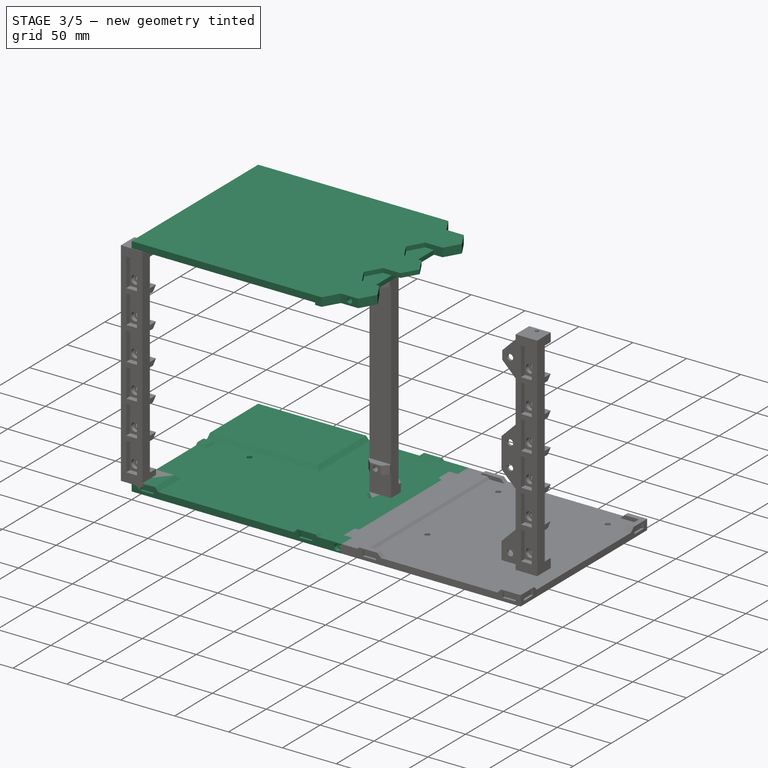
[diagram: stage 3 of 5 — iso view after this stage's code; geometry added in this stage tinted green]
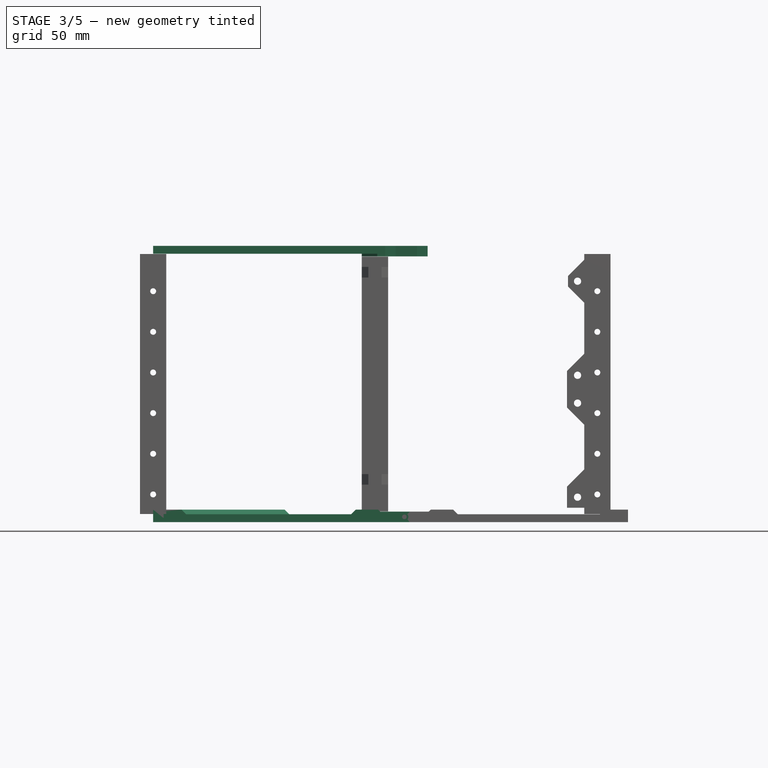
[diagram: stage 3 of 5 — front view after this stage's code; geometry added in this stage tinted green]
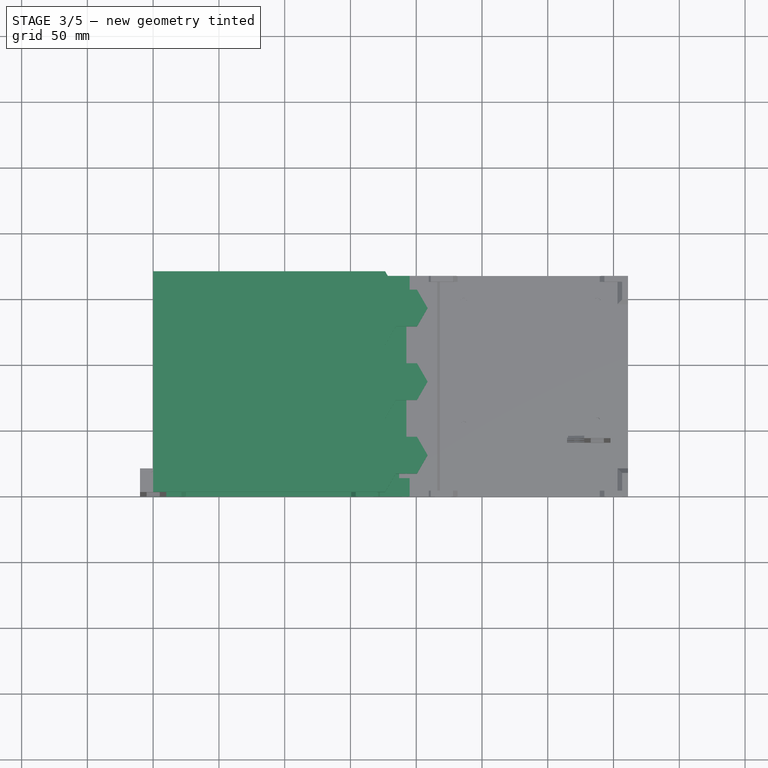
[diagram: stage 3 of 5 — top view after this stage's code; geometry added in this stage tinted green]
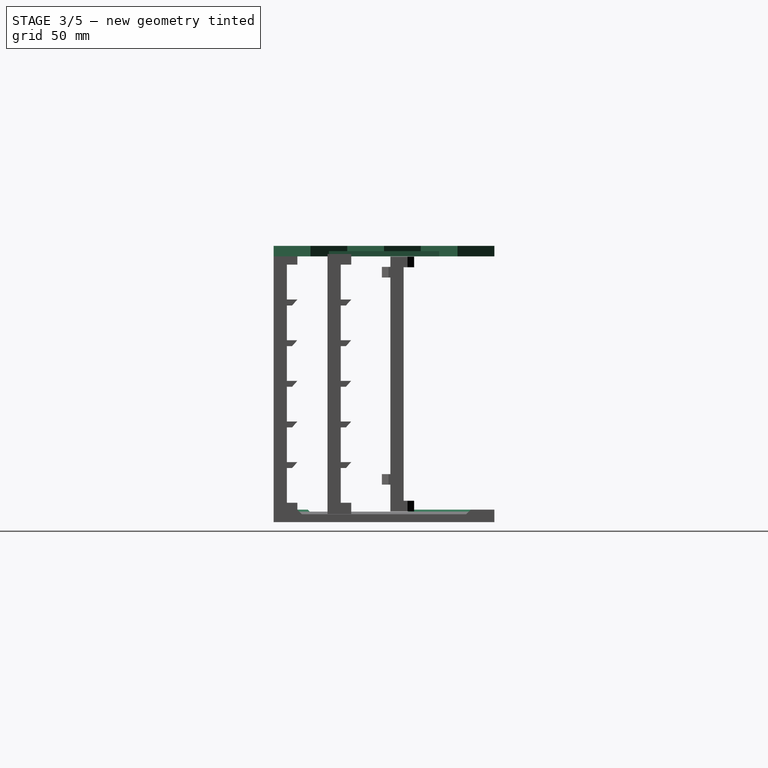
[diagram: stage 3 of 5 — right view after this stage's code; geometry added in this stage tinted green]
FEATURE [Sketcher::SketchObject] Sketch049
  ArcFitTolerance = 1e-06
  AttachmentSupport = -> [Pad019]
  ExternalGeometry = -> [Pad019]
  FullyConstrained = true
  MakeInternals = false
  MapMode = 5
  Placement = pos=(-10,0,0) rot=(0.57735,0.57735,-0.57735;4.18879rad)
  sketch-geometry (2):
    g0: Circle CenterX=4 CenterY=-4 CenterZ=0 NormalX=0 NormalY=0 NormalZ=1 AngleXU=0 Radius=3
    g1: Circle CenterX=22 CenterY=-4 CenterZ=0 NormalX=0 NormalY=0 NormalZ=1 AngleXU=0 Radius=3
  constraints (4):
    c: Diameter(g0) = 6
    c: Coincident(g0,g-4)
    c: Diameter(g1) = 6
    c: Coincident(g1,g-3)
FEATURE [PartDesign::Body] Body010  label="PCIHolder"
  AllowCompound = false
  Group = -> [DatumPlane002,Sketch048,Pad019,Sketch049]
  Origin = -> Origin010
  Tip = -> Pad019
FEATURE [PartDesign::AdditiveBox] Box
  AttacherType = Attacher::AttachEngine3D
  AttachmentSupport = -> [XY_Plane011]
  Height = 6
  Length = 171
  MapMode = 5
  Refine = true
  Suppressed = false
  Width = 167.76
FEATURE [Sketcher::SketchObject] Sketch099
  ArcFitTolerance = 1e-06
  AttachmentSupport = -> [Box]
  ExternalGeometry = -> [Box]
  FullyConstrained = true
  MakeInternals = false
  MapMode = 5
  Placement = pos=(0,0,0) rot=(1,0,0;3.14159rad)
  sketch-geometry (24):
    g0: LineSegment StartX=166 StartY=0 StartZ=0 EndX=195 EndY=0 EndZ=0
    g1: LineSegment StartX=195 StartY=0 StartZ=0 EndX=195 EndY=-14 EndZ=0
    g2: LineSegment StartX=195 StartY=-14 StartZ=0 EndX=187 EndY=-14 EndZ=0
    g3: LineSegment StartX=187 StartY=-14 StartZ=0 EndX=187 EndY=-28 EndZ=0
    g4: LineSegment [constr] StartX=187 StartY=-28 StartZ=0 EndX=211 EndY=-37.705 EndZ=0
    g5: LineSegment [constr] StartX=211 StartY=-37.705 StartZ=0 EndX=211 EndY=-57.705 EndZ=0
    g6: LineSegment [constr] StartX=211 StartY=-57.705 StartZ=0 EndX=171 EndY=-73.88 EndZ=0
    g7: LineSegment [constr] StartX=171 StartY=-73.88 StartZ=0 EndX=171 EndY=-93.88 EndZ=0
    g8: LineSegment [constr] StartX=171 StartY=-93.88 StartZ=0 EndX=211 EndY=-110.055 EndZ=0
    g9: LineSegment [constr] StartX=211 StartY=-110.055 StartZ=0 EndX=211 EndY=-130.055 EndZ=0
    g10: LineSegment [constr] StartX=211 StartY=-130.055 StartZ=0 EndX=187 EndY=-139.76 EndZ=0
    g11: LineSegment StartX=187 StartY=-139.76 StartZ=0 EndX=187 EndY=-153.76 EndZ=0
    g12: LineSegment StartX=187 StartY=-153.76 StartZ=0 EndX=195 EndY=-153.76 EndZ=0
    g13: LineSegment StartX=195 StartY=-153.76 StartZ=0 EndX=195 EndY=-167.76 EndZ=0
    g14: LineSegment StartX=195 StartY=-167.76 StartZ=0 EndX=166 EndY=-167.76 EndZ=0
    g15: LineSegment [constr] StartX=191 StartY=0 StartZ=0 EndX=191 EndY=-167.76 EndZ=0
    g16: LineSegment StartX=166 StartY=0 StartZ=0 EndX=166 EndY=-81.36 EndZ=0
    g17: LineSegment StartX=166 StartY=-81.36 StartZ=0 EndX=158.6 EndY=-88.76 EndZ=0
    g18: LineSegment StartX=158.6 StartY=-88.76 StartZ=0 EndX=158.6 EndY=-101.76 EndZ=0
    g19: LineSegment StartX=158.6 StartY=-101.76 StartZ=0 EndX=166 EndY=-109.16 EndZ=0
    g20: LineSegment StartX=166 StartY=-109.16 StartZ=0 EndX=166 EndY=-167.76 EndZ=0
    g21: LineSegment StartX=187 StartY=-139.76 StartZ=0 EndX=191 EndY=-138.142 EndZ=0
    g22: LineSegment StartX=191 StartY=-138.142 StartZ=0 EndX=191 EndY=-29.6175 EndZ=0
    g23: LineSegment StartX=191 StartY=-29.6175 StartZ=0 EndX=187 EndY=-28 EndZ=0
  constraints (72):
    c: Horizontal(g0)
    c: Coincident(g0,g1)
    c: Coincident(g1,g2)
    c: Coincident(g2,g3)
    c: Vertical(g3)
    c: Coincident(g3,g4)
    c: Coincident(g4,g5)
    c: Vertical(g5)
    c: Coincident(g5,g6)
    c: Coincident(g6,g7)
    c: Coincident(g7,g8)
    c: Coincident(g8,g9)
    c: Vertical(g9)
    c: Coincident(g9,g10)
    c: Coincident(g10,g11)
    c: Vertical(g11)
    c: Coincident(g11,g12)
    c: Horizontal(g12)
    c: Coincident(g12,g13)
    c: Vertical(g13)
    c: Coincident(g13,g14)
    c: Horizontal(g14)
    c: Vertical(g1)
    c: Horizontal(g2)
    c: PointOnObject(g12,g1)
    c: PointOnObject(g10,g3)
    c: PointOnObject(g8,g5)
    c: Parallel(g4,g8)
    c: Parallel(g6,g10)
    c: DistanceY(g13,g13) = 14
    c: DistanceX(g12,g12) = 8
    c: DistanceY(g11,g11) = 14
    c: Equal(g1,g13)
    c: Equal(g11,g3)
    c: Equal(g9,g7)
    c: Equal(g7,g5)
    c: Equal(g4,g10)
    c: DistanceX(g6,g5) = 40
    c: DistanceY(g5,g5) = 20
    c: PointOnObject(g15,g0)
    c: PointOnObject(g15,g14)
    c: Vertical(g15)
    c: DistanceX(g15,g13) = 4
    c: Coincident(g0,g16)
    c: Coincident(g16,g17)
    c: Coincident(g17,g18)
    c: Vertical(g18)
    c: Coincident(g18,g19)
    c: Coincident(g19,g20)
    c: Coincident(g20,g14)
    c: Distance(g-1,g18) = 158.6
    c: DistanceY(g18,g18) = 13
    c: Angle(g16,g17) = 2.35619
    c: Angle(g19,g20) = 2.35619
    c: Coincident(g10,g21)
    c: PointOnObject(g21,g15)
    c: Coincident(g21,g22)
    c: PointOnObject(g22,g15)
    c: Coincident(g22,g23)
    c: Coincident(g23,g3)
    c: PointOnObject(g22,g4)
    c: PointOnObject(g21,g10)
    c: Vertical(g16)
    c: Vertical(g20)
    c: PointOnObject(g19,g16)
    c: DistanceY(g17,g-1) = 88.76
    c: PointOnObject(g-3,g0)
    c: PointOnObject(g6,g-3)
    c: PointOnObject(g7,g-3)
    c: PointOnObject(g-3,g14)
    c: DistanceX(g-3,g13) = 24
    c: DistanceX(g14,g-3) = 5
FEATURE [PartDesign::Pad] Pad035
  BaseFeature = -> Box
  Direction = (0,0,-1)
  Length = 8
  Length2 = 10
  Profile = -> Sketch099
  ReferenceAxis = -> Sketch099 [N_Axis]
  Refine = true
  Reversed = true
  Suppressed = false
  Type = 0
FEATURE [Sketcher::SketchObject] Sketch100
  ArcFitTolerance = 1e-06
  AttachmentSupport = -> [Pad035]
  ExternalGeometry = -> [Pad035]
  FullyConstrained = true
  MakeInternals = false
  MapMode = 5
  Placement = pos=(0,0,0) rot=(1,0,0;3.14159rad)
  sketch-geometry (11):
    g0: LineSegment StartX=191 StartY=-29.6175 StartZ=0 EndX=211 EndY=-37.705 EndZ=0
    g1: LineSegment StartX=211 StartY=-37.705 StartZ=0 EndX=211 EndY=-57.705 EndZ=0
    g2: LineSegment [constr] StartX=211 StartY=-57.705 StartZ=0 EndX=171 EndY=-73.88 EndZ=0
    g3: LineSegment [constr] StartX=171 StartY=-73.88 StartZ=0 EndX=171 EndY=-93.88 EndZ=0
    g4: LineSegment [constr] StartX=171 StartY=-93.88 StartZ=0 EndX=211 EndY=-110.055 EndZ=0
    g5: LineSegment StartX=211 StartY=-110.055 StartZ=0 EndX=211 EndY=-130.055 EndZ=0
    g6: LineSegment StartX=211 StartY=-130.055 StartZ=0 EndX=191 EndY=-138.142 EndZ=0
    g7: LineSegment StartX=191 StartY=-29.6175 StartZ=0 EndX=191 EndY=-65.7925 EndZ=0
    g8: LineSegment StartX=191 StartY=-65.7925 StartZ=0 EndX=211 EndY=-57.705 EndZ=0
    g9: LineSegment StartX=191 StartY=-138.142 StartZ=0 EndX=191 EndY=-101.967 EndZ=0
    g10: LineSegment StartX=191 StartY=-101.967 StartZ=0 EndX=211 EndY=-110.055 EndZ=0
  constraints (30):
    c: Coincident(g-3,g0)
    c: Coincident(g0,g1)
    c: Coincident(g1,g2)
    c: Coincident(g2,g3)
    c: Coincident(g3,g4)
    c: Coincident(g4,g5)
    c: Coincident(g5,g6)
    c: Coincident(g6,g-3)
    c: Vertical(g5)
    c: Vertical(g3)
    c: Vertical(g1)
    c: PointOnObject(g1,g5)
    c: DistanceX(g2,g1) = 40
    c: Parallel(g0,g4)
    c: Parallel(g2,g6)
    c: Equal(g2,g4)
    c: Equal(g1,g5)
    c: Equal(g5,g3)
    c: DistanceX(g0,g0) = 20
    c: DistanceY(g5,g5) = 20
    c: Coincident(g0,g7)
    c: PointOnObject(g7,g-3)
    c: Coincident(g7,g8)
    c: Coincident(g8,g1)
    c: Coincident(g6,g9)
    c: PointOnObject(g9,g-3)
    c: Coincident(g9,g10)
    c: Coincident(g10,g4)
    c: PointOnObject(g7,g2)
    c: PointOnObject(g9,g4)
FEATURE [PartDesign::Pad] Pad036
  BaseFeature = -> Pad035
  Direction = (0,0,-1)
  Length = 4
  Length2 = 10
  Profile = -> Sketch100
  ReferenceAxis = -> Sketch100 [N_Axis]
  Refine = true
  Reversed = true
  Suppressed = false
  Type = 0
FEATURE [PartDesign::Plane] DatumPlane003
  AttachmentOffset = pos=(0,0,210) rot=(0,0,1;0rad)
  AttachmentSupport = -> [XY_Plane017]
  Length = 276.087
  MapMode = 5
  Placement = pos=(0,0,210) rot=(0,0,1;0rad)
  ResizeMode = 0
  Width = 235.204
FEATURE [Sketcher::SketchObject] Sketch117
  ArcFitTolerance = 1e-06
  AttachmentSupport = -> [DatumPlane003]
  FullyConstrained = true
  MakeInternals = false
  MapMode = 5
  Placement = pos=(0,0,210) rot=(0,0,1;0rad)
  sketch-geometry (34):
    g0: LineSegment [constr] StartX=6.85879 StartY=153.78 StartZ=0 EndX=14.9302 EndY=139.8 EndZ=0
    g1: LineSegment [constr] StartX=14.9302 StartY=139.8 StartZ=0 EndX=31.0729 EndY=139.8 EndZ=0
    g2: LineSegment [constr] StartX=31.0729 StartY=139.8 StartZ=0 EndX=39.1442 EndY=153.78 EndZ=0
    g3: LineSegment [constr] StartX=39.1442 StartY=153.78 StartZ=0 EndX=55.2869 EndY=153.78 EndZ=0
    g4: LineSegment [constr] StartX=55.2869 StartY=153.78 StartZ=0 EndX=63.3583 EndY=139.8 EndZ=0
    g5: LineSegment [constr] StartX=63.3583 StartY=139.8 StartZ=0 EndX=79.501 EndY=139.8 EndZ=0
    g6: LineSegment [constr] StartX=79.501 StartY=139.8 StartZ=0 EndX=87.5724 EndY=153.78 EndZ=0
    g7: LineSegment [constr] StartX=87.5724 StartY=153.78 StartZ=0 EndX=103.715 EndY=153.78 EndZ=0
    g8: LineSegment [constr] StartX=103.715 StartY=153.78 StartZ=0 EndX=111.786 EndY=139.8 EndZ=0
    g9: LineSegment [constr] StartX=111.786 StartY=139.8 StartZ=0 EndX=127.929 EndY=139.8 EndZ=0
    g10: LineSegment [constr] StartX=127.929 StartY=139.8 StartZ=0 EndX=136.001 EndY=153.78 EndZ=0
    g11: LineSegment [constr] StartX=136.001 StartY=153.78 StartZ=0 EndX=152.143 EndY=153.78 EndZ=0
    g12: LineSegment [constr] StartX=152.143 StartY=153.78 StartZ=0 EndX=160.215 EndY=139.8 EndZ=0
    g13: LineSegment [constr] StartX=160.215 StartY=139.8 StartZ=0 EndX=176.357 EndY=139.8 EndZ=0
    g14: LineSegment [constr] StartX=176.357 StartY=139.8 StartZ=0 EndX=184.429 EndY=153.78 EndZ=0
    g15: LineSegment [constr] StartX=184.429 StartY=153.78 StartZ=0 EndX=200.571 EndY=153.78 EndZ=0
    g16: LineSegment [constr] StartX=200.571 StartY=153.78 StartZ=0 EndX=208.643 EndY=139.8 EndZ=0
    g17: LineSegment [constr] StartX=208.643 StartY=139.8 StartZ=0 EndX=224.785 EndY=139.8 EndZ=0
    g18: LineSegment [constr] StartX=224.785 StartY=139.8 StartZ=0 EndX=232.857 EndY=153.78 EndZ=0
    g19: LineSegment [constr] StartX=232.857 StartY=153.78 StartZ=0 EndX=248.999 EndY=153.78 EndZ=0
    g20: LineSegment [constr] StartX=248.999 StartY=153.78 StartZ=0 EndX=257.071 EndY=139.8 EndZ=0
    g21: LineSegment [constr] StartX=257.071 StartY=139.8 StartZ=0 EndX=273.214 EndY=139.8 EndZ=0
    g22: LineSegment [constr] StartX=273.214 StartY=139.8 StartZ=0 EndX=281.285 EndY=153.78 EndZ=0
    g23: LineSegment [constr] StartX=281.285 StartY=153.78 StartZ=0 EndX=297.428 EndY=153.78 EndZ=0
    g24: LineSegment [constr] StartX=297.428 StartY=153.78 StartZ=0 EndX=305.499 EndY=139.8 EndZ=0
    g25: LineSegment [constr] StartX=305.499 StartY=139.8 StartZ=0 EndX=321.642 EndY=139.8 EndZ=0
    g26: LineSegment [constr] StartX=321.642 StartY=139.8 StartZ=0 EndX=329.713 EndY=153.78 EndZ=0
    g27: GeomPoint [constr] X=361 Y=0 Z=0
    g28: LineSegment StartX=0 StartY=0 StartZ=0 EndX=176.357 EndY=0 EndZ=0
    g29: LineSegment StartX=176.357 StartY=0 StartZ=0 EndX=176.357 EndY=167.76 EndZ=0
    g30: LineSegment StartX=176.357 StartY=167.76 StartZ=0 EndX=0 EndY=167.76 EndZ=0
    g31: LineSegment StartX=0 StartY=167.76 StartZ=0 EndX=0 EndY=0 EndZ=0
    g32: LineSegment [constr] StartX=184.429 StartY=153.78 StartZ=0 EndX=176.357 EndY=167.76 EndZ=0
    g33: GeomPoint X=192.5 Y=153.78 Z=0
  constraints (99):
    c: Coincident(g0,g1)
    c: Coincident(g1,g2)
    c: Coincident(g2,g3)
    c: Horizontal(g3)
    c: Coincident(g3,g4)
    c: Coincident(g4,g5)
    c: Horizontal(g5)
    c: Coincident(g5,g6)
    c: Coincident(g6,g7)
    c: Horizontal(g7)
    c: Coincident(g7,g8)
    c: Coincident(g8,g9)
    c: Coincident(g9,g10)
    c: Coincident(g10,g11)
    c: Horizontal(g11)
    c: Coincident(g11,g12)
    c: Coincident(g12,g13)
    c: Horizontal(g13)
    c: Horizontal(g1)
    c: Horizontal(g9)
    c: Angle(g1,g0) = 2.0944
    c: Angle(g2,g1) = 2.0944
    c: Parallel(g0,g4)
    c: Parallel(g4,g8)
    c: Parallel(g8,g12)
    c: Parallel(g2,g6)
    c: Parallel(g6,g10)
    c: Equal(g0,g2)
    c: Equal(g2,g4)
    c: Equal(g4,g6)
    c: Equal(g6,g8)
    c: Equal(g8,g10)
    c: Equal(g10,g12)
    c: Equal(g12,g1)
    c: Equal(g1,g3)
    c: Equal(g3,g5)
    c: Equal(g5,g7)
    c: Equal(g7,g9)
    c: Equal(g9,g11)
    c: Equal(g11,g13)
    c: Coincident(g13,g14)
    c: Coincident(g14,g15)
    c: Horizontal(g15)
    c: Coincident(g15,g16)
    c: Coincident(g16,g17)
    c: Horizontal(g17)
    c: Coincident(g17,g18)
    c: Coincident(g18,g19)
    c: Coincident(g19,g20)
    c: Coincident(g20,g21)
    c: Coincident(g21,g22)
    c: Coincident(g22,g23)
    c: Horizontal(g23)
    c: Coincident(g23,g24)
    c: Coincident(g24,g25)
    c: Coincident(g25,g26)
    c: Horizontal(g19)
    c: Horizontal(g21)
    c: Horizontal(g25)
    c: Parallel(g10,g14)
    c: Parallel(g14,g18)
    c: Parallel(g18,g22)
    c: Parallel(g22,g26)
    c: Parallel(g16,g20)
    c: Parallel(g20,g24)
    c: Equal(g13,g14)
    c: Equal(g14,g15)
    c: Equal(g15,g16)
    c: Equal(g16,g17)
    c: Equal(g17,g18)
    c: Equal(g18,g19)
    c: Equal(g19,g20)
    c: Equal(g20,g21)
    c: Equal(g21,g22)
    c: Equal(g22,g23)
    c: Equal(g23,g24)
    c: Equal(g24,g25)
    c: Equal(g25,g26)
    c: PointOnObject(g27,g-1)
    c: DistanceX(g-1,g27) = 361
    c: Coincident(g28,g29)
    c: Coincident(g29,g30)
    c: Coincident(g30,g31)
    c: Coincident(g31,g28)
    c: Horizontal(g28)
    c: Horizontal(g30)
    c: Vertical(g29)
    c: Vertical(g31)
    c: Distance(g28,g30) = 167.76
    c: Coincident(g28,g-1)
    c: PointOnObject(g13,g29)
    c: DistanceY(g4,g3) = 13.98
    c: Parallel(g16,g12)
    c: DistanceX(g26,g27) = 31.2869
    c: Coincident(g32,g14)
    c: Coincident(g32,g29)
    c: Equal(g32,g14)
    c: Symmetric(g15,g15,g33)
    c: DistanceX(g30,g33) = 192.5
FEATURE [PartDesign::Pad] Pad040
  Direction = (0,0,1)
  Length = 6
  Length2 = 10
  Placement = pos=(0,0,210) rot=(0,0,1;0rad)
  Profile = -> Sketch117
  ReferenceAxis = -> Sketch117 [N_Axis]
  Refine = true
  Reversed = true
  Suppressed = false
  Type = 0
FEATURE [Sketcher::SketchObject] Sketch118
  ArcFitTolerance = 1e-06
  AttachmentSupport = -> [Pad040]
  ExternalGeometry = -> [Pad040]
  FullyConstrained = true
  MakeInternals = false
  MapMode = 5
  Placement = pos=(0,0,210) rot=(0,0,1;0rad)
  sketch-geometry (22):
    g0: LineSegment StartX=176.357 StartY=167.76 StartZ=0 EndX=184.429 EndY=153.78 EndZ=0
    g1: LineSegment StartX=184.429 StartY=153.78 StartZ=0 EndX=200.571 EndY=153.78 EndZ=0
    g2: LineSegment StartX=200.571 StartY=153.78 StartZ=0 EndX=208.643 EndY=139.8 EndZ=0
    g3: LineSegment StartX=208.643 StartY=139.8 StartZ=0 EndX=200.571 EndY=125.82 EndZ=0
    g4: LineSegment [constr] StartX=200.571 StartY=125.82 StartZ=0 EndX=184.429 EndY=125.82 EndZ=0
    g5: LineSegment [constr] StartX=184.429 StartY=125.82 StartZ=0 EndX=176.357 EndY=111.84 EndZ=0
    g6: LineSegment [constr] StartX=176.357 StartY=55.92 StartZ=0 EndX=184.429 EndY=41.94 EndZ=0
    g7: LineSegment [constr] StartX=184.429 StartY=41.94 StartZ=0 EndX=200.571 EndY=41.94 EndZ=0
    g8: LineSegment StartX=200.571 StartY=41.94 StartZ=0 EndX=208.643 EndY=27.96 EndZ=0
    g9: LineSegment StartX=208.643 StartY=27.96 StartZ=0 EndX=200.571 EndY=13.98 EndZ=0
    g10: LineSegment StartX=200.571 StartY=13.98 StartZ=0 EndX=184.429 EndY=13.98 EndZ=0
    g11: LineSegment StartX=184.429 StartY=13.98 StartZ=0 EndX=176.357 EndY=0 EndZ=0
    g12: LineSegment StartX=192.5 StartY=125.82 StartZ=0 EndX=192.5 EndY=41.94 EndZ=0
    g13: LineSegment StartX=192.5 StartY=125.82 StartZ=0 EndX=200.571 EndY=125.82 EndZ=0
    g14: LineSegment StartX=192.5 StartY=41.94 StartZ=0 EndX=200.571 EndY=41.94 EndZ=0
    g15: LineSegment StartX=176.357 StartY=167.76 StartZ=0 EndX=170.357 EndY=167.76 EndZ=0
    g16: LineSegment StartX=170.357 StartY=0 StartZ=0 EndX=176.357 EndY=0 EndZ=0
    g17: LineSegment StartX=170.357 StartY=167.76 StartZ=0 EndX=170.357 EndY=113.517 EndZ=0
    g18: LineSegment StartX=170.357 StartY=113.517 StartZ=0 EndX=158.6 EndY=101.76 EndZ=0
    g19: LineSegment StartX=158.6 StartY=101.76 StartZ=0 EndX=158.6 EndY=88.76 EndZ=0
    g20: LineSegment StartX=158.6 StartY=88.76 StartZ=0 EndX=170.357 EndY=77.0027 EndZ=0
    g21: LineSegment StartX=170.357 StartY=77.0027 StartZ=0 EndX=170.357 EndY=0 EndZ=0
  constraints (62):
    c: Coincident(g-3,g0)
    c: Coincident(g0,g1)
    c: Horizontal(g1)
    c: Coincident(g1,g2)
    c: Coincident(g2,g3)
    c: Coincident(g3,g4)
    c: Horizontal(g4)
    c: Coincident(g4,g5)
    c: PointOnObject(g5,g-3)
    c: Parallel(g0,g2)
    c: Parallel(g3,g5)
    c: Angle(g-3,g0) = 0.523599
    c: Angle(g5,g-3) = 0.523599
    c: Equal(g0,g1)
    c: Equal(g1,g2)
    c: Equal(g2,g3)
    c: Equal(g3,g4)
    c: Coincident(g6,g7)
    c: Horizontal(g7)
    c: Coincident(g7,g8)
    c: Coincident(g8,g9)
    c: Coincident(g9,g10)
    c: Horizontal(g10)
    c: Coincident(g10,g11)
    c: Parallel(g6,g8)
    c: Parallel(g9,g11)
    c: Equal(g6,g7)
    c: Equal(g7,g8)
    c: Equal(g8,g9)
    c: Equal(g9,g10)
    c: Coincident(g11,g-3)
    c: Equal(g11,g10)
    c: Angle(g11,g10) = 2.0944
    c: Angle(g7,g6) = 2.0944
    c: Equal(g4,g7)
    c: DistanceY(g0,g0) = 13.98
    c: Symmetric(g4,g4,g12)
    c: Symmetric(g7,g7,g12)
    c: Coincident(g13,g12)
    c: Coincident(g13,g3)
    c: Coincident(g14,g12)
    c: Coincident(g14,g7)
    c: Coincident(g0,g15)
    c: Horizontal(g15)
    c: Coincident(g15,g17)
    c: Coincident(g21,g16)
    c: Coincident(g16,g11)
    c: Horizontal(g16)
    c: DistanceX(g16,g16) = 6
    c: Coincident(g17,g18)
    c: Vertical(g17)
    c: Coincident(g18,g19)
    c: Coincident(g19,g20)
    c: Vertical(g19)
    c: Coincident(g20,g21)
    c: Vertical(g21)
    c: DistanceY(g19,g19) = 13
    c: PointOnObject(g20,g17)
    c: Distance(g19,g-2) = 158.6
    c: DistanceY(g16,g19) = 88.76
    c: Angle(g17,g18) = 2.35619
    c: Angle(g20,g21) = 2.35619
FEATURE [PartDesign::Pad] Pad041
  BaseFeature = -> Pad040
  Direction = (0,0,1)
  Length = 8
  Length2 = 10
  Placement = pos=(0,0,210) rot=(0,0,1;0rad)
  Profile = -> Sketch118
  ReferenceAxis = -> Sketch118 [N_Axis]
  Refine = true
  Reversed = true
  Suppressed = false
  Type = 0
FEATURE [Sketcher::SketchObject] Sketch119
  ArcFitTolerance = 1e-06
  AttachmentSupport = -> [Pad041]
  ExternalGeometry = -> [Pad041]
  FullyConstrained = true
  MakeInternals = false
  MapMode = 5
  Placement = pos=(0,0,210) rot=(0,0,1;0rad)
  sketch-geometry (13):
    g0: LineSegment StartX=200.571 StartY=125.82 StartZ=0 EndX=184.429 EndY=125.82 EndZ=0
    g1: LineSegment StartX=184.429 StartY=125.82 StartZ=0 EndX=176.357 EndY=111.84 EndZ=0
    g2: LineSegment StartX=176.357 StartY=111.84 StartZ=0 EndX=184.429 EndY=97.86 EndZ=0
    g3: LineSegment StartX=184.429 StartY=97.86 StartZ=0 EndX=200.571 EndY=97.86 EndZ=0
    g4: LineSegment StartX=200.571 StartY=97.86 StartZ=0 EndX=208.643 EndY=83.88 EndZ=0
    g5: LineSegment StartX=208.643 StartY=83.88 StartZ=0 EndX=200.571 EndY=69.9 EndZ=0
    g6: LineSegment StartX=200.571 StartY=69.9 StartZ=0 EndX=184.429 EndY=69.9 EndZ=0
    g7: LineSegment StartX=184.429 StartY=69.9 StartZ=0 EndX=176.357 EndY=55.92 EndZ=0
    g8: LineSegment StartX=176.357 StartY=55.92 StartZ=0 EndX=184.429 EndY=41.94 EndZ=0
    g9: LineSegment StartX=184.429 StartY=41.94 StartZ=0 EndX=200.571 EndY=41.94 EndZ=0
    g10: LineSegment StartX=200.571 StartY=125.82 StartZ=0 EndX=220.571 EndY=125.82 EndZ=0
    g11: LineSegment StartX=220.571 StartY=125.82 StartZ=0 EndX=220.571 EndY=41.94 EndZ=0
    g12: LineSegment StartX=220.571 StartY=41.94 StartZ=0 EndX=200.571 EndY=41.94 EndZ=0
  constraints (37):
    c: Coincident(g-4,g0)
    c: Horizontal(g0)
    c: Coincident(g0,g1)
    c: Coincident(g1,g2)
    c: Coincident(g2,g3)
    c: Coincident(g3,g4)
    c: Coincident(g4,g5)
    c: Coincident(g5,g6)
    c: Horizontal(g6)
    c: Coincident(g6,g7)
    c: Coincident(g7,g8)
    c: Coincident(g8,g9)
    c: Coincident(g9,g-3)
    c: Horizontal(g3)
    c: Horizontal(g9)
    c: Angle(g1,g0) = 2.0944
    c: Angle(g3,g2) = 2.0944
    c: Parallel(g1,g5)
    c: Parallel(g5,g7)
    c: Parallel(g2,g4)
    c: Parallel(g4,g8)
    c: Equal(g0,g1)
    c: Equal(g1,g2)
    c: Equal(g2,g3)
    c: Equal(g3,g4)
    c: Equal(g4,g5)
    c: Equal(g5,g6)
    c: Equal(g6,g7)
    c: Equal(g7,g8)
    c: Coincident(g0,g10)
    c: Horizontal(g10)
    c: Coincident(g10,g11)
    c: Vertical(g11)
    c: Coincident(g11,g12)
    c: Coincident(g12,g9)
    c: Horizontal(g12)
    c: DistanceX(g10,g10) = 20
FEATURE [PartDesign::Pocket] Pocket052
  BaseFeature = -> Pad041
  Direction = (0,0,-1)
  Length = 4
  Length2 = 5
  Placement = pos=(0,0,210) rot=(0,0,1;0rad)
  Profile = -> Sketch119
  ReferenceAxis = -> Sketch119 [N_Axis]
  Refine = true
  Suppressed = false
  Type = 0
FEATURE [Sketcher::SketchObject] Sketch120
  ArcFitTolerance = 1e-06
  AttachmentSupport = -> [Pocket052]
  ExternalGeometry = -> [Pocket052]
  FullyConstrained = true
  MakeInternals = false
  MapMode = 5
  Placement = pos=(0,0,210) rot=(0,0,1;0rad)
  sketch-geometry (5):
    g0: LineSegment StartX=184.429 StartY=97.86 StartZ=0 EndX=200.571 EndY=97.86 EndZ=0
    g1: LineSegment StartX=200.571 StartY=97.86 StartZ=0 EndX=208.643 EndY=83.88 EndZ=0
    g2: LineSegment StartX=208.643 StartY=83.88 StartZ=0 EndX=200.571 EndY=69.9 EndZ=0
    g3: LineSegment StartX=200.571 StartY=69.9 StartZ=0 EndX=184.429 EndY=69.9 EndZ=0
    g4: LineSegment StartX=184.429 StartY=69.9 StartZ=0 EndX=184.429 EndY=97.86 EndZ=0
  constraints (13):
    c: Coincident(g-3,g0)
    c: Horizontal(g0)
    c: Coincident(g0,g1)
    c: Coincident(g1,g2)
    c: Coincident(g2,g3)
    c: Horizontal(g3)
    c: Coincident(g3,g4)
    c: Coincident(g4,g0)
    c: Angle(g0,g1) = 2.0944
    c: Angle(g2,g3) = 2.0944
    c: Equal(g0,g1)
    c: Equal(g1,g2)
    c: Coincident(g3,g-4)
FEATURE [PartDesign::Pad] Pad042
  BaseFeature = -> Pocket052
  Direction = (0,0,1)
  Length = 4
  Length2 = 10
  Placement = pos=(0,0,210) rot=(0,0,1;0rad)
  Profile = -> Sketch120
  ReferenceAxis = -> Sketch120 [N_Axis]
  Refine = true
  Reversed = true
  Suppressed = false
  Type = 0
FEATURE [Sketcher::SketchObject] Sketch125
  ArcFitTolerance = 1e-06
  AttachmentSupport = -> [Pad042]
  ExternalGeometry = -> [Pad042]
  FullyConstrained = true
  MakeInternals = false
  MapMode = 5
  Placement = pos=(0,13.98,210) rot=(1,0,0;1.5708rad)
  sketch-geometry (1):
    g0: Circle CenterX=192.5 CenterY=-4 CenterZ=0 NormalX=0 NormalY=0 NormalZ=1 AngleXU=0 Radius=2.3
  constraints (2):
    c: Diameter(g0) = 4.6
    c: Symmetric(g-4,g-3,g0)
FEATURE [PartDesign::Pocket] Pocket054
  BaseFeature = -> Pad042
  Direction = (0,1,-2e-16)
  Length = 14
  Length2 = 5
  Placement = pos=(0,0,210) rot=(0,0,1;0rad)
  Profile = -> Sketch125
  ReferenceAxis = -> Sketch125 [N_Axis]
  Refine = true
  Suppressed = false
  Type = 0
FEATURE [Sketcher::SketchObject] Sketch126
  ArcFitTolerance = 1e-06
  AttachmentSupport = -> [Pocket054]
  ExternalGeometry = -> [Pocket054]
  FullyConstrained = true
  MakeInternals = false
  MapMode = 5
  Placement = pos=(0,153.78,210) rot=(0,0.707107,0.707107;3.14159rad)
  sketch-geometry (1):
    g0: Circle CenterX=-192.5 CenterY=-4 CenterZ=0 NormalX=0 NormalY=0 NormalZ=1 AngleXU=0 Radius=2.3
  constraints (2):
    c: Diameter(g0) = 4.6
    c: Symmetric(g-3,g-4,g0)
FEATURE [PartDesign::Pocket] Pocket055
  BaseFeature = -> Pocket054
  Direction = (0,-1,2e-16)
  Length = 14
  Length2 = 5
  Placement = pos=(0,0,210) rot=(0,0,1;0rad)
  Profile = -> Sketch126
  ReferenceAxis = -> Sketch126 [N_Axis]
  Refine = true
  Suppressed = false
  Type = 0
FEATURE [Sketcher::SketchObject] Sketch134
  ArcFitTolerance = 1e-06
  AttachmentSupport = -> [Pad047]
  ExternalGeometry = -> [Pad047]
  FullyConstrained = true
  MakeInternals = false
  MapMode = 5
  Placement = pos=(0,0,210) rot=(1,0,0;1.5708rad)
  sketch-geometry (8):
    g0: LineSegment StartX=214.5 StartY=-3 StartZ=0 EndX=214.5 EndY=-8.2 EndZ=0
    g1: LineSegment StartX=214.5 StartY=-8.2 StartZ=0 EndX=226.7 EndY=-8.2 EndZ=0
    g2: LineSegment StartX=226.7 StartY=-8.2 StartZ=0 EndX=226.7 EndY=-3 EndZ=0
    g3: LineSegment StartX=226.7 StartY=-3 StartZ=0 EndX=214.5 EndY=-3 EndZ=0
    g4: LineSegment StartX=344.3 StartY=-3 StartZ=0 EndX=344.3 EndY=-8.2 EndZ=0
    g5: LineSegment StartX=344.3 StartY=-8.2 StartZ=0 EndX=356.5 EndY=-8.2 EndZ=0
    g6: LineSegment StartX=356.5 StartY=-8.2 StartZ=0 EndX=356.5 EndY=-3 EndZ=0
    g7: LineSegment StartX=356.5 StartY=-3 StartZ=0 EndX=344.3 EndY=-3 EndZ=0
  constraints (24):
    c: Coincident(g0,g1)
    c: Coincident(g1,g2)
    c: Coincident(g2,g3)
    c: Coincident(g3,g0)
    c: Vertical(g0)
    c: Vertical(g2)
    c: Horizontal(g1)
    c: Horizontal(g3)
    c: Distance(g0,g2) = 12.2
    c: Distance(g1,g3) = 5.2
    c: Coincident(g4,g5)
    c: Coincident(g5,g6)
    c: Coincident(g6,g7)
    c: Coincident(g7,g4)
    c: Vertical(g4)
    c: Vertical(g6)
    c: Horizontal(g5)
    c: Horizontal(g7)
    c: Distance(g4,g6) = 12.2
    c: Distance(g5,g7) = 5.2
    c: DistanceX(g-3,g4) = 1.3
    c: DistanceY(g-3,g4) = 1.3
    c: DistanceY(g-4,g1) = 1.3
    c: DistanceX(g1,g-4) = 1.3
FEATURE [Sketcher::SketchObject] Sketch140
  ArcFitTolerance = 1e-06
  AttachmentSupport = -> [Pocket055]
  FullyConstrained = true
  MakeInternals = false
  MapMode = 5
  Placement = pos=(0,0,204) rot=(1,0,0;3.14159rad)
  sketch-geometry (1):
    g0: Circle CenterX=45.52 CenterY=-91.26 CenterZ=0 NormalX=0 NormalY=0 NormalZ=1 AngleXU=0 Radius=2.3
  constraints (3):
    c: Diameter(g0) = 4.6
    c: DistanceY(g0,g-1) = 91.26
    c: DistanceX(g-1,g0) = 45.52
FEATURE [PartDesign::Pocket] Pocket066
  BaseFeature = -> Pocket055
  Direction = (0,0,1)
  Length = 4.5
  Length2 = 5
  Placement = pos=(0,0,210) rot=(0,0,1;0rad)
  Profile = -> Sketch140
  ReferenceAxis = -> Sketch140 [N_Axis]
  Refine = true
  Suppressed = false
  Type = 0
FEATURE [PartDesign::Body] Body017  label="Backtop"
  AllowCompound = false
  Group = -> [DatumPlane003,Sketch117,Pad040,Sketch118,Pad041,Sketch119,Pocket052,Sketch120,Pad042,Sketch125,Pocket054,Sketch126,Pocket055,Sketch140,Pocket066,Sketch141,Pocket067,Pad054,Sketch143,Sketch129,Pad046,Sketch130,Pocket058,Sketch144,Pocket069,Sketch145,Pocket070,Draft002,Draft003,DatumPlane005,Sketch146,Pad055,MultiTransform,LinearPattern,LinearPattern003,LinearPattern004,Sketch147,Pocket071]
  Origin = -> Origin017
  Tip = -> Pocket071
FEATURE [Sketcher::SketchObject] Sketch150
  ArcFitTolerance = 1e-06
  AttachmentSupport = -> [Box]
  ExternalGeometry = -> [Box]
  FullyConstrained = true
  MakeInternals = false
  MapMode = 5
  Placement = pos=(0,0,6) rot=(0,0,1;0rad)
  sketch-geometry (16):
    g0: LineSegment StartX=0 StartY=0 StartZ=0 EndX=21.5 EndY=0 EndZ=0
    g1: LineSegment StartX=21.5 StartY=0 StartZ=0 EndX=21.5 EndY=26 EndZ=0
    g2: LineSegment StartX=21.5 StartY=26 StartZ=0 EndX=0 EndY=26 EndZ=0
    g3: LineSegment StartX=0 StartY=26 StartZ=0 EndX=0 EndY=0 EndZ=0
    g4: LineSegment StartX=0 StartY=167.76 StartZ=0 EndX=0 EndY=103.76 EndZ=0
    g5: LineSegment StartX=0 StartY=103.76 StartZ=0 EndX=100 EndY=103.76 EndZ=0
    g6: LineSegment StartX=100 StartY=103.76 StartZ=0 EndX=100 EndY=167.76 EndZ=0
    g7: LineSegment StartX=100 StartY=167.76 StartZ=0 EndX=0 EndY=167.76 EndZ=0
    g8: LineSegment StartX=171 StartY=167.76 StartZ=0 EndX=154 EndY=167.76 EndZ=0
    g9: LineSegment StartX=154 StartY=167.76 StartZ=0 EndX=154 EndY=163.26 EndZ=0
    g10: LineSegment StartX=154 StartY=163.26 StartZ=0 EndX=171 EndY=163.26 EndZ=0
    g11: LineSegment StartX=171 StartY=163.26 StartZ=0 EndX=171 EndY=167.76 EndZ=0
    g12: LineSegment StartX=171 StartY=0 StartZ=0 EndX=171 EndY=4.5 EndZ=0
    g13: LineSegment StartX=171 StartY=4.5 StartZ=0 EndX=154 EndY=4.5 EndZ=0
    g14: LineSegment StartX=154 StartY=4.5 StartZ=0 EndX=154 EndY=0 EndZ=0
    g15: LineSegment StartX=154 StartY=0 StartZ=0 EndX=171 EndY=0 EndZ=0
  constraints (45):
    c: Coincident(g0,g1)
    c: Coincident(g1,g2)
    c: Coincident(g2,g3)
    c: Coincident(g3,g0)
    c: Horizontal(g0)
    c: Horizontal(g2)
    c: Vertical(g1)
    c: Vertical(g3)
    c: Distance(g0,g2) = 26
    c: Coincident(g0,g-1)
    c: Coincident(g4,g5)
    c: Coincident(g5,g6)
    c: Coincident(g6,g7)
    c: Coincident(g7,g4)
    c: Vertical(g4)
    c: Vertical(g6)
    c: Horizontal(g5)
    c: Horizontal(g7)
    c: Coincident(g4,g-4)
    c: Coincident(g8,g9)
    c: Coincident(g9,g10)
    c: Coincident(g10,g11)
    c: Coincident(g11,g8)
    c: Horizontal(g8)
    c: Horizontal(g10)
    c: Vertical(g9)
    c: Vertical(g11)
    c: Coincident(g8,g-4)
    c: Coincident(g12,g13)
    c: Coincident(g13,g14)
    c: Coincident(g14,g15)
    c: Coincident(g15,g12)
    c: Vertical(g12)
    c: Vertical(g14)
    c: Horizontal(g13)
    c: Horizontal(g15)
    c: Coincident(g12,g-3)
    c: DistanceX(g7,g7) = 100
    c: DistanceY(g4,g4) = 64
    c: DistanceX(g8,g8) = 17
    c: DistanceY(g11,g11) = 4.5
    c: Equal(g8,g15)
    c: Equal(g11,g12)
    c: DistanceX(g0,g0) = 21.5
    c: DistanceX(g0,g14) = 132.5
FEATURE [Sketcher::SketchObject] Sketch101
  ArcFitTolerance = 1e-06
  AttachmentSupport = -> [Pad036]
  ExternalGeometry = -> [Pad036]
  FullyConstrained = true
  MakeInternals = false
  MapMode = 5
  Placement = pos=(0,0,0) rot=(1,0,0;3.14159rad)
  sketch-geometry (4):
    g0: LineSegment StartX=191 StartY=-65.7925 StartZ=0 EndX=171 EndY=-73.88 EndZ=0
    g1: LineSegment StartX=171 StartY=-73.88 StartZ=0 EndX=171 EndY=-93.88 EndZ=0
    g2: LineSegment StartX=171 StartY=-93.88 StartZ=0 EndX=191 EndY=-101.967 EndZ=0
    g3: LineSegment StartX=191 StartY=-101.967 StartZ=0 EndX=191 EndY=-65.7925 EndZ=0
  constraints (10):
    c: Coincident(g-3,g0)
    c: Coincident(g0,g1)
    c: Vertical(g1)
    c: Coincident(g1,g2)
    c: Coincident(g2,g-3)
    c: Coincident(g2,g3)
    c: Coincident(g3,g0)
    c: DistanceY(g1,g1) = 20
    c: DistanceX(g0,g0) = 20
    c: Equal(g2,g0)
FEATURE [PartDesign::Pocket] Pocket039
  BaseFeature = -> Pad036
  Direction = (0,0,1)
  Length = 4
  Length2 = 5
  Profile = -> Sketch101
  ReferenceAxis = -> Sketch101 [N_Axis]
  Refine = true
  Suppressed = false
  Type = 0
FEATURE [Sketcher::SketchObject] Sketch105
  ArcFitTolerance = 1e-06
  AttachmentSupport = -> [Pocket039]
  ExternalGeometry = -> [Pocket039]
  FullyConstrained = true
  MakeInternals = false
  MapMode = 5
  Placement = pos=(0,0,0) rot=(1,0,0;1.5708rad)
  sketch-geometry (1):
    g0: Circle CenterX=191 CenterY=4 CenterZ=0 NormalX=0 NormalY=0 NormalZ=1 AngleXU=0 Radius=3
  constraints (3):
    c: Diameter(g0) = 6
    c: DistanceX(g0,g-3) = 4
    c: DistanceY(g0,g-3) = 4
FEATURE [PartDesign::Pad] Pad057
  BaseFeature = -> Pocket039
  Direction = (0,0,1)
  Length = 3.5
  Length2 = 10
  Profile = -> Sketch150
  ReferenceAxis = -> Sketch150 [N_Axis]
  Refine = true
  Suppressed = false
  Type = 0
FEATURE [Sketcher::SketchObject] Sketch051
  ArcFitTolerance = 1e-06
  AttachmentSupport = -> [Pad057]
  ExternalGeometry = -> [Pad057]
  FullyConstrained = true
  MakeInternals = false
  MapMode = 5
  Placement = pos=(0,0,0) rot=(0.57735,-0.57735,-0.57735;2.0944rad)
  sketch-geometry (8):
    g0: LineSegment [constr] StartX=-93.76 StartY=6 StartZ=0 EndX=-93.76 EndY=0 EndZ=0
    g1: LineSegment [constr] StartX=-93.76 StartY=0 StartZ=0 EndX=-88.76 EndY=0 EndZ=0
    g2: LineSegment [constr] StartX=-88.76 StartY=0 StartZ=0 EndX=-88.76 EndY=6 EndZ=0
    g3: LineSegment [constr] StartX=-88.76 StartY=6 StartZ=0 EndX=-93.76 EndY=6 EndZ=0
    g4: LineSegment StartX=-95.26 StartY=0 StartZ=0 EndX=-87.26 EndY=0 EndZ=0
    g5: LineSegment StartX=-87.26 StartY=0 StartZ=0 EndX=-87.26 EndY=8 EndZ=0
    g6: LineSegment StartX=-87.26 StartY=8 StartZ=0 EndX=-95.26 EndY=8 EndZ=0
    g7: LineSegment StartX=-95.26 StartY=8 StartZ=0 EndX=-95.26 EndY=0 EndZ=0
  constraints (24):
    c: Coincident(g0,g1)
    c: Coincident(g1,g2)
    c: Coincident(g2,g3)
    c: Coincident(g3,g0)
    c: Vertical(g0)
    c: Vertical(g2)
    c: Horizontal(g1)
    c: Horizontal(g3)
    c: PointOnObject(g1,g-1)
    c: DistanceX(g1,g1) = 5
    c: Coincident(g4,g5)
    c: Coincident(g5,g6)
    c: Coincident(g6,g7)
    c: Coincident(g7,g4)
    c: Horizontal(g4)
    c: Horizontal(g6)
    c: Vertical(g5)
    c: Vertical(g7)
    c: PointOnObject(g4,g-1)
    c: DistanceY(g5,g5) = 8
    c: DistanceX(g6,g6) = 8
    c: DistanceX(g4,g0) = 1.5
    c: PointOnObject(g2,g-3)
    c: DistanceX(g1,g-4) = 88.76
FEATURE [PartDesign::Pad] Pad021
  BaseFeature = -> Pad057
  Direction = (-1,0,0)
  Length = 8
  Length2 = 10
  Profile = -> Sketch051
  ReferenceAxis = -> Sketch051 [N_Axis]
  Refine = true
  Reversed = true
  Suppressed = false
  Type = 0
FEATURE [Sketcher::SketchObject] Sketch052
  ArcFitTolerance = 1e-06
  AttachmentSupport = -> [Pad021]
  ExternalGeometry = -> [Pad021]
  FullyConstrained = true
  MakeInternals = false
  MapMode = 5
  Placement = pos=(0,0,0) rot=(0.57735,-0.57735,-0.57735;2.0944rad)
  sketch-geometry (5):
    g0: LineSegment [constr] StartX=-167.76 StartY=4 StartZ=0 EndX=0 EndY=4 EndZ=0
    g1: Circle CenterX=-4 CenterY=4 CenterZ=0 NormalX=0 NormalY=0 NormalZ=1 AngleXU=0 Radius=2.3
    g2: Circle CenterX=-22 CenterY=4 CenterZ=0 NormalX=0 NormalY=0 NormalZ=1 AngleXU=0 Radius=2.3
    g3: Circle CenterX=-163.76 CenterY=4 CenterZ=0 NormalX=0 NormalY=0 NormalZ=1 AngleXU=0 Radius=2.3
    g4: Circle CenterX=-91.26 CenterY=4 CenterZ=0 NormalX=0 NormalY=0 NormalZ=1 AngleXU=0 Radius=2.3
  constraints (16):
    c: PointOnObject(g0,g-4)
    c: PointOnObject(g0,g-3)
    c: Horizontal(g0)
    c: DistanceY(g-1,g0) = 4
    c: Diameter(g1) = 4.6
    c: PointOnObject(g1,g0)
    c: Diameter(g2) = 4.6
    c: PointOnObject(g2,g0)
    c: Diameter(g3) = 4.6
    c: PointOnObject(g3,g0)
    c: DistanceX(g0,g3) = 4
    c: Diameter(g4) = 4.6
    c: PointOnObject(g4,g0)
    c: DistanceX(g-5,g4) = 4
    c: DistanceX(g-6,g2) = 4
    c: DistanceX(g1,g-3) = 4
FEATURE [PartDesign::Pocket] Pocket005
  BaseFeature = -> Pad021
  Direction = (1,0,0)
  Length = 6.5
  Length2 = 5
  Profile = -> Sketch052
  ReferenceAxis = -> Sketch052 [N_Axis]
  Refine = true
  Suppressed = false
  Type = 0
FEATURE [PartDesign::Pocket] Pocket041
  BaseFeature = -> Pocket005
  Direction = (0,1,-2e-16)
  Length = 4
  Length2 = 5
  Profile = -> Sketch105
  ReferenceAxis = -> Sketch105 [N_Axis]
  Refine = true
  Suppressed = false
  Type = 0
FEATURE [PartDesign::Hole] Hole009
  BaseFeature = -> Pocket041
  CustomThreadClearance = 0
  Depth = 10
  DepthType = 0
  Diameter = 3.5
  DrillForDepth = false
  DrillPoint = 0
  DrillPointAngle = 118
  HoleCutCountersinkAngle = 90
  HoleCutCustomValues = false
  HoleCutDepth = 0
  HoleCutDiameter = 6.1
  HoleCutType = 0
  ModelThread = false
  Profile = -> Pocket041 [Edge113]
  Refine = true
  Reversed = true
  Suppressed = false
  Tapered = false
  TaperedAngle = 90
  ThreadClass = 0
  ThreadDepth = 10
  ThreadDepthType = 0
  ThreadDirection = 0
  ThreadFit = 0
  ThreadSize = 0
  ThreadType = 0
  Threaded = false
  UseCustomThreadClearance = false
FEATURE [Sketcher::SketchObject] Sketch106
  ArcFitTolerance = 1e-06
  AttachmentSupport = -> [Hole009]
  ExternalGeometry = -> [Hole009]
  FullyConstrained = true
  MakeInternals = false
  MapMode = 5
  Placement = pos=(-3.4e-15,167.76,4.613e-13) rot=(0,0.707107,0.707107;3.14159rad)
  sketch-geometry (1):
    g0: Circle CenterX=-191 CenterY=4 CenterZ=0 NormalX=0 NormalY=0 NormalZ=1 AngleXU=0 Radius=3
  constraints (3):
    c: Diameter(g0) = 6
    c: DistanceX(g-3,g0) = 4
    c: DistanceY(g0,g-3) = 4
FEATURE [PartDesign::Pocket] Pocket042
  BaseFeature = -> Hole009
  Direction = (0,-1,-2.7e-15)
  Length = 4
  Length2 = 5
  Profile = -> Sketch106
  ReferenceAxis = -> Sketch106 [N_Axis]
  Refine = true
  Suppressed = false
  Type = 0
FEATURE [PartDesign::Hole] Hole010
  BaseFeature = -> Pocket042
  CustomThreadClearance = 0
  Depth = 10
  DepthType = 0
  Diameter = 3.5
  DrillForDepth = false
  DrillPoint = 1
  DrillPointAngle = 118
  HoleCutCountersinkAngle = 90
  HoleCutCustomValues = false
  HoleCutDepth = 0
  HoleCutDiameter = 6.1
  HoleCutType = 0
  ModelThread = false
  Profile = -> Pocket042 [Edge112]
  Refine = true
  Suppressed = false
  Tapered = false
  TaperedAngle = 90
  ThreadClass = 0
  ThreadDepth = 10
  ThreadDepthType = 0
  ThreadDirection = 0
  ThreadFit = 0
  ThreadSize = 0
  ThreadType = 0
  Threaded = false
  UseCustomThreadClearance = false
FEATURE [Sketcher::SketchObject] Sketch109
  ArcFitTolerance = 1e-06
  AttachmentSupport = -> [Hole010]
  ExternalGeometry = -> [Hole010]
  FullyConstrained = true
  MakeInternals = false
  MapMode = 5
  Placement = pos=(0,0,8) rot=(0,0,1;0rad)
  sketch-geometry (3):
    g0: Circle CenterX=168.6 CenterY=101.76 CenterZ=0 NormalX=0 NormalY=0 NormalZ=1 AngleXU=0 Radius=2.3
    g1: Circle CenterX=45.52 CenterY=91.26 CenterZ=0 NormalX=0 NormalY=0 NormalZ=1 AngleXU=0 Radius=2.3
    g2: LineSegment [constr] StartX=158.6 StartY=101.76 StartZ=0 EndX=168.6 EndY=101.76 EndZ=0
  constraints (8):
    c: Diameter(g0) = 4.6
    c: Distance(g0,g-3) = 10
    c: Diameter(g1) = 4.6
    c: DistanceX(g-1,g1) = 45.52
    c: DistanceY(g-1,g1) = 91.26
    c: Coincident(g2,g-3)
    c: Coincident(g2,g0)
    c: Horizontal(g2)
FEATURE [PartDesign::Pocket] Pocket045
  BaseFeature = -> Hole010
  Direction = (0,0,-1)
  Length = 6.5
  Length2 = 5
  Profile = -> Sketch109
  ReferenceAxis = -> Sketch109 [N_Axis]
  Refine = true
  Suppressed = false
  Type = 0
FEATURE [Sketcher::SketchObject] Sketch110
  ArcFitTolerance = 1e-06
  AttachmentSupport = -> [Pocket045]
  ExternalGeometry = -> [Pocket045]
  FullyConstrained = true
  MakeInternals = false
  MapMode = 5
  Placement = pos=(0,0,0) rot=(1,0,0;1.5708rad)
  sketch-geometry (8):
    g0: LineSegment StartX=20.2 StartY=8.2 StartZ=0 EndX=8 EndY=8.2 EndZ=0
    g1: LineSegment StartX=8 StartY=8.2 StartZ=0 EndX=8 EndY=3 EndZ=0
    g2: LineSegment StartX=8 StartY=3 StartZ=0 EndX=20.2 EndY=3 EndZ=0
    g3: LineSegment StartX=20.2 StartY=3 StartZ=0 EndX=20.2 EndY=8.2 EndZ=0
    g4: LineSegment StartX=155.3 StartY=8.2 StartZ=0 EndX=155.3 EndY=3 EndZ=0
    g5: LineSegment StartX=155.3 StartY=3 StartZ=0 EndX=167.5 EndY=3 EndZ=0
    g6: LineSegment StartX=167.5 StartY=3 StartZ=0 EndX=167.5 EndY=8.2 EndZ=0
    g7: LineSegment StartX=167.5 StartY=8.2 StartZ=0 EndX=155.3 EndY=8.2 EndZ=0
  constraints (24):
    c: Coincident(g0,g1)
    c: Coincident(g1,g2)
    c: Coincident(g2,g3)
    c: Coincident(g3,g0)
    c: Horizontal(g0)
    c: Horizontal(g2)
    c: Vertical(g1)
    c: Vertical(g3)
    c: Distance(g1,g3) = 12.2
    c: Distance(g0,g2) = 5.2
    c: Coincident(g4,g5)
    c: Coincident(g5,g6)
    c: Coincident(g6,g7)
    c: Coincident(g7,g4)
    c: Vertical(g4)
    c: Vertical(g6)
    c: Horizontal(g5)
    c: Horizontal(g7)
    c: Distance(g4,g6) = 12.2
    c: Distance(g5,g7) = 5.2
    c: DistanceX(g0,g-3) = 1.3
    c: DistanceY(g0,g-3) = 1.3
    c: DistanceX(g-4,g4) = 1.3
    c: DistanceY(g4,g-4) = 1.3
FEATURE [PartDesign::Pocket] Pocket046
  BaseFeature = -> Pocket045
  Direction = (0,1,-2e-16)
  Length = 2.2
  Length2 = 5
  Profile = -> Sketch110
  ReferenceAxis = -> Sketch110 [N_Axis]
  Refine = true
  Suppressed = false
  Type = 0
FEATURE [Sketcher::SketchObject] Sketch111
  ArcFitTolerance = 1e-06
  AttachmentSupport = -> [Pocket046]
  ExternalGeometry = -> [Pocket046]
  FullyConstrained = true
  MakeInternals = false
  MapMode = 5
  Placement = pos=(-3.4e-15,167.76,4.613e-13) rot=(0,0.707107,0.707107;3.14159rad)
  sketch-geometry (8):
    g0: LineSegment StartX=-167.5 StartY=8.2 StartZ=0 EndX=-167.5 EndY=3 EndZ=0
    g1: LineSegment StartX=-167.5 StartY=3 StartZ=0 EndX=-155.3 EndY=3 EndZ=0
    g2: LineSegment StartX=-155.3 StartY=3 StartZ=0 EndX=-155.3 EndY=8.2 EndZ=0
    g3: LineSegment StartX=-155.3 StartY=8.2 StartZ=0 EndX=-167.5 EndY=8.2 EndZ=0
    g4: LineSegment StartX=-20.2 StartY=8.2 StartZ=0 EndX=-20.2 EndY=3 EndZ=0
    g5: LineSegment StartX=-20.2 StartY=3 StartZ=0 EndX=-8 EndY=3 EndZ=0
    g6: LineSegment StartX=-8 StartY=3 StartZ=0 EndX=-8 EndY=8.2 EndZ=0
    g7: LineSegment StartX=-8 StartY=8.2 StartZ=0 EndX=-20.2 EndY=8.2 EndZ=0
  constraints (24):
    c: Coincident(g0,g1)
    c: Coincident(g1,g2)
    c: Coincident(g2,g3)
    c: Coincident(g3,g0)
    c: Vertical(g0)
    c: Vertical(g2)
    c: Horizontal(g1)
    c: Horizontal(g3)
    c: Distance(g0,g2) = 12.2
    c: Distance(g1,g3) = 5.2
    c: Coincident(g4,g5)
    c: Coincident(g5,g6)
    c: Coincident(g6,g7)
    c: Coincident(g7,g4)
    c: Vertical(g4)
    c: Vertical(g6)
    c: Horizontal(g5)
    c: Horizontal(g7)
    c: Distance(g4,g6) = 12.2
    c: Distance(g5,g7) = 5.2
    c: DistanceX(g2,g-3) = 1.3
    c: DistanceY(g2,g-3) = 1.3
    c: DistanceX(g-4,g4) = 1.3
    c: DistanceY(g4,g-4) = 1.3
FEATURE [PartDesign::Pocket] Pocket047
  BaseFeature = -> Pocket046
  Direction = (0,-1,-2.7e-15)
  Length = 2.2
  Length2 = 5
  Profile = -> Sketch111
  ReferenceAxis = -> Sketch111 [N_Axis]
  Refine = true
  Suppressed = false
  Type = 0
FEATURE [PartDesign::Draft] Draft007
  Angle = 45
  Base = -> Pocket047 [Face13,Face11,Face9,Face8,Face12,Face14,Face15,Face10]
  BaseFeature = -> Pocket047
  NeutralPlane = -> Pocket047 [Face24]
  Refine = true
  SupportTransform = false
  Suppressed = false
FEATURE [PartDesign::Draft] Draft008
  Angle = 45
  Base = -> Draft007 [Face5,Face3,Face18,Face16,Face4,Face6,Face19,Face17,Face44,Face26]
  BaseFeature = -> Draft007
  NeutralPlane = -> Draft007 [Face27]
  Refine = true
  SupportTransform = false
  Suppressed = false
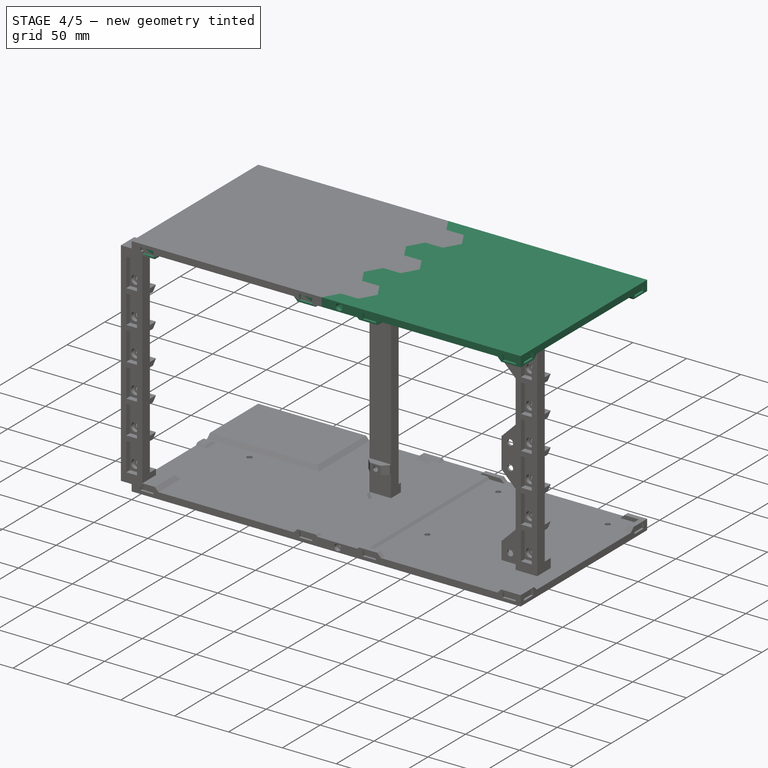
[diagram: stage 4 of 5 — iso view after this stage's code; geometry added in this stage tinted green]
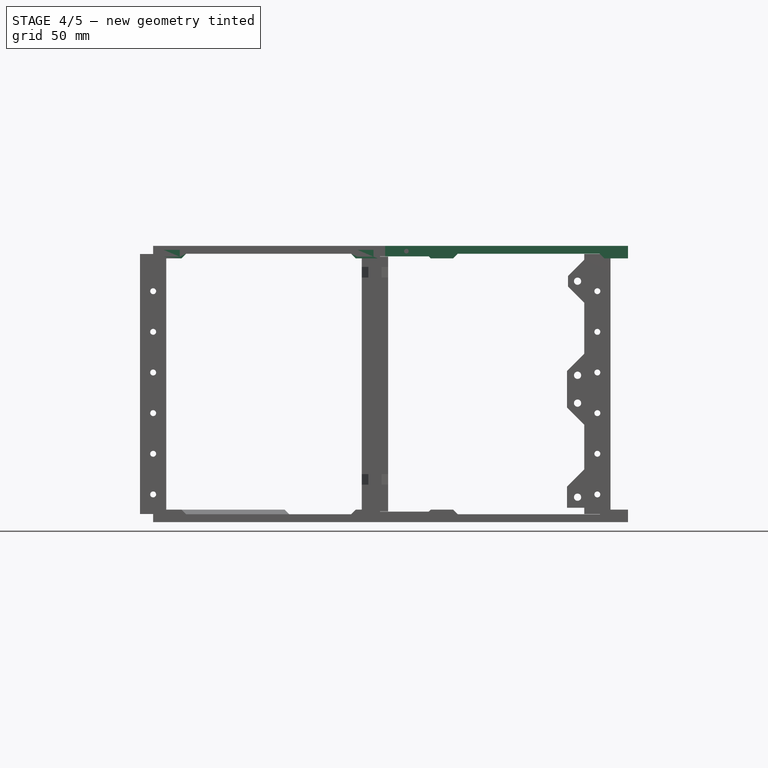
[diagram: stage 4 of 5 — front view after this stage's code; geometry added in this stage tinted green]
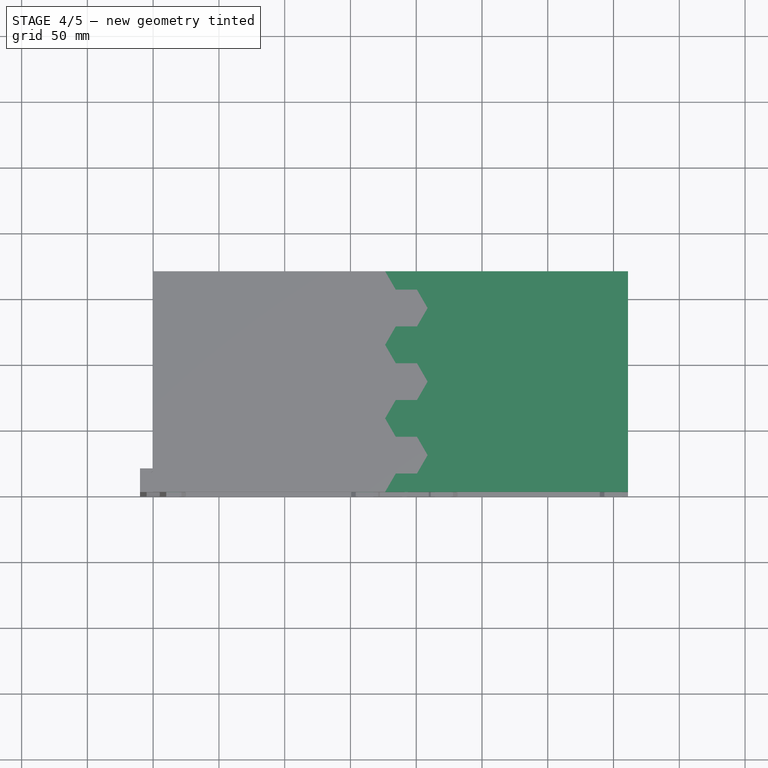
[diagram: stage 4 of 5 — top view after this stage's code; geometry added in this stage tinted green]
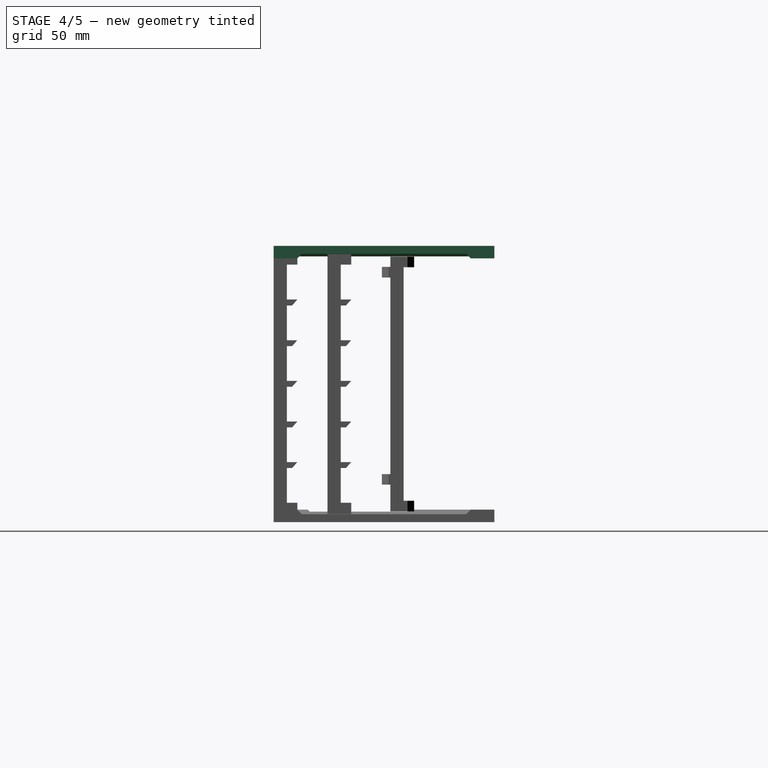
[diagram: stage 4 of 5 — right view after this stage's code; geometry added in this stage tinted green]
FEATURE [PartDesign::Plane] DatumPlane004
  AttachmentOffset = pos=(0,0,210) rot=(0,0,1;0rad)
  AttachmentSupport = -> [XY_Plane018]
  Length = 440.555
  MapMode = 5
  Placement = pos=(0,0,210) rot=(0,0,1;0rad)
  ResizeMode = 0
  Width = 247.315
FEATURE [Sketcher::SketchObject] Sketch121
  ArcFitTolerance = 1e-06
  AttachmentSupport = -> [DatumPlane004]
  FullyConstrained = true
  MakeInternals = false
  MapMode = 5
  Placement = pos=(0,0,210) rot=(0,0,1;0rad)
  sketch-geometry (33):
    g0: LineSegment StartX=361 StartY=167.76 StartZ=0 EndX=208.643 EndY=167.76 EndZ=0
    g1: LineSegment StartX=208.643 StartY=167.76 StartZ=0 EndX=208.643 EndY=0 EndZ=0
    g2: LineSegment StartX=208.643 StartY=0 StartZ=0 EndX=361 EndY=0 EndZ=0
    g3: LineSegment StartX=361 StartY=0 StartZ=0 EndX=361 EndY=167.76 EndZ=0
    g4: LineSegment [constr] StartX=6.85882 StartY=153.78 StartZ=0 EndX=14.9302 EndY=139.8 EndZ=0
    g5: LineSegment [constr] StartX=14.9302 StartY=139.8 StartZ=0 EndX=31.0729 EndY=139.8 EndZ=0
    g6: LineSegment [constr] StartX=31.0729 StartY=139.8 StartZ=0 EndX=39.1442 EndY=153.78 EndZ=0
    g7: LineSegment [constr] StartX=39.1442 StartY=153.78 StartZ=0 EndX=55.287 EndY=153.78 EndZ=0
    g8: LineSegment [constr] StartX=55.287 StartY=153.78 StartZ=0 EndX=63.3583 EndY=139.8 EndZ=0
    g9: LineSegment [constr] StartX=63.3583 StartY=139.8 StartZ=0 EndX=79.501 EndY=139.8 EndZ=0
    g10: LineSegment [constr] StartX=79.501 StartY=139.8 StartZ=0 EndX=87.5724 EndY=153.78 EndZ=0
    g11: LineSegment [constr] StartX=87.5724 StartY=153.78 StartZ=0 EndX=103.715 EndY=153.78 EndZ=0
    g12: LineSegment [constr] StartX=103.715 StartY=153.78 StartZ=0 EndX=111.786 EndY=139.8 EndZ=0
    g13: LineSegment [constr] StartX=111.786 StartY=139.8 StartZ=0 EndX=127.929 EndY=139.8 EndZ=0
    g14: LineSegment [constr] StartX=127.929 StartY=139.8 StartZ=0 EndX=136.001 EndY=153.78 EndZ=0
    g15: LineSegment [constr] StartX=136.001 StartY=153.78 StartZ=0 EndX=152.143 EndY=153.78 EndZ=0
    g16: LineSegment [constr] StartX=152.143 StartY=153.78 StartZ=0 EndX=160.215 EndY=139.8 EndZ=0
    g17: LineSegment [constr] StartX=160.215 StartY=139.8 StartZ=0 EndX=176.357 EndY=139.8 EndZ=0
    g18: LineSegment [constr] StartX=176.357 StartY=139.8 StartZ=0 EndX=184.429 EndY=153.78 EndZ=0
    g19: LineSegment [constr] StartX=184.429 StartY=153.78 StartZ=0 EndX=200.571 EndY=153.78 EndZ=0
    g20: LineSegment [constr] StartX=200.571 StartY=153.78 StartZ=0 EndX=208.643 EndY=139.8 EndZ=0
    g21: LineSegment [constr] StartX=208.643 StartY=139.8 StartZ=0 EndX=224.785 EndY=139.8 EndZ=0
    g22: LineSegment [constr] StartX=224.785 StartY=139.8 StartZ=0 EndX=232.857 EndY=153.78 EndZ=0
    g23: LineSegment [constr] StartX=232.857 StartY=153.78 StartZ=0 EndX=248.999 EndY=153.78 EndZ=0
    g24: LineSegment [constr] StartX=248.999 StartY=153.78 StartZ=0 EndX=257.071 EndY=139.8 EndZ=0
    g25: LineSegment [constr] StartX=257.071 StartY=139.8 StartZ=0 EndX=273.214 EndY=139.8 EndZ=0
    g26: LineSegment [constr] StartX=273.214 StartY=139.8 StartZ=0 EndX=281.285 EndY=153.78 EndZ=0
    g27: LineSegment [constr] StartX=281.285 StartY=153.78 StartZ=0 EndX=297.428 EndY=153.78 EndZ=0
    g28: LineSegment [constr] StartX=297.428 StartY=153.78 StartZ=0 EndX=305.499 EndY=139.8 EndZ=0
    g29: LineSegment [constr] StartX=305.499 StartY=139.8 StartZ=0 EndX=321.642 EndY=139.8 EndZ=0
    g30: LineSegment [constr] StartX=321.642 StartY=139.8 StartZ=0 EndX=329.713 EndY=153.78 EndZ=0
    g31: LineSegment [constr] StartX=200.571 StartY=153.78 StartZ=0 EndX=208.643 EndY=167.76 EndZ=0
    g32: GeomPoint X=192.5 Y=153.78 Z=0
  constraints (97):
    c: Coincident(g0,g1)
    c: Coincident(g1,g2)
    c: Coincident(g2,g3)
    c: Coincident(g3,g0)
    c: Horizontal(g0)
    c: Horizontal(g2)
    c: Vertical(g1)
    c: Vertical(g3)
    c: PointOnObject(g1,g-1)
    c: DistanceX(g-1,g2) = 361
    c: DistanceY(g3,g3) = 167.76
    c: Coincident(g4,g5)
    c: Coincident(g5,g6)
    c: Coincident(g6,g7)
    c: Horizontal(g7)
    c: Coincident(g7,g8)
    c: Coincident(g8,g9)
    c: Horizontal(g9)
    c: Coincident(g9,g10)
    c: Coincident(g10,g11)
    c: Horizontal(g11)
    c: Coincident(g11,g12)
    c: Coincident(g12,g13)
    c: Coincident(g13,g14)
    c: Coincident(g14,g15)
    c: Horizontal(g15)
    c: Coincident(g15,g16)
    c: Coincident(g16,g17)
    c: Horizontal(g17)
    c: Horizontal(g5)
    c: Horizontal(g13)
    c: Angle(g5,g4) = 2.0944
    c: Angle(g6,g5) = 2.0944
    c: Parallel(g4,g8)
    c: Parallel(g8,g12)
    c: Parallel(g12,g16)
    c: Parallel(g6,g10)
    c: Parallel(g10,g14)
    c: Equal(g4,g6)
    c: Equal(g6,g8)
    c: Equal(g8,g10)
    c: Equal(g10,g12)
    c: Equal(g12,g14)
    c: Equal(g14,g16)
    c: Equal(g16,g5)
    c: Equal(g5,g7)
    c: Equal(g7,g9)
    c: Equal(g9,g11)
    c: Equal(g11,g13)
    c: Equal(g13,g15)
    c: Equal(g15,g17)
    c: Coincident(g17,g18)
    c: Coincident(g18,g19)
    c: Horizontal(g19)
    c: Coincident(g19,g20)
    c: Coincident(g20,g21)
    c: Horizontal(g21)
    c: Coincident(g21,g22)
    c: Coincident(g22,g23)
    c: Coincident(g23,g24)
    c: Coincident(g24,g25)
    c: Coincident(g25,g26)
    c: Coincident(g26,g27)
    c: Horizontal(g27)
    c: Coincident(g27,g28)
    c: Coincident(g28,g29)
    c: Coincident(g29,g30)
    c: Horizontal(g23)
    c: Horizontal(g25)
    c: Horizontal(g29)
    c: Parallel(g14,g18)
    c: Parallel(g18,g22)
    c: Parallel(g22,g26)
    c: Parallel(g26,g30)
    c: Parallel(g20,g24)
    c: Parallel(g24,g28)
    c: Equal(g17,g18)
    c: Equal(g18,g19)
    c: Equal(g19,g20)
    c: Equal(g20,g21)
    c: Equal(g21,g22)
    c: Equal(g22,g23)
    c: Equal(g23,g24)
    c: Equal(g24,g25)
    c: Equal(g25,g26)
    c: Equal(g26,g27)
    c: Equal(g27,g28)
    c: Equal(g28,g29)
    c: Equal(g29,g30)
    c: DistanceY(g8,g7) = 13.98
    c: Parallel(g20,g16)
    c: PointOnObject(g20,g1)
    c: Coincident(g31,g19)
    c: Coincident(g31,g0)
    c: Equal(g31,g20)
    c: Symmetric(g19,g19,g32)
    c: DistanceX(g-1,g32) = 192.5
FEATURE [PartDesign::Pad] Pad043
  Direction = (0,0,1)
  Length = 6
  Length2 = 10
  Placement = pos=(0,0,210) rot=(0,0,1;0rad)
  Profile = -> Sketch121
  ReferenceAxis = -> Sketch121 [N_Axis]
  Refine = true
  Reversed = true
  Suppressed = false
  Type = 0
FEATURE [Sketcher::SketchObject] Sketch122
  ArcFitTolerance = 1e-06
  AttachmentSupport = -> [Pad043]
  ExternalGeometry = -> [Pad043]
  FullyConstrained = true
  MakeInternals = false
  MapMode = 5
  Placement = pos=(0,0,210) rot=(0,0,1;0rad)
  sketch-geometry (26):
    g0: LineSegment StartX=208.643 StartY=167.76 StartZ=0 EndX=176.357 EndY=167.76 EndZ=0
    g1: LineSegment StartX=176.357 StartY=167.76 StartZ=0 EndX=184.429 EndY=153.78 EndZ=0
    g2: LineSegment StartX=184.429 StartY=153.78 StartZ=0 EndX=200.571 EndY=153.78 EndZ=0
    g3: LineSegment StartX=200.571 StartY=153.78 StartZ=0 EndX=208.643 EndY=139.8 EndZ=0
    g4: LineSegment StartX=208.643 StartY=139.8 StartZ=0 EndX=200.571 EndY=125.82 EndZ=0
    g5: LineSegment [constr] StartX=200.571 StartY=125.82 StartZ=0 EndX=184.429 EndY=125.82 EndZ=0
    g6: LineSegment [constr] StartX=184.429 StartY=125.82 StartZ=0 EndX=176.357 EndY=111.84 EndZ=0
    g7: LineSegment [constr] StartX=176.357 StartY=111.84 StartZ=0 EndX=184.429 EndY=97.86 EndZ=0
    g8: LineSegment [constr] StartX=184.429 StartY=97.86 StartZ=0 EndX=200.571 EndY=97.86 EndZ=0
    g9: LineSegment [constr] StartX=200.571 StartY=97.86 StartZ=0 EndX=208.643 EndY=83.88 EndZ=0
    g10: LineSegment [constr] StartX=208.643 StartY=83.88 StartZ=0 EndX=200.571 EndY=69.9 EndZ=0
    g11: LineSegment [constr] StartX=200.571 StartY=69.9 StartZ=0 EndX=184.429 EndY=69.9 EndZ=0
    g12: LineSegment [constr] StartX=184.429 StartY=69.9 StartZ=0 EndX=176.357 EndY=55.92 EndZ=0
    g13: LineSegment [constr] StartX=176.357 StartY=55.92 StartZ=0 EndX=184.429 EndY=41.94 EndZ=0
    g14: LineSegment [constr] StartX=184.429 StartY=41.94 StartZ=0 EndX=200.571 EndY=41.94 EndZ=0
    g15: LineSegment StartX=200.571 StartY=41.94 StartZ=0 EndX=208.643 EndY=27.96 EndZ=0
    g16: LineSegment StartX=208.643 StartY=27.96 StartZ=0 EndX=200.571 EndY=13.98 EndZ=0
    g17: LineSegment StartX=200.571 StartY=13.98 StartZ=0 EndX=184.429 EndY=13.98 EndZ=0
    g18: LineSegment StartX=184.429 StartY=13.98 StartZ=0 EndX=176.357 EndY=0 EndZ=0
    g19: LineSegment StartX=176.357 StartY=0 StartZ=0 EndX=208.643 EndY=0 EndZ=0
    g20: LineSegment StartX=192.5 StartY=125.82 StartZ=0 EndX=192.5 EndY=41.94 EndZ=0
    g21: LineSegment StartX=192.5 StartY=125.82 StartZ=0 EndX=200.571 EndY=125.82 EndZ=0
    g22: LineSegment StartX=192.5 StartY=41.94 StartZ=0 EndX=200.571 EndY=41.94 EndZ=0
    g23: LineSegment StartX=208.643 StartY=167.76 StartZ=0 EndX=214.643 EndY=167.76 EndZ=0
    g24: LineSegment StartX=214.643 StartY=167.76 StartZ=0 EndX=214.643 EndY=0 EndZ=0
    g25: LineSegment StartX=214.643 StartY=0 StartZ=0 EndX=208.643 EndY=0 EndZ=0
  constraints (73):
    c: Coincident(g-3,g0)
    c: Horizontal(g0)
    c: Coincident(g0,g1)
    c: Coincident(g1,g2)
    c: Coincident(g2,g3)
    c: Coincident(g3,g4)
    c: Coincident(g4,g5)
    c: Coincident(g5,g6)
    c: Coincident(g6,g7)
    c: Coincident(g7,g8)
    c: Horizontal(g8)
    c: Coincident(g8,g9)
    c: Coincident(g9,g10)
    c: Coincident(g10,g11)
    c: Coincident(g11,g12)
    c: Coincident(g12,g13)
    c: Coincident(g13,g14)
    c: Horizontal(g14)
    c: Coincident(g14,g15)
    c: Coincident(g15,g16)
    c: Coincident(g16,g17)
    c: Coincident(g17,g18)
    c: PointOnObject(g18,g-1)
    c: Coincident(g18,g19)
    c: Coincident(g19,g-3)
    c: Horizontal(g2)
    c: Horizontal(g11)
    c: Horizontal(g17)
    c: Angle(g1,g0) = 1.0472
    c: Horizontal(g5)
    c: Angle(g4,g5) = 2.0944
    c: Parallel(g3,g1)
    c: Parallel(g1,g7)
    c: Parallel(g7,g9)
    c: Parallel(g9,g13)
    c: Parallel(g13,g15)
    c: Parallel(g4,g6)
    c: Parallel(g6,g10)
    c: Parallel(g10,g12)
    c: Parallel(g12,g16)
    c: Parallel(g16,g18)
    c: Equal(g1,g2)
    c: Equal(g2,g3)
    c: Equal(g3,g4)
    c: Equal(g4,g5)
    c: Equal(g5,g6)
    c: Equal(g6,g7)
    c: Equal(g7,g8)
    c: Equal(g8,g9)
    c: Equal(g9,g10)
    c: Equal(g10,g11)
    c: Equal(g11,g12)
    c: Equal(g12,g13)
    c: Equal(g13,g14)
    c: Equal(g14,g15)
    c: Equal(g15,g16)
    c: Equal(g16,g17)
    c: Equal(g17,g18)
    c: PointOnObject(g3,g-3)
    c: Symmetric(g5,g5,g20)
    c: Symmetric(g14,g14,g20)
    c: Coincident(g21,g20)
    c: Coincident(g21,g4)
    c: Coincident(g22,g20)
    c: Coincident(g22,g14)
    c: Coincident(g0,g23)
    c: Horizontal(g23)
    c: Coincident(g23,g24)
    c: PointOnObject(g24,g-1)
    c: Vertical(g24)
    c: Coincident(g24,g25)
    c: Coincident(g25,g19)
    c: DistanceX(g25,g25) = 6
FEATURE [PartDesign::Pad] Pad044
  BaseFeature = -> Pad043
  Direction = (0,0,1)
  Length = 8
  Length2 = 10
  Placement = pos=(0,0,210) rot=(0,0,1;0rad)
  Profile = -> Sketch122
  ReferenceAxis = -> Sketch122 [N_Axis]
  Refine = true
  Reversed = true
  Suppressed = false
  Type = 0
FEATURE [Sketcher::SketchObject] Sketch123
  ArcFitTolerance = 1e-06
  AttachmentSupport = -> [Pad044]
  ExternalGeometry = -> [Pad044]
  FullyConstrained = true
  MakeInternals = false
  MapMode = 5
  Placement = pos=(0,0,210) rot=(0,0,1;0rad)
  sketch-geometry (14):
    g0: LineSegment StartX=200.571 StartY=125.82 StartZ=0 EndX=184.429 EndY=125.82 EndZ=0
    g1: LineSegment StartX=184.429 StartY=125.82 StartZ=0 EndX=176.357 EndY=111.84 EndZ=0
    g2: LineSegment StartX=176.357 StartY=111.84 StartZ=0 EndX=184.429 EndY=97.86 EndZ=0
    g3: LineSegment StartX=184.429 StartY=97.86 StartZ=0 EndX=200.571 EndY=97.86 EndZ=0
    g4: LineSegment [constr] StartX=200.571 StartY=97.86 StartZ=0 EndX=208.643 EndY=83.88 EndZ=0
    g5: LineSegment [constr] StartX=208.643 StartY=83.88 StartZ=0 EndX=200.571 EndY=69.9 EndZ=0
    g6: LineSegment StartX=200.571 StartY=69.9 StartZ=0 EndX=184.429 EndY=69.9 EndZ=0
    g7: LineSegment StartX=184.429 StartY=69.9 StartZ=0 EndX=176.357 EndY=55.92 EndZ=0
    g8: LineSegment StartX=176.357 StartY=55.92 StartZ=0 EndX=184.429 EndY=41.94 EndZ=0
    g9: LineSegment StartX=184.429 StartY=41.94 StartZ=0 EndX=200.571 EndY=41.94 EndZ=0
    g10: LineSegment StartX=200.571 StartY=97.86 StartZ=0 EndX=200.571 EndY=69.9 EndZ=0
    g11: LineSegment StartX=200.571 StartY=125.82 StartZ=0 EndX=201.571 EndY=125.82 EndZ=0
    g12: LineSegment StartX=201.571 StartY=125.82 StartZ=0 EndX=201.571 EndY=41.94 EndZ=0
    g13: LineSegment StartX=201.571 StartY=41.94 StartZ=0 EndX=200.571 EndY=41.94 EndZ=0
  constraints (40):
    c: Horizontal(g0)
    c: Coincident(g0,g1)
    c: Coincident(g1,g2)
    c: Coincident(g2,g3)
    c: Horizontal(g3)
    c: Coincident(g3,g4)
    c: Coincident(g4,g5)
    c: Coincident(g5,g6)
    c: Coincident(g6,g7)
    c: Coincident(g7,g8)
    c: Coincident(g8,g9)
    c: Symmetric(g9,g8,g-3)
    c: Horizontal(g9)
    c: Horizontal(g6)
    c: PointOnObject(g-3,g0)
    c: Angle(g9,g8) = 2.0944
    c: Angle(g7,g6) = 2.0944
    c: Parallel(g8,g4)
    c: Parallel(g4,g2)
    c: Parallel(g1,g5)
    c: Parallel(g5,g7)
    c: Equal(g0,g1)
    c: Equal(g1,g2)
    c: Equal(g2,g3)
    c: Equal(g3,g4)
    c: Equal(g4,g5)
    c: Equal(g5,g6)
    c: Equal(g6,g7)
    c: Equal(g7,g8)
    c: Equal(g8,g9)
    c: Coincident(g10,g3)
    c: Coincident(g10,g5)
    c: Coincident(g0,g11)
    c: Horizontal(g11)
    c: Coincident(g11,g12)
    c: Vertical(g12)
    c: Coincident(g12,g13)
    c: Coincident(g13,g9)
    c: Horizontal(g13)
    c: DistanceX(g11,g11) = 1
FEATURE [PartDesign::Pad] Pad045
  BaseFeature = -> Pad044
  Direction = (0,0,1)
  Length = 4
  Length2 = 10
  Placement = pos=(0,0,210) rot=(0,0,1;0rad)
  Profile = -> Sketch123
  ReferenceAxis = -> Sketch123 [N_Axis]
  Refine = true
  Reversed = true
  Suppressed = false
  Type = 0
FEATURE [Sketcher::SketchObject] Sketch124
  ArcFitTolerance = 1e-06
  AttachmentSupport = -> [Pad045]
  ExternalGeometry = -> [Pad045]
  FullyConstrained = true
  MakeInternals = false
  MapMode = 5
  Placement = pos=(0,0,210) rot=(0,0,1;0rad)
  sketch-geometry (5):
    g0: LineSegment StartX=184.429 StartY=97.86 StartZ=0 EndX=200.571 EndY=97.86 EndZ=0
    g1: LineSegment StartX=200.571 StartY=97.86 StartZ=0 EndX=208.643 EndY=83.88 EndZ=0
    g2: LineSegment StartX=208.643 StartY=83.88 StartZ=0 EndX=200.571 EndY=69.9 EndZ=0
    g3: LineSegment StartX=200.571 StartY=69.9 StartZ=0 EndX=184.429 EndY=69.9 EndZ=0
    g4: LineSegment StartX=184.429 StartY=97.86 StartZ=0 EndX=184.429 EndY=69.9 EndZ=0
  constraints (13):
    c: Coincident(g-3,g0)
    c: Horizontal(g0)
    c: Coincident(g0,g1)
    c: Coincident(g1,g2)
    c: Coincident(g2,g3)
    c: Coincident(g3,g-4)
    c: Horizontal(g3)
    c: Angle(g0,g1) = 2.0944
    c: Angle(g2,g3) = 2.0944
    c: Equal(g0,g1)
    c: Equal(g1,g2)
    c: Coincident(g4,g0)
    c: Coincident(g4,g3)
FEATURE [PartDesign::Pocket] Pocket053
  BaseFeature = -> Pad045
  Direction = (0,0,-1)
  Length = 4
  Length2 = 5
  Placement = pos=(0,0,210) rot=(0,0,1;0rad)
  Profile = -> Sketch124
  ReferenceAxis = -> Sketch124 [N_Axis]
  Refine = true
  Suppressed = false
  Type = 0
FEATURE [Sketcher::SketchObject] Sketch127
  ArcFitTolerance = 1e-06
  AttachmentSupport = -> [Pocket053]
  ExternalGeometry = -> [Pocket053]
  FullyConstrained = true
  MakeInternals = false
  MapMode = 5
  Placement = pos=(0,0,210) rot=(1,0,0;1.5708rad)
  sketch-geometry (1):
    g0: Circle CenterX=192.5 CenterY=-4 CenterZ=0 NormalX=0 NormalY=0 NormalZ=1 AngleXU=0 Radius=1.75
  constraints (2):
    c: Diameter(g0) = 3.5
    c: Symmetric(g-3,g-4,g0)
FEATURE [PartDesign::Pocket] Pocket056
  BaseFeature = -> Pocket053
  Direction = (0,1,-2e-16)
  Length = 5
  Length2 = 5
  Placement = pos=(0,0,210) rot=(0,0,1;0rad)
  Profile = -> Sketch127
  ReferenceAxis = -> Sketch127 [N_Axis]
  Refine = true
  Suppressed = false
  Type = 2
FEATURE [Sketcher::SketchObject] Sketch128
  ArcFitTolerance = 1e-06
  AttachmentSupport = -> [Pocket056]
  ExternalGeometry = -> [Pocket056]
  FullyConstrained = true
  MakeInternals = false
  MapMode = 5
  Placement = pos=(0,167.76,210) rot=(0,0.707107,0.707107;3.14159rad)
  sketch-geometry (1):
    g0: Circle CenterX=-192.5 CenterY=-4 CenterZ=0 NormalX=0 NormalY=0 NormalZ=1 AngleXU=0 Radius=1.75
  constraints (2):
    c: Diameter(g0) = 3.5
    c: Symmetric(g-4,g-3,g0)
FEATURE [PartDesign::Pocket] Pocket057
  BaseFeature = -> Pocket056
  Direction = (0,-1,2e-16)
  Length = 5
  Length2 = 5
  Placement = pos=(0,0,210) rot=(0,0,1;0rad)
  Profile = -> Sketch128
  ReferenceAxis = -> Sketch128 [N_Axis]
  Refine = true
  Suppressed = false
  Type = 2
FEATURE [PartDesign::Hole] Hole011
  BaseFeature = -> Pocket057
  CustomThreadClearance = 0
  Depth = 4
  DepthType = 0
  Diameter = 6
  DrillForDepth = false
  DrillPoint = 0
  DrillPointAngle = 118
  HoleCutCountersinkAngle = 90
  HoleCutCustomValues = false
  HoleCutDepth = 0
  HoleCutDiameter = 6.1
  HoleCutType = 0
  ModelThread = false
  Placement = pos=(0,0,210) rot=(0,0,1;0rad)
  Profile = -> Pocket057 [Edge10]
  Refine = true
  Suppressed = false
  Tapered = false
  TaperedAngle = 90
  ThreadClass = 0
  ThreadDepth = 4
  ThreadDepthType = 0
  ThreadDirection = 0
  ThreadFit = 0
  ThreadSize = 0
  ThreadType = 0
  Threaded = false
  UseCustomThreadClearance = false
FEATURE [PartDesign::Hole] Hole012
  BaseFeature = -> Hole011
  CustomThreadClearance = 0
  Depth = 4
  DepthType = 0
  Diameter = 6
  DrillForDepth = false
  DrillPoint = 0
  DrillPointAngle = 118
  HoleCutCountersinkAngle = 90
  HoleCutCustomValues = false
  HoleCutDepth = 0
  HoleCutDiameter = 6.1
  HoleCutType = 0
  ModelThread = false
  Placement = pos=(0,0,210) rot=(0,0,1;0rad)
  Profile = -> Hole011 [Edge84]
  Refine = true
  Reversed = true
  Suppressed = false
  Tapered = false
  TaperedAngle = 90
  ThreadClass = 0
  ThreadDepth = 4
  ThreadDepthType = 0
  ThreadDirection = 0
  ThreadFit = 0
  ThreadSize = 0
  ThreadType = 0
  Threaded = false
  UseCustomThreadClearance = false
FEATURE [Sketcher::SketchObject] Sketch129
  ArcFitTolerance = 1e-06
  AttachmentSupport = -> [Pocket055]
  FullyConstrained = true
  MakeInternals = false
  MapMode = 5
  Placement = pos=(0,0,210) rot=(0,0,1;0rad)
  sketch-geometry (4):
    g0: LineSegment StartX=0 StartY=95.26 StartZ=0 EndX=0 EndY=87.26 EndZ=0
    g1: LineSegment StartX=0 StartY=87.26 StartZ=0 EndX=8 EndY=87.26 EndZ=0
    g2: LineSegment StartX=8 StartY=87.26 StartZ=0 EndX=8 EndY=95.26 EndZ=0
    g3: LineSegment StartX=8 StartY=95.26 StartZ=0 EndX=0 EndY=95.26 EndZ=0
  constraints (12):
    c: Coincident(g0,g1)
    c: Coincident(g1,g2)
    c: Coincident(g2,g3)
    c: Coincident(g3,g0)
    c: Vertical(g0)
    c: Vertical(g2)
    c: Horizontal(g1)
    c: Horizontal(g3)
    c: Distance(g1,g3) = 8
    c: PointOnObject(g0,g-2)
    c: DistanceX(g1,g1) = 8
    c: DistanceY(g-1,g0) = 87.26
FEATURE [Sketcher::SketchObject] Sketch133
  ArcFitTolerance = 1e-06
  AttachmentSupport = -> [Hole012]
  ExternalGeometry = -> [Hole012]
  FullyConstrained = true
  MakeInternals = false
  MapMode = 5
  Placement = pos=(0,0,204) rot=(1,0,0;3.14159rad)
  sketch-geometry (20):
    g0: LineSegment StartX=361 StartY=0 StartZ=0 EndX=343 EndY=0 EndZ=0
    g1: LineSegment StartX=343 StartY=0 StartZ=0 EndX=343 EndY=-4.5 EndZ=0
    g2: LineSegment StartX=343 StartY=-4.5 StartZ=0 EndX=356.5 EndY=-4.5 EndZ=0
    g3: LineSegment StartX=356.5 StartY=-4.5 StartZ=0 EndX=356.5 EndY=-18 EndZ=0
    g4: LineSegment StartX=356.5 StartY=-18 StartZ=0 EndX=361 EndY=-18 EndZ=0
    g5: LineSegment StartX=361 StartY=-18 StartZ=0 EndX=361 EndY=0 EndZ=0
    g6: LineSegment StartX=361 StartY=-167.76 StartZ=0 EndX=361 EndY=-149.76 EndZ=0
    g7: LineSegment StartX=361 StartY=-149.76 StartZ=0 EndX=356.5 EndY=-149.76 EndZ=0
    g8: LineSegment StartX=356.5 StartY=-149.76 StartZ=0 EndX=356.5 EndY=-163.26 EndZ=0
    g9: LineSegment StartX=356.5 StartY=-163.26 StartZ=0 EndX=343 EndY=-163.26 EndZ=0
    g10: LineSegment StartX=343 StartY=-163.26 StartZ=0 EndX=343 EndY=-167.76 EndZ=0
    g11: LineSegment StartX=343 StartY=-167.76 StartZ=0 EndX=361 EndY=-167.76 EndZ=0
    g12: LineSegment StartX=211 StartY=0 StartZ=0 EndX=211 EndY=-4.5 EndZ=0
    g13: LineSegment StartX=211 StartY=-4.5 StartZ=0 EndX=228 EndY=-4.5 EndZ=0
    g14: LineSegment StartX=228 StartY=-4.5 StartZ=0 EndX=228 EndY=0 EndZ=0
    g15: LineSegment StartX=228 StartY=0 StartZ=0 EndX=211 EndY=0 EndZ=0
    g16: LineSegment StartX=211 StartY=-167.76 StartZ=0 EndX=228 EndY=-167.76 EndZ=0
    g17: LineSegment StartX=228 StartY=-167.76 StartZ=0 EndX=228 EndY=-163.26 EndZ=0
    g18: LineSegment StartX=228 StartY=-163.26 StartZ=0 EndX=211 EndY=-163.26 EndZ=0
    g19: LineSegment StartX=211 StartY=-163.26 StartZ=0 EndX=211 EndY=-167.76 EndZ=0
  constraints (58):
    c: Coincident(g-3,g0)
    c: PointOnObject(g0,g-1)
    c: Coincident(g0,g1)
    c: Coincident(g1,g2)
    c: Horizontal(g2)
    c: Coincident(g2,g3)
    c: Vertical(g3)
    c: Coincident(g3,g4)
    c: PointOnObject(g4,g-3)
    c: Horizontal(g4)
    c: Coincident(g4,g5)
    c: Coincident(g5,g0)
    c: Coincident(g-3,g6)
    c: PointOnObject(g6,g-3)
    c: Coincident(g6,g7)
    c: Horizontal(g7)
    c: Coincident(g7,g8)
    c: Vertical(g8)
    c: Coincident(g8,g9)
    c: Horizontal(g9)
    c: Coincident(g9,g10)
    c: Coincident(g10,g11)
    c: Coincident(g11,g6)
    c: Horizontal(g11)
    c: Vertical(g10)
    c: Vertical(g1)
    c: Equal(g5,g0)
    c: Equal(g4,g1)
    c: Equal(g5,g6)
    c: Equal(g6,g11)
    c: Equal(g4,g7)
    c: Equal(g7,g10)
    c: DistanceY(g6,g6) = 18
    c: DistanceX(g7,g7) = 4.5
    c: Coincident(g12,g13)
    c: Coincident(g13,g14)
    c: Coincident(g14,g15)
    c: Coincident(g15,g12)
    c: Vertical(g12)
    c: Vertical(g14)
    c: Horizontal(g13)
    c: Horizontal(g15)
    c: PointOnObject(g12,g-1)
    c: DistanceY(g12,g12) = 4.5
    c: DistanceX(g15,g15) = 17
    c: Coincident(g16,g17)
    c: Coincident(g17,g18)
    c: Coincident(g18,g19)
    c: Coincident(g19,g16)
    c: Horizontal(g16)
    c: Horizontal(g18)
    c: Vertical(g17)
    c: Vertical(g19)
    c: PointOnObject(g6,g16)
    c: Equal(g12,g19)
    c: Equal(g18,g15)
    c: DistanceX(g14,g0) = 115
    c: PointOnObject(g12,g19)
FEATURE [PartDesign::Pad] Pad047
  BaseFeature = -> Hole012
  Direction = (0,0,-1)
  Length = 3.5
  Length2 = 10
  Placement = pos=(0,0,210) rot=(0,0,1;0rad)
  Profile = -> Sketch133
  ReferenceAxis = -> Sketch133 [N_Axis]
  Refine = true
  Suppressed = false
  Type = 0
FEATURE [Sketcher::SketchObject] Sketch141
  ArcFitTolerance = 1e-06
  AttachmentSupport = -> [Pocket066]
  ExternalGeometry = -> [Pocket066]
  FullyConstrained = true
  MakeInternals = false
  MapMode = 5
  Placement = pos=(0,0,202) rot=(1,0,0;3.14159rad)
  sketch-geometry (2):
    g0: Circle CenterX=168.6 CenterY=-101.76 CenterZ=0 NormalX=0 NormalY=0 NormalZ=1 AngleXU=0 Radius=2.3
    g1: LineSegment [constr] StartX=158.6 StartY=-101.76 StartZ=0 EndX=168.6 EndY=-101.76 EndZ=0
  constraints (5):
    c: Diameter(g0) = 4.6
    c: DistanceX(g-3,g0) = 10
    c: Coincident(g1,g-3)
    c: Coincident(g1,g0)
    c: Horizontal(g1)
FEATURE [PartDesign::Pocket] Pocket067
  BaseFeature = -> Pocket066
  Direction = (0,0,1)
  Length = 6
  Length2 = 5
  Placement = pos=(0,0,210) rot=(0,0,1;0rad)
  Profile = -> Sketch141
  ReferenceAxis = -> Sketch141 [N_Axis]
  Refine = true
  Suppressed = false
  Type = 0
FEATURE [Sketcher::SketchObject] Sketch143
  ArcFitTolerance = 1e-06
  AttachmentSupport = -> [Pocket067]
  ExternalGeometry = -> [Pocket067]
  FullyConstrained = true
  MakeInternals = false
  MapMode = 5
  Placement = pos=(0,0,204) rot=(1,0,0;3.14159rad)
  sketch-geometry (16):
    g0: LineSegment StartX=0 StartY=0 StartZ=0 EndX=0 EndY=-8 EndZ=0
    g1: LineSegment StartX=0 StartY=-8 StartZ=0 EndX=21.5 EndY=-8 EndZ=0
    g2: LineSegment StartX=21.5 StartY=-8 StartZ=0 EndX=21.5 EndY=0 EndZ=0
    g3: LineSegment StartX=21.5 StartY=0 StartZ=0 EndX=0 EndY=0 EndZ=0
    g4: LineSegment StartX=0 StartY=-167.76 StartZ=0 EndX=21.5 EndY=-167.76 EndZ=0
    g5: LineSegment StartX=21.5 StartY=-167.76 StartZ=0 EndX=21.5 EndY=-159.76 EndZ=0
    g6: LineSegment StartX=21.5 StartY=-159.76 StartZ=0 EndX=0 EndY=-159.76 EndZ=0
    g7: LineSegment StartX=0 StartY=-159.76 StartZ=0 EndX=0 EndY=-167.76 EndZ=0
    g8: LineSegment StartX=171 StartY=-167.76 StartZ=0 EndX=171 EndY=-163.26 EndZ=0
    g9: LineSegment StartX=171 StartY=-163.26 StartZ=0 EndX=154 EndY=-163.26 EndZ=0
    g10: LineSegment StartX=154 StartY=-163.26 StartZ=0 EndX=154 EndY=-167.76 EndZ=0
    g11: LineSegment StartX=154 StartY=-167.76 StartZ=0 EndX=171 EndY=-167.76 EndZ=0
    g12: LineSegment StartX=171 StartY=0 StartZ=0 EndX=154 EndY=0 EndZ=0
    g13: LineSegment StartX=154 StartY=0 StartZ=0 EndX=154 EndY=-4.5 EndZ=0
    g14: LineSegment StartX=154 StartY=-4.5 StartZ=0 EndX=171 EndY=-4.5 EndZ=0
    g15: LineSegment StartX=171 StartY=-4.5 StartZ=0 EndX=171 EndY=0 EndZ=0
  constraints (46):
    c: Coincident(g0,g1)
    c: Coincident(g1,g2)
    c: Coincident(g2,g3)
    c: Coincident(g3,g0)
    c: Vertical(g0)
    c: Vertical(g2)
    c: Horizontal(g1)
    c: Horizontal(g3)
    c: Distance(g0,g2) = 21.5
    c: Distance(g1,g3) = 8
    c: Coincident(g0,g-1)
    c: Coincident(g4,g5)
    c: Coincident(g5,g6)
    c: Coincident(g6,g7)
    c: Coincident(g7,g4)
    c: Horizontal(g4)
    c: Horizontal(g6)
    c: Vertical(g5)
    c: Vertical(g7)
    c: Coincident(g4,g-3)
    c: Equal(g4,g1)
    c: Equal(g7,g0)
    c: Coincident(g8,g9)
    c: Coincident(g9,g10)
    c: Coincident(g10,g11)
    c: Coincident(g11,g8)
    c: Vertical(g8)
    c: Vertical(g10)
    c: Horizontal(g9)
    c: Horizontal(g11)
    c: Distance(g8,g10) = 17
    c: Distance(g9,g11) = 4.5
    c: PointOnObject(g4,g11)
    c: Coincident(g12,g13)
    c: Coincident(g13,g14)
    c: Coincident(g14,g15)
    c: Coincident(g15,g12)
    c: Horizontal(g12)
    c: Horizontal(g14)
    c: Vertical(g13)
    c: Vertical(g15)
    c: Distance(g13,g15) = 17
    c: Distance(g12,g14) = 4.5
    c: PointOnObject(g12,g-1)
    c: PointOnObject(g8,g15)
    c: DistanceX(g4,g10) = 132.5
FEATURE [PartDesign::Pad] Pad054
  BaseFeature = -> Pocket067
  Direction = (0,0,-1)
  Length = 3.5
  Length2 = 10
  Placement = pos=(0,0,210) rot=(0,0,1;0rad)
  Profile = -> Sketch143
  ReferenceAxis = -> Sketch143 [N_Axis]
  Refine = true
  Suppressed = false
  Type = 0
FEATURE [PartDesign::Pad] Pad046
  BaseFeature = -> Pad054
  Direction = (0,0,1)
  Length = 8
  Length2 = 10
  Placement = pos=(0,0,210) rot=(0,0,1;0rad)
  Profile = -> Sketch129
  ReferenceAxis = -> Sketch129 [N_Axis]
  Refine = true
  Reversed = true
  Suppressed = false
  Type = 0
FEATURE [Sketcher::SketchObject] Sketch130
  ArcFitTolerance = 1e-06
  AttachmentSupport = -> [Pad046]
  ExternalGeometry = -> [Pad046]
  FullyConstrained = true
  MakeInternals = false
  MapMode = 5
  Placement = pos=(0,0,210) rot=(0.57735,-0.57735,-0.57735;2.0944rad)
  sketch-geometry (3):
    g0: Circle CenterX=-163.76 CenterY=-4 CenterZ=0 NormalX=0 NormalY=0 NormalZ=1 AngleXU=0 Radius=2.3
    g1: Circle CenterX=-91.26 CenterY=-4 CenterZ=0 NormalX=0 NormalY=0 NormalZ=1 AngleXU=0 Radius=2.3
    g2: Circle CenterX=-4 CenterY=-4 CenterZ=0 NormalX=0 NormalY=0 NormalZ=1 AngleXU=0 Radius=2.3
  constraints (9):
    c: Diameter(g0) = 4.6
    c: Diameter(g1) = 4.6
    c: Diameter(g2) = 4.6
    c: Distance(g1,g-1) = 4
    c: DistanceY(g2,g-1) = 4
    c: Distance(g0,g-1) = 4
    c: DistanceX(g2,g-1) = 4
    c: DistanceX(g1,g-1) = 91.26
    c: DistanceX(g-3,g0) = 4
FEATURE [PartDesign::Pocket] Pocket058
  BaseFeature = -> Pad046
  Direction = (1,0,0)
  Length = 6.5
  Length2 = 5
  Placement = pos=(0,0,210) rot=(0,0,1;0rad)
  Profile = -> Sketch130
  ReferenceAxis = -> Sketch130 [N_Axis]
  Refine = true
  Suppressed = false
  Type = 0
FEATURE [Sketcher::SketchObject] Sketch144
  ArcFitTolerance = 1e-06
  AttachmentSupport = -> [Pocket058]
  ExternalGeometry = -> [Pocket058]
  FullyConstrained = true
  MakeInternals = false
  MapMode = 5
  Placement = pos=(0,0,210) rot=(1,0,0;1.5708rad)
  sketch-geometry (8):
    g0: LineSegment StartX=155.3 StartY=-8.2 StartZ=0 EndX=167.5 EndY=-8.2 EndZ=0
    g1: LineSegment StartX=167.5 StartY=-8.2 StartZ=0 EndX=167.5 EndY=-3 EndZ=0
    g2: LineSegment StartX=167.5 StartY=-3 StartZ=0 EndX=155.3 EndY=-3 EndZ=0
    g3: LineSegment StartX=155.3 StartY=-3 StartZ=0 EndX=155.3 EndY=-8.2 EndZ=0
    g4: LineSegment StartX=20.2 StartY=-8.2 StartZ=0 EndX=20.2 EndY=-3 EndZ=0
    g5: LineSegment StartX=20.2 StartY=-3 StartZ=0 EndX=8 EndY=-3 EndZ=0
    g6: LineSegment StartX=8 StartY=-3 StartZ=0 EndX=8 EndY=-8.2 EndZ=0
    g7: LineSegment StartX=8 StartY=-8.2 StartZ=0 EndX=20.2 EndY=-8.2 EndZ=0
  constraints (24):
    c: Coincident(g0,g1)
    c: Coincident(g1,g2)
    c: Coincident(g2,g3)
    c: Coincident(g3,g0)
    c: Horizontal(g0)
    c: Horizontal(g2)
    c: Vertical(g1)
    c: Vertical(g3)
    c: Distance(g1,g3) = 12.2
    c: Distance(g0,g2) = 5.2
    c: Coincident(g4,g5)
    c: Coincident(g5,g6)
    c: Coincident(g6,g7)
    c: Coincident(g7,g4)
    c: Vertical(g4)
    c: Vertical(g6)
    c: Horizontal(g5)
    c: Horizontal(g7)
    c: Distance(g4,g6) = 12.2
    c: Distance(g5,g7) = 5.2
    c: DistanceX(g4,g-3) = 1.3
    c: DistanceY(g-3,g4) = 1.3
    c: DistanceX(g-4,g0) = 1.3
    c: DistanceY(g-4,g0) = 1.3
FEATURE [PartDesign::Pocket] Pocket069
  BaseFeature = -> Pocket058
  Direction = (0,1,-2e-16)
  Length = 2.2
  Length2 = 5
  Placement = pos=(0,0,210) rot=(0,0,1;0rad)
  Profile = -> Sketch144
  ReferenceAxis = -> Sketch144 [N_Axis]
  Refine = true
  Suppressed = false
  Type = 0
FEATURE [Sketcher::SketchObject] Sketch145
  ArcFitTolerance = 1e-06
  AttachmentSupport = -> [Pocket069]
  ExternalGeometry = -> [Pocket058]
  FullyConstrained = true
  MakeInternals = false
  MapMode = 5
  Placement = pos=(-3.4e-15,167.76,210) rot=(0,0.707107,0.707107;3.14159rad)
  sketch-geometry (8):
    g0: LineSegment StartX=-20.2 StartY=-8.2 StartZ=0 EndX=-8 EndY=-8.2 EndZ=0
    g1: LineSegment StartX=-8 StartY=-8.2 StartZ=0 EndX=-8 EndY=-3 EndZ=0
    g2: LineSegment StartX=-8 StartY=-3 StartZ=0 EndX=-20.2 EndY=-3 EndZ=0
    g3: LineSegment StartX=-20.2 StartY=-3 StartZ=0 EndX=-20.2 EndY=-8.2 EndZ=0
    g4: LineSegment StartX=-155.3 StartY=-8.2 StartZ=0 EndX=-155.3 EndY=-3 EndZ=0
    g5: LineSegment StartX=-155.3 StartY=-3 StartZ=0 EndX=-167.5 EndY=-3 EndZ=0
    g6: LineSegment StartX=-167.5 StartY=-3 StartZ=0 EndX=-167.5 EndY=-8.2 EndZ=0
    g7: LineSegment StartX=-167.5 StartY=-8.2 StartZ=0 EndX=-155.3 EndY=-8.2 EndZ=0
  constraints (24):
    c: Coincident(g0,g1)
    c: Coincident(g1,g2)
    c: Coincident(g2,g3)
    c: Coincident(g3,g0)
    c: Horizontal(g0)
    c: Horizontal(g2)
    c: Vertical(g1)
    c: Vertical(g3)
    c: Distance(g1,g3) = 12.2
    c: Distance(g0,g2) = 5.2
    c: Coincident(g4,g5)
    c: Coincident(g5,g6)
    c: Coincident(g6,g7)
    c: Coincident(g7,g4)
    c: Vertical(g4)
    c: Vertical(g6)
    c: Horizontal(g5)
    c: Horizontal(g7)
    c: Distance(g4,g6) = 12.2
    c: Distance(g5,g7) = 5.2
    c: DistanceX(g4,g-4) = 1.3
    c: DistanceY(g-4,g4) = 1.3
    c: DistanceY(g-3,g0) = 1.3
    c: DistanceX(g-3,g0) = 1.3
FEATURE [PartDesign::Pocket] Pocket070
  BaseFeature = -> Pocket069
  Direction = (0,-1,2e-16)
  Length = 2.2
  Length2 = 5
  Placement = pos=(0,0,210) rot=(0,0,1;0rad)
  Profile = -> Sketch145
  ReferenceAxis = -> Sketch145 [N_Axis]
  Refine = true
  Suppressed = false
  Type = 0
FEATURE [PartDesign::Draft] Draft002
  Angle = 45
  Base = -> Pocket070 [Face11,Face12,Face26,Face36,Face5,Face4,Face20,Face15,Face14,Face2]
  BaseFeature = -> Pocket070
  NeutralPlane = -> Pocket070 [Face22]
  Placement = pos=(0,0,210) rot=(0,0,1;0rad)
  Refine = true
  Reversed = true
  SupportTransform = false
  Suppressed = false
FEATURE [PartDesign::Draft] Draft003
  Angle = 45
  Base = -> Draft002 [Face6,Face7,Face8,Face9,Face10,Face18,Face17,Face19]
  BaseFeature = -> Draft002
  NeutralPlane = -> Draft002 [Face25]
  Placement = pos=(0,0,210) rot=(0,0,1;0rad)
  Refine = true
  Reversed = true
  SupportTransform = false
  Suppressed = false
FEATURE [PartDesign::LinearPattern] LinearPattern
  Direction = -> Sketch146 [H_Axis]
  Length = 193.72
  Mode = 1
  Occurrences = 5
  Offset = 48.43
  Placement = pos=(0,0,210) rot=(0,0,1;0rad)
  Refine = true
  Reversed = true
  Suppressed = false
  TransformMode = 0
FEATURE [Sketcher::SketchObject] Sketch147
  ArcFitTolerance = 1e-06
  AttachmentSupport = -> [DatumPlane005]
  FullyConstrained = true
  MakeInternals = false
  MapMode = 5
  Placement = pos=(0,0,211) rot=(0,0,1;0rad)
  sketch-geometry (10):
    g0: LineSegment StartX=1 StartY=1 StartZ=0 EndX=221 EndY=1 EndZ=0
    g1: LineSegment StartX=221 StartY=1 StartZ=0 EndX=221 EndY=166.76 EndZ=0
    g2: LineSegment StartX=221 StartY=166.76 StartZ=0 EndX=1 EndY=166.76 EndZ=0
    g3: LineSegment StartX=1 StartY=166.76 StartZ=0 EndX=1 EndY=1 EndZ=0
    g4: GeomPoint X=111 Y=83.88 Z=0
    g5: LineSegment StartX=-19 StartY=-19 StartZ=0 EndX=241 EndY=-19 EndZ=0
    g6: LineSegment StartX=241 StartY=-19 StartZ=0 EndX=241 EndY=186.76 EndZ=0
    g7: LineSegment StartX=241 StartY=186.76 StartZ=0 EndX=-19 EndY=186.76 EndZ=0
    g8: LineSegment StartX=-19 StartY=186.76 StartZ=0 EndX=-19 EndY=-19 EndZ=0
    g9: GeomPoint [constr] X=111 Y=83.88 Z=0
  constraints (25):
    c: Coincident(g0,g1)
    c: Coincident(g1,g2)
    c: Coincident(g2,g3)
    c: Coincident(g3,g0)
    c: Horizontal(g0)
    c: Horizontal(g2)
    c: Vertical(g1)
    c: Vertical(g3)
    c: Distance(g1,g3) = 220
    c: Distance(g0,g2) = 165.76
    c: Distance(g0,g-1) = 1
    c: Symmetric(g0,g1,g4)
    c: Distance(g0,g-2) = 1
    c: Coincident(g5,g6)
    c: Coincident(g6,g7)
    c: Coincident(g7,g8)
    c: Coincident(g8,g5)
    c: Horizontal(g5)
    c: Horizontal(g7)
    c: Vertical(g6)
    c: Vertical(g8)
    c: Symmetric(g7,g5,g9)
    c: Coincident(g9,g4)
    c: Distance(g0,g6) = 20
    c: Distance(g0,g5) = 20
FEATURE [PartDesign::Draft] Draft004
  Angle = 45
  Base = -> Pad047 [Face31,Face28]
  BaseFeature = -> Pad047
  NeutralPlane = -> Pad047 [Face49]
  Placement = pos=(0,0,210) rot=(0,0,1;0rad)
  Refine = true
  Reversed = true
  SupportTransform = false
  Suppressed = false
FEATURE [PartDesign::Pocket] Pocket061
  BaseFeature = -> Draft004
  Direction = (0,1,-2e-16)
  Length = 2.2
  Length2 = 5
  Placement = pos=(0,0,210) rot=(0,0,1;0rad)
  Profile = -> Sketch134
  ReferenceAxis = -> Sketch134 [N_Axis]
  Refine = true
  Suppressed = false
  Type = 0
FEATURE [Sketcher::SketchObject] Sketch135
  ArcFitTolerance = 1e-06
  AttachmentSupport = -> [Pocket061]
  ExternalGeometry = -> [Pocket061]
  FullyConstrained = true
  MakeInternals = false
  MapMode = 5
  Placement = pos=(1.34e-14,167.76,210) rot=(0,0.707107,0.707107;3.14159rad)
  sketch-geometry (8):
    g0: LineSegment StartX=-344.3 StartY=-3 StartZ=0 EndX=-356.5 EndY=-3 EndZ=0
    g1: LineSegment StartX=-356.5 StartY=-3 StartZ=0 EndX=-356.5 EndY=-8.2 EndZ=0
    g2: LineSegment StartX=-356.5 StartY=-8.2 StartZ=0 EndX=-344.3 EndY=-8.2 EndZ=0
    g3: LineSegment StartX=-344.3 StartY=-8.2 StartZ=0 EndX=-344.3 EndY=-3 EndZ=0
    g4: LineSegment StartX=-226.7 StartY=-3 StartZ=0 EndX=-226.7 EndY=-8.2 EndZ=0
    g5: LineSegment StartX=-226.7 StartY=-8.2 StartZ=0 EndX=-214.5 EndY=-8.2 EndZ=0
    g6: LineSegment StartX=-214.5 StartY=-8.2 StartZ=0 EndX=-214.5 EndY=-3 EndZ=0
    g7: LineSegment StartX=-214.5 StartY=-3 StartZ=0 EndX=-226.7 EndY=-3 EndZ=0
  constraints (24):
    c: Coincident(g0,g1)
    c: Coincident(g1,g2)
    c: Coincident(g2,g3)
    c: Coincident(g3,g0)
    c: Horizontal(g0)
    c: Horizontal(g2)
    c: Vertical(g1)
    c: Vertical(g3)
    c: Distance(g1,g3) = 12.2
    c: Distance(g0,g2) = 5.2
    c: Coincident(g4,g5)
    c: Coincident(g5,g6)
    c: Coincident(g6,g7)
    c: Coincident(g7,g4)
    c: Vertical(g4)
    c: Vertical(g6)
    c: Horizontal(g5)
    c: Horizontal(g7)
    c: Distance(g4,g6) = 12.2
    c: Distance(g5,g7) = 5.2
    c: DistanceX(g2,g-3) = 1.3
    c: DistanceY(g-3,g2) = 1.3
    c: DistanceX(g-4,g4) = 1.3
    c: DistanceY(g-4,g4) = 1.3
FEATURE [PartDesign::Pocket] Pocket062
  BaseFeature = -> Pocket061
  Direction = (0,-1,-4.5e-15)
  Length = 2.2
  Length2 = 5
  Placement = pos=(0,0,210) rot=(0,0,1;0rad)
  Profile = -> Sketch135
  ReferenceAxis = -> Sketch135 [N_Axis]
  Refine = true
  Suppressed = false
  Type = 0
FEATURE [Sketcher::SketchObject] Sketch136
  ArcFitTolerance = 1e-06
  AttachmentSupport = -> [Pocket062]
  ExternalGeometry = -> [Pocket062]
  FullyConstrained = true
  MakeInternals = false
  MapMode = 5
  Placement = pos=(361,0,210) rot=(0.57735,0.57735,0.57735;2.0944rad)
  sketch-geometry (8):
    g0: LineSegment StartX=16.7 StartY=-3 StartZ=0 EndX=4.5 EndY=-3 EndZ=0
    g1: LineSegment StartX=4.5 StartY=-3 StartZ=0 EndX=4.5 EndY=-8.2 EndZ=0
    g2: LineSegment StartX=4.5 StartY=-8.2 StartZ=0 EndX=16.7 EndY=-8.2 EndZ=0
    g3: LineSegment StartX=16.7 StartY=-8.2 StartZ=0 EndX=16.7 EndY=-3 EndZ=0
    g4: LineSegment StartX=151.06 StartY=-3 StartZ=0 EndX=151.06 EndY=-8.2 EndZ=0
    g5: LineSegment StartX=151.06 StartY=-8.2 StartZ=0 EndX=163.26 EndY=-8.2 EndZ=0
    g6: LineSegment StartX=163.26 StartY=-8.2 StartZ=0 EndX=163.26 EndY=-3 EndZ=0
    g7: LineSegment StartX=163.26 StartY=-3 StartZ=0 EndX=151.06 EndY=-3 EndZ=0
  constraints (24):
    c: Coincident(g0,g1)
    c: Coincident(g1,g2)
    c: Coincident(g2,g3)
    c: Coincident(g3,g0)
    c: Horizontal(g0)
    c: Horizontal(g2)
    c: Vertical(g1)
    c: Vertical(g3)
    c: Distance(g1,g3) = 12.2
    c: Distance(g0,g2) = 5.2
    c: Coincident(g4,g5)
    c: Coincident(g5,g6)
    c: Coincident(g6,g7)
    c: Coincident(g7,g4)
    c: Vertical(g4)
    c: Vertical(g6)
    c: Horizontal(g5)
    c: Horizontal(g7)
    c: Distance(g4,g6) = 12.2
    c: Distance(g5,g7) = 5.2
    c: DistanceX(g-3,g4) = 1.3
    c: DistanceY(g-3,g4) = 1.3
    c: DistanceX(g2,g-4) = 1.3
    c: DistanceY(g-4,g2) = 1.3
FEATURE [PartDesign::Pocket] Pocket063
  BaseFeature = -> Pocket062
  Direction = (-1,0,0)
  Length = 2.2
  Length2 = 5
  Placement = pos=(0,0,210) rot=(0,0,1;0rad)
  Profile = -> Sketch136
  ReferenceAxis = -> Sketch136 [N_Axis]
  Refine = true
  Suppressed = false
  Type = 0
FEATURE [Sketcher::SketchObject] Sketch142
  ArcFitTolerance = 1e-06
  AttachmentSupport = -> [Pocket063]
  ExternalGeometry = -> [Pocket063]
  FullyConstrained = true
  MakeInternals = false
  MapMode = 5
  Placement = pos=(0,0,204) rot=(1,0,0;3.14159rad)
  sketch-geometry (8):
    g0: LineSegment [constr] StartX=236.1 StartY=-54.96 StartZ=0 EndX=236.1 EndY=-148.76 EndZ=0
    g1: LineSegment [constr] StartX=236.1 StartY=-148.76 StartZ=0 EndX=337.7 EndY=-148.76 EndZ=0
    g2: LineSegment [constr] StartX=337.7 StartY=-148.76 StartZ=0 EndX=337.7 EndY=-54.96 EndZ=0
    g3: LineSegment [constr] StartX=337.7 StartY=-54.96 StartZ=0 EndX=236.1 EndY=-54.96 EndZ=0
    g4: Circle CenterX=337.7 CenterY=-54.96 CenterZ=0 NormalX=0 NormalY=0 NormalZ=1 AngleXU=0 Radius=2.3
    g5: Circle CenterX=236.1 CenterY=-54.96 CenterZ=0 NormalX=0 NormalY=0 NormalZ=1 AngleXU=0 Radius=2.3
    g6: Circle CenterX=337.7 CenterY=-148.76 CenterZ=0 NormalX=0 NormalY=0 NormalZ=1 AngleXU=0 Radius=2.3
    g7: Circle CenterX=236.1 CenterY=-148.76 CenterZ=0 NormalX=0 NormalY=0 NormalZ=1 AngleXU=0 Radius=2.3
  constraints (20):
    c: Coincident(g0,g1)
    c: Coincident(g1,g2)
    c: Coincident(g2,g3)
    c: Coincident(g3,g0)
    c: Vertical(g0)
    c: Vertical(g2)
    c: Horizontal(g1)
    c: Horizontal(g3)
    c: Diameter(g4) = 4.6
    c: Coincident(g4,g2)
    c: Diameter(g5) = 4.6
    c: Coincident(g5,g0)
    c: Diameter(g6) = 4.6
    c: Coincident(g6,g1)
    c: Diameter(g7) = 4.6
    c: Coincident(g7,g0)
    c: DistanceX(g3,g3) = 101.6
    c: Distance(g2,g-1) = 54.96
    c: Distance(g2,g-3) = 23.3
    c: DistanceY(g2,g2) = 93.8
FEATURE [PartDesign::Pocket] Pocket068
  BaseFeature = -> Pocket063
  Direction = (0,0,1)
  Length = 4.5
  Length2 = 5
  Placement = pos=(0,0,210) rot=(0,0,1;0rad)
  Profile = -> Sketch142
  ReferenceAxis = -> Sketch142 [N_Axis]
  Refine = true
  Suppressed = false
  Type = 0
FEATURE [PartDesign::Draft] Draft005
  Angle = 45
  Base = -> Pocket068 [Face54]
  BaseFeature = -> Pocket068
  NeutralPlane = -> Pocket068 [Face7]
  Placement = pos=(0,0,210) rot=(0,0,1;0rad)
  Refine = true
  Reversed = true
  SupportTransform = false
  Suppressed = false
FEATURE [PartDesign::Draft] Draft006
  Angle = 45
  Base = -> Draft005 [Face10,Face13,Face41,Face62,Face43,Face61,Face58,Face59]
  BaseFeature = -> Draft005
  NeutralPlane = -> Draft005 [Face8]
  Placement = pos=(0,0,210) rot=(0,0,1;0rad)
  Refine = true
  Reversed = true
  SupportTransform = false
  Suppressed = false
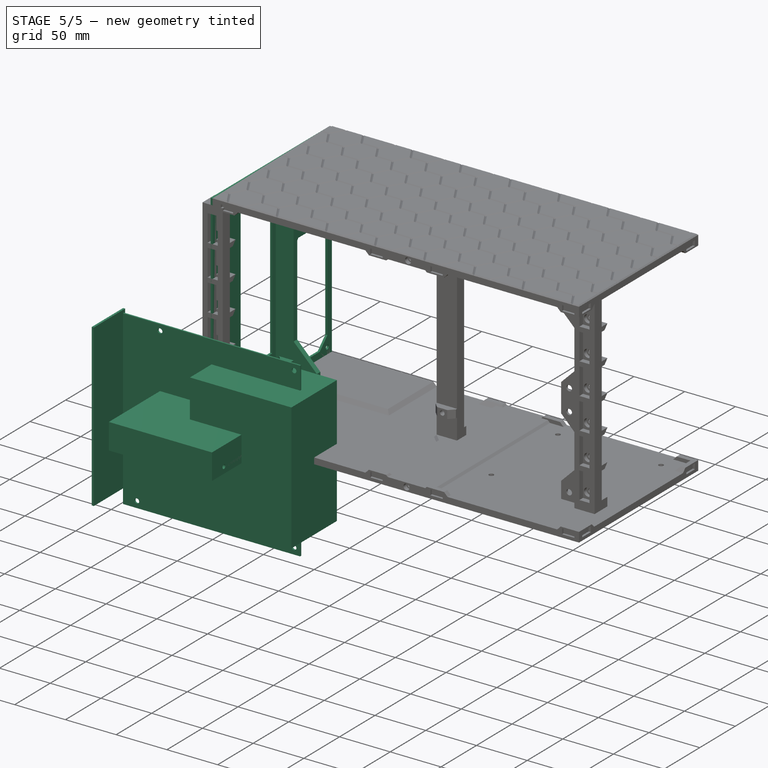
[diagram: stage 5 of 5 — iso view after this stage's code; geometry added in this stage tinted green]
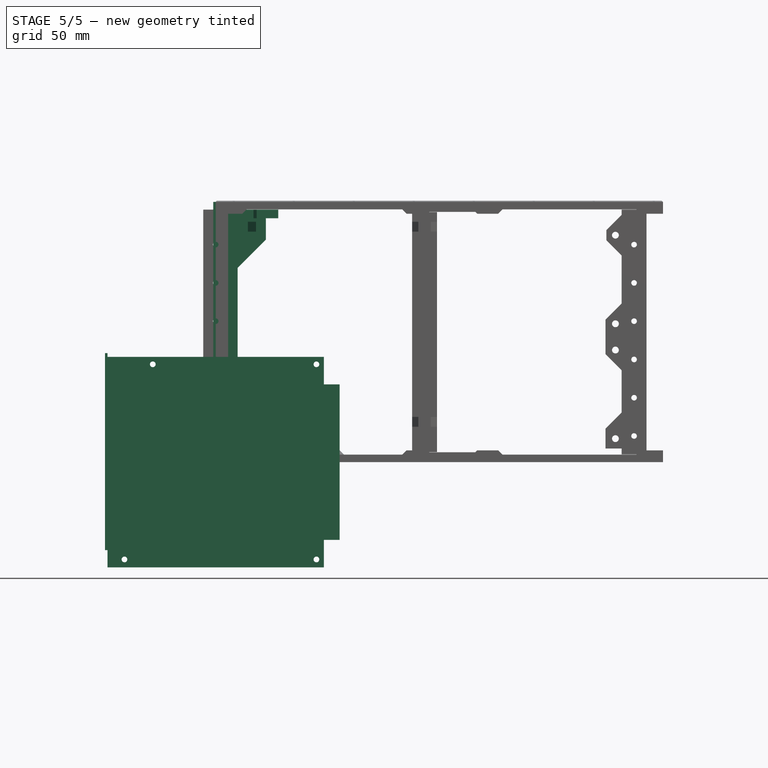
[diagram: stage 5 of 5 — front view after this stage's code; geometry added in this stage tinted green]
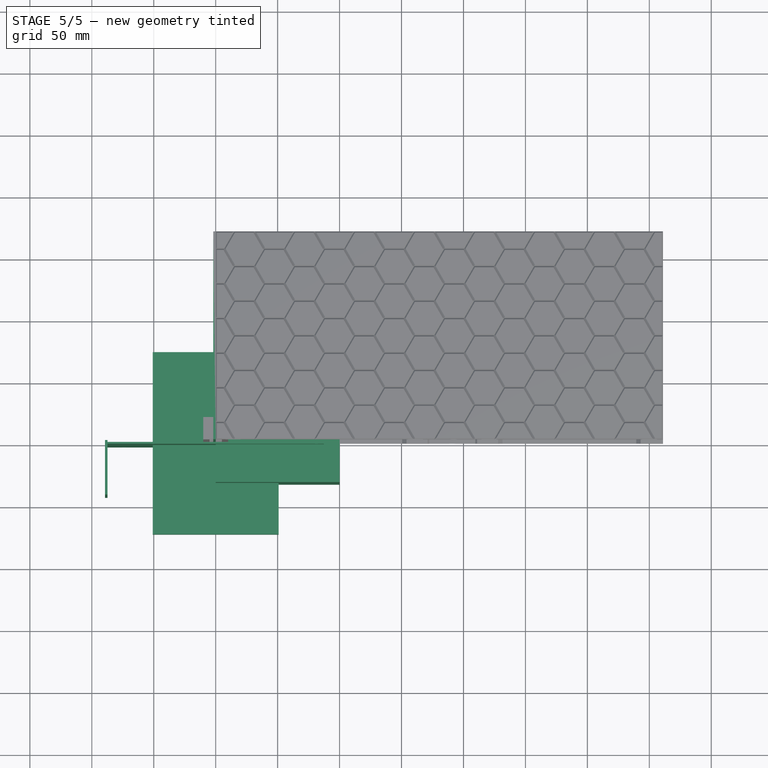
[diagram: stage 5 of 5 — top view after this stage's code; geometry added in this stage tinted green]
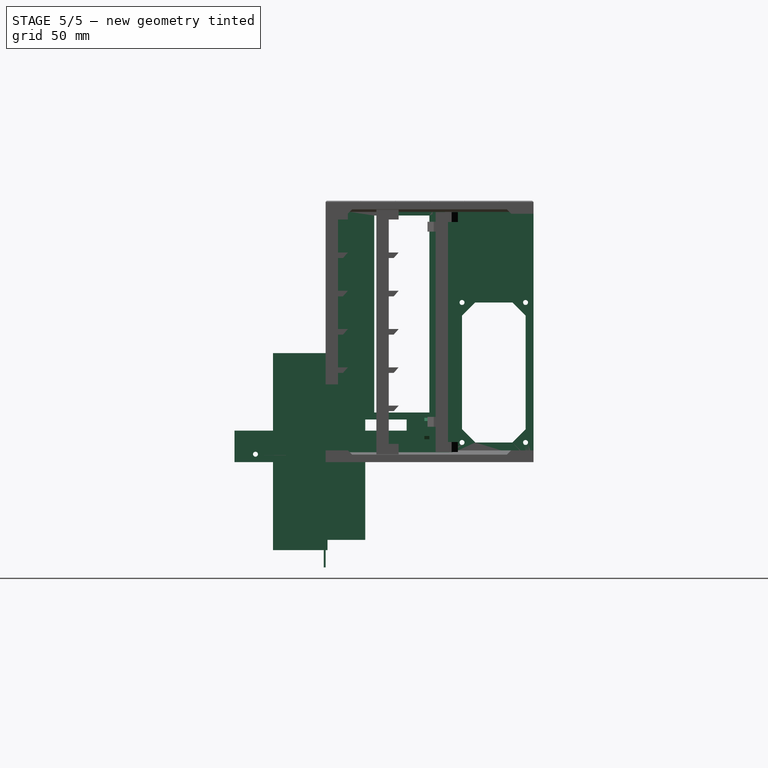
[diagram: stage 5 of 5 — right view after this stage's code; geometry added in this stage tinted green]
FEATURE [Sketcher::SketchObject] Sketch
  ArcFitTolerance = 1e-06
  AttachmentSupport = -> [YZ_Plane]
  FullyConstrained = true
  MakeInternals = false
  MapMode = 5
  Placement = pos=(0,0,0) rot=(0.57735,0.57735,0.57735;2.0944rad)
  sketch-geometry (50):
    g0: LineSegment StartX=0 StartY=0 StartZ=0 EndX=167.76 EndY=0 EndZ=0
    g1: LineSegment StartX=167.76 StartY=0 StartZ=0 EndX=167.76 EndY=210 EndZ=0
    g2: LineSegment StartX=167.76 StartY=210 StartZ=0 EndX=0 EndY=210 EndZ=0
    g3: LineSegment [constr] StartX=0 StartY=9.5 StartZ=0 EndX=167.76 EndY=9.5 EndZ=0
    g4: LineSegment [constr] StartX=0 StartY=204 StartZ=0 EndX=167.76 EndY=204 EndZ=0
    g5: LineSegment [constr] StartX=88.76 StartY=210 StartZ=0 EndX=88.76 EndY=0 EndZ=0
    g6: LineSegment [constr] StartX=93.76 StartY=0 StartZ=0 EndX=93.76 EndY=210 EndZ=0
    g7: LineSegment StartX=39.31 StartY=199 StartZ=0 EndX=39.31 EndY=40 EndZ=0
    g8: LineSegment StartX=39.31 StartY=40 StartZ=0 EndX=83.76 EndY=40 EndZ=0
    g9: LineSegment StartX=83.76 StartY=40 StartZ=0 EndX=83.76 EndY=199 EndZ=0
    g10: LineSegment StartX=83.76 StartY=199 StartZ=0 EndX=39.31 EndY=199 EndZ=0
    g11: LineSegment StartX=0 StartY=210 StartZ=0 EndX=0 EndY=34.36 EndZ=0
    g12: LineSegment StartX=0 StartY=34.36 StartZ=0 EndX=8 EndY=34.36 EndZ=0
    g13: LineSegment StartX=8 StartY=34.36 StartZ=0 EndX=8 EndY=13.86 EndZ=0
    g14: LineSegment StartX=8 StartY=13.86 StartZ=0 EndX=0 EndY=13.86 EndZ=0
    g15: LineSegment StartX=0 StartY=13.86 StartZ=0 EndX=0 EndY=0 EndZ=0
    g16: GeomPoint X=135.76 Y=72.35 Z=0
    g17: LineSegment [constr] StartX=110.11 StartY=15.85 StartZ=0 EndX=161.41 EndY=15.85 EndZ=0
    g18: LineSegment [constr] StartX=161.41 StartY=15.85 StartZ=0 EndX=161.41 EndY=128.85 EndZ=0
    g19: LineSegment [constr] StartX=161.41 StartY=128.85 StartZ=0 EndX=110.11 EndY=128.85 EndZ=0
    g20: LineSegment [constr] StartX=110.11 StartY=128.85 StartZ=0 EndX=110.11 EndY=15.85 EndZ=0
    g21: GeomPoint [constr] X=135.76 Y=72.35 Z=0
    g22: LineSegment StartX=110.11 StartY=118.2 StartZ=0 EndX=120.76 EndY=128.85 EndZ=0
    g23: LineSegment StartX=120.76 StartY=128.85 StartZ=0 EndX=150.76 EndY=128.85 EndZ=0
    g24: LineSegment StartX=150.76 StartY=128.85 StartZ=0 EndX=161.41 EndY=118.2 EndZ=0
    g25: LineSegment StartX=161.41 StartY=118.2 StartZ=0 EndX=161.41 EndY=26.5 EndZ=0
    g26: LineSegment StartX=161.41 StartY=26.5 StartZ=0 EndX=150.76 EndY=15.85 EndZ=0
    g27: LineSegment StartX=150.76 StartY=15.85 StartZ=0 EndX=120.76 EndY=15.85 EndZ=0
    g28: LineSegment StartX=120.76 StartY=15.85 StartZ=0 EndX=110.11 EndY=26.5 EndZ=0
    g29: LineSegment StartX=110.11 StartY=26.5 StartZ=0 EndX=110.11 EndY=118.2 EndZ=0
    g30: Circle CenterX=110.11 CenterY=128.85 CenterZ=0 NormalX=0 NormalY=0 NormalZ=1 AngleXU=0 Radius=2
    g31: Circle CenterX=161.41 CenterY=128.85 CenterZ=0 NormalX=0 NormalY=0 NormalZ=1 AngleXU=0 Radius=2
    g32: Circle CenterX=161.41 CenterY=15.85 CenterZ=0 NormalX=0 NormalY=0 NormalZ=1 AngleXU=0 Radius=2
    g33: Circle CenterX=110.11 CenterY=15.85 CenterZ=0 NormalX=0 NormalY=0 NormalZ=1 AngleXU=0 Radius=2
    g34: LineSegment StartX=65.35 StartY=34.36 StartZ=0 EndX=18 EndY=34.36 EndZ=0
    g35: LineSegment StartX=18 StartY=34.36 StartZ=0 EndX=18 EndY=19.94 EndZ=0
    g36: LineSegment StartX=18 StartY=19.94 StartZ=0 EndX=65.35 EndY=19.94 EndZ=0
    g37: LineSegment StartX=65.35 StartY=19.94 StartZ=0 EndX=65.35 EndY=34.36 EndZ=0
    g38: Circle CenterX=4 CenterY=4 CenterZ=0 NormalX=0 NormalY=0 NormalZ=1 AngleXU=0 Radius=1.75
    g39: Circle CenterX=163.76 CenterY=4 CenterZ=0 NormalX=0 NormalY=0 NormalZ=1 AngleXU=0 Radius=1.75
    g40: Circle CenterX=22 CenterY=4 CenterZ=0 NormalX=0 NormalY=0 NormalZ=1 AngleXU=0 Radius=1.75
    g41: Circle CenterX=4 CenterY=206 CenterZ=0 NormalX=0 NormalY=0 NormalZ=1 AngleXU=0 Radius=1.75
    g42: Circle CenterX=163.76 CenterY=206 CenterZ=0 NormalX=0 NormalY=0 NormalZ=1 AngleXU=0 Radius=1.75
    g43: Circle CenterX=91.26 CenterY=206 CenterZ=0 NormalX=0 NormalY=0 NormalZ=1 AngleXU=0 Radius=1.75
    g44: Circle CenterX=91.26 CenterY=4 CenterZ=0 NormalX=0 NormalY=0 NormalZ=1 AngleXU=0 Radius=1.75
    g45: LineSegment [constr] StartX=103.76 StartY=9.6 StartZ=0 EndX=167.76 EndY=9.6 EndZ=0
    g46: LineSegment [constr] StartX=167.76 StartY=9.6 StartZ=0 EndX=167.76 EndY=135.1 EndZ=0
    g47: LineSegment [constr] StartX=167.76 StartY=135.1 StartZ=0 EndX=103.76 EndY=135.1 EndZ=0
    g48: LineSegment [constr] StartX=103.76 StartY=135.1 StartZ=0 EndX=103.76 EndY=9.6 EndZ=0
    g49: GeomPoint [constr] X=135.76 Y=72.35 Z=0
  constraints (142):
    c: Coincident(g0,g1)
    c: Coincident(g1,g2)
    c: Coincident(g2,g11)
    c: Coincident(g15,g0)
    c: Horizontal(g0)
    c: Horizontal(g2)
    c: Vertical(g1)
    c: Coincident(g0,g-1)
    c: PointOnObject(g3,g1)
    c: Horizontal(g3)
    c: DistanceY(g0,g3) = 9.5
    c: PointOnObject(g4,g1)
    c: Horizontal(g4)
    c: DistanceY(g4,g1) = 6
    c: PointOnObject(g5,g2)
    c: PointOnObject(g5,g0)
    c: Vertical(g5)
    c: PointOnObject(g6,g0)
    c: PointOnObject(g6,g2)
    c: Vertical(g6)
    c: DistanceX(g5,g6) = 5
    c: Coincident(g7,g8)
    c: Coincident(g8,g9)
    c: Coincident(g9,g10)
    c: Coincident(g10,g7)
    c: Vertical(g7)
    c: Vertical(g9)
    c: Horizontal(g8)
    c: Horizontal(g10)
    c: DistanceY(g7,g4) = 5
    c: DistanceX(g7,g9) = 44.45
    c: DistanceX(g9,g5) = 5
    c: DistanceY(g7,g7) = 159
    c: Coincident(g11,g12)
    c: Vertical(g11)
    c: PointOnObject(g3,g11)
    c: PointOnObject(g4,g11)
    c: Coincident(g12,g13)
    c: Coincident(g13,g14)
    c: Vertical(g13)
    c: Coincident(g14,g15)
    c: Vertical(g15)
    c: Horizontal(g12)
    c: Horizontal(g14)
    c: Equal(g12,g14)
    c: DistanceX(g14,g14) = 8
    c: DistanceX(g13,g5) = 80.76
    c: DistanceY(g13,g13) = 20.5
    c: DistanceY(g0,g2) = 210
    c: Coincident(g17,g18)
    c: Coincident(g18,g19)
    c: Coincident(g19,g20)
    c: Coincident(g20,g17)
    c: Horizontal(g17)
    c: Horizontal(g19)
    c: Vertical(g18)
    c: Vertical(g20)
    c: Symmetric(g19,g17,g21)
    c: Coincident(g21,g16)
    c: DistanceY(g18,g18) = 113
    c: DistanceX(g19,g19) = 51.3
    c: PointOnObject(g22,g20)
    c: PointOnObject(g22,g19)
    c: Coincident(g22,g23)
    c: PointOnObject(g23,g19)
    c: Coincident(g23,g24)
    c: PointOnObject(g24,g18)
    c: Coincident(g24,g25)
    c: PointOnObject(g25,g18)
    c: Coincident(g25,g26)
    c: PointOnObject(g26,g17)
    c: Coincident(g26,g27)
    c: PointOnObject(g27,g17)
    c: Coincident(g27,g28)
    c: PointOnObject(g28,g20)
    c: Coincident(g28,g29)
    c: Coincident(g29,g22)
    c: Angle(g19,g22) = 0.785398
    c: Angle(g24,g19) = 0.785398
    c: Angle(g17,g26) = 0.785398
    c: Angle(g28,g17) = 0.785398
    c: Equal(g22,g24)
    c: Equal(g24,g26)
    c: Equal(g26,g28)
    c: DistanceX(g23,g23) = 30
    c: Diameter(g30) = 4
    c: Coincident(g30,g19)
    c: Coincident(g31,g18)
    c: Coincident(g32,g17)
    c: Coincident(g33,g17)
    c: Equal(g33,g32)
    c: Equal(g32,g31)
    c: Equal(g31,g30)
    c: Coincident(g34,g35)
    c: Coincident(g35,g36)
    c: Coincident(g36,g37)
    c: Coincident(g37,g34)
    c: Horizontal(g34)
    c: Horizontal(g36)
    c: Vertical(g35)
    c: Vertical(g37)
    c: PointOnObject(g12,g34)
    c: Distance(g7,g34) = 5.64
    c: Distance(g34,g5) = 23.41
    c: DistanceX(g12,g34) = 10
    c: DistanceY(g37,g37) = 14.42
    c: Distance(g38,g0) = 4
    c: Diameter(g38) = 3.5
    c: Diameter(g39) = 3.5
    c: Distance(g39,g1) = 4
    c: Distance(g39,g0) = 4
    c: Distance(g38,g15) = 4
    c: Diameter(g40) = 3.5
    c: Distance(g40,g0) = 4
    c: DistanceX(g38,g40) = 18
    c: Diameter(g41) = 3.5
    c: Distance(g41,g2) = 4
    c: Distance(g41,g11) = 4
    c: Diameter(g42) = 3.5
    c: Distance(g42,g2) = 4
    c: Distance(g42,g1) = 4
    c: Diameter(g43) = 3.5
    c: Distance(g43,g5) = 2.5
    c: Distance(g43,g2) = 4
    c: Diameter(g44) = 3.5
    c: Distance(g44,g5) = 2.5
    c: Distance(g44,g0) = 4
    c: Coincident(g45,g46)
    c: Coincident(g46,g47)
    c: Coincident(g47,g48)
    c: Coincident(g48,g45)
    c: Horizontal(g45)
    c: Horizontal(g47)
    c: Vertical(g46)
    c: Vertical(g48)
    c: Symmetric(g47,g45,g49)
    c: Distance(g46,g48) = 64
    c: Distance(g45,g47) = 125.5
    c: PointOnObject(g45,g1)
    c: Coincident(g49,g16)
    c: DistanceY(g3,g45) = 0.1
    c: Distance(g45,g6) = 10
FEATURE [PartDesign::Pad] Pad
  Direction = (1,0,0)
  Length = 2
  Length2 = 10
  Placement = pos=(0,0,0) rot=(1,1,1;2.0944rad)
  Profile = -> Sketch
  ReferenceAxis = -> Sketch [N_Axis]
  Refine = true
  Reversed = true
  Suppressed = false
  Type = 0
FEATURE [PartDesign::Plane] DatumPlane
  AttachmentOffset = pos=(0,0,-10) rot=(0,0,1;0rad)
  AttachmentSupport = -> [Pad]
  Length = 261.644
  MapMode = 5
  Placement = pos=(1.84e-14,93.76,0) rot=(0.57735,0.57735,-0.57735;2.0944rad)
  ResizeMode = 0
  Width = 102.164
FEATURE [Sketcher::SketchObject] Sketch001
  ArcFitTolerance = 1e-06
  AttachmentSupport = -> [DatumPlane]
  ExternalGeometry = -> [Pad]
  FullyConstrained = true
  MakeInternals = false
  MapMode = 5
  Placement = pos=(1.84e-14,93.76,0) rot=(0.57735,0.57735,-0.57735;2.0944rad)
  sketch-geometry (26):
    g0: LineSegment [constr] StartX=-210 StartY=-1.84e-14 StartZ=0 EndX=-210 EndY=100 EndZ=0
    g1: LineSegment [constr] StartX=-202 StartY=8 StartZ=0 EndX=-202 EndY=0 EndZ=0
    g2: LineSegment [constr] StartX=-202 StartY=0 StartZ=0 EndX=-210 EndY=-1.84e-14 EndZ=0
    g3: LineSegment [constr] StartX=0 StartY=0 StartZ=0 EndX=0 EndY=100 EndZ=0
    g4: LineSegment [constr] StartX=-8 StartY=8 StartZ=0 EndX=-8 EndY=0 EndZ=0
    g5: LineSegment [constr] StartX=-8 StartY=0 StartZ=0 EndX=0 EndY=0 EndZ=0
    g6: LineSegment StartX=-201.5 StartY=0 StartZ=0 EndX=-201.5 EndY=8.20711 EndZ=0
    g7: LineSegment StartX=-201.5 StartY=8.20711 StartZ=0 EndX=-203.8 EndY=10.5071 EndZ=0
    g8: LineSegment StartX=-203.8 StartY=10.5071 StartZ=0 EndX=-203.8 EndY=40.52 EndZ=0
    g9: LineSegment StartX=-203.8 StartY=40.52 StartZ=0 EndX=-179.5 EndY=40.52 EndZ=0
    g10: LineSegment StartX=-179.5 StartY=40.52 StartZ=0 EndX=-156.64 EndY=17.66 EndZ=0
    g11: LineSegment StartX=-156.64 StartY=17.66 StartZ=0 EndX=-53.36 EndY=17.66 EndZ=0
    g12: LineSegment StartX=-53.36 StartY=17.66 StartZ=0 EndX=-30.5 EndY=40.52 EndZ=0
    g13: LineSegment StartX=-30.5 StartY=40.52 StartZ=0 EndX=-6.2 EndY=40.52 EndZ=0
    g14: LineSegment StartX=-6.2 StartY=40.52 StartZ=0 EndX=-6.2 EndY=10.5071 EndZ=0
    g15: LineSegment StartX=-6.2 StartY=10.5071 StartZ=0 EndX=-8.5 EndY=8.20711 EndZ=0
    g16: LineSegment StartX=-8.5 StartY=8.20711 StartZ=0 EndX=-8.5 EndY=0 EndZ=0
    g17: LineSegment StartX=-8.5 StartY=0 StartZ=0 EndX=-201.5 EndY=0 EndZ=0
    g18: Circle [constr] CenterX=-190 CenterY=36.52 CenterZ=0 NormalX=0 NormalY=0 NormalZ=1 AngleXU=0 Radius=2.3
    g19: Circle [constr] CenterX=-32.5 CenterY=13.66 CenterZ=0 NormalX=0 NormalY=0 NormalZ=1 AngleXU=0 Radius=2.3
    g20: LineSegment [constr] StartX=-204 StartY=10 StartZ=0 EndX=-202 EndY=8 EndZ=0
    g21: LineSegment [constr] StartX=-210 StartY=100 StartZ=0 EndX=-204 EndY=100 EndZ=0
    g22: LineSegment [constr] StartX=-204 StartY=100 StartZ=0 EndX=-204 EndY=10 EndZ=0
    g23: LineSegment [constr] StartX=-6 StartY=10 StartZ=0 EndX=-8 EndY=8 EndZ=0
    g24: LineSegment [constr] StartX=0 StartY=100 StartZ=0 EndX=-6 EndY=100 EndZ=0
    g25: LineSegment [constr] StartX=-6 StartY=100 StartZ=0 EndX=-6 EndY=10 EndZ=0
  constraints (76):
    c: Coincident(g0,g-5)
    c: Vertical(g0)
    c: Coincident(g0,g21)
    c: Coincident(g20,g1)
    c: PointOnObject(g1,g-1)
    c: Vertical(g1)
    c: Coincident(g1,g2)
    c: Coincident(g2,g0)
    c: DistanceX(g0,g1) = 8
    c: DistanceY(g1,g1) = 8
    c: Coincident(g-1,g3)
    c: Coincident(g3,g24)
    c: Coincident(g23,g4)
    c: PointOnObject(g4,g-1)
    c: Vertical(g4)
    c: Coincident(g4,g5)
    c: Coincident(g5,g3)
    c: DistanceX(g5,g5) = 8
    c: DistanceY(g4,g4) = 8
    c: PointOnObject(g6,g-1)
    c: Vertical(g6)
    c: Coincident(g6,g7)
    c: Coincident(g7,g8)
    c: Vertical(g8)
    c: Coincident(g8,g9)
    c: Horizontal(g9)
    c: Coincident(g9,g10)
    c: Coincident(g10,g11)
    c: Horizontal(g11)
    c: Coincident(g11,g12)
    c: Coincident(g12,g13)
    c: Horizontal(g13)
    c: Coincident(g13,g14)
    c: Coincident(g14,g15)
    c: Coincident(g15,g16)
    c: PointOnObject(g16,g-1)
    c: Coincident(g16,g17)
    c: Coincident(g17,g6)
    c: Vertical(g16)
    c: Distance(g6,g1) = 0.5
    c: Distance(g16,g4) = 0.5
    c: PointOnObject(g12,g9)
    c: Angle(g11,g10) = 2.35619
    c: Angle(g12,g11) = 2.35619
    c: Equal(g9,g13)
    c: Diameter(g18) = 4.6
    c: Diameter(g19) = 4.6
    c: DistanceY(g-3,g19) = 13.66
    c: DistanceX(g-3,g19) = 7.5
    c: DistanceY(g19,g18) = 22.86
    c: Distance(g18,g9) = 4
    c: Distance(g19,g11) = 4
    c: DistanceX(g18,g9) = 10.5
    c: Vertical(g14)
    c: PointOnObject(g3,g-2)
    c: DistanceX(g18,g19) = 157.5
    c: Coincident(g22,g20)
    c: Parallel(g7,g20)
    c: Angle(g20,g1) = 2.35619
    c: Distance(g6,g20) = 0.5
    c: Coincident(g21,g22)
    c: Vertical(g22)
    c: Horizontal(g21)
    c: DistanceX(g21,g21) = 6
    c: Distance(g8,g22) = 0.2
    c: DistanceY(g0,g0) = 100
    c: Coincident(g25,g23)
    c: Parallel(g23,g15)
    c: Angle(g4,g23) = 2.35619
    c: Distance(g4,g15) = 0.5
    c: Coincident(g24,g25)
    c: Vertical(g25)
    c: Horizontal(g24)
    c: DistanceY(g3,g3) = 100
    c: DistanceX(g24,g24) = 6
    c: Distance(g13,g25) = 0.2
FEATURE [PartDesign::Pad] Pad001
  BaseFeature = -> Pad
  Direction = (0,-1,0)
  Length = 5
  Length2 = 10
  Placement = pos=(0,0,0) rot=(1,1,1;2.0944rad)
  Profile = -> Sketch001
  ReferenceAxis = -> Sketch001 [N_Axis]
  Refine = true
  Suppressed = false
  Type = 0
FEATURE [Sketcher::SketchObject] Sketch002
  ArcFitTolerance = 1e-06
  AttachmentSupport = -> [Pad001]
  ExternalGeometry = -> [Pad001]
  FullyConstrained = true
  MakeInternals = false
  MapMode = 5
  Placement = pos=(0,88.76,0) rot=(0.57735,0.57735,-0.57735;2.0944rad)
  sketch-geometry (12):
    g0: Circle CenterX=-190 CenterY=36.52 CenterZ=0 NormalX=0 NormalY=0 NormalZ=1 AngleXU=0 Radius=2.3
    g1: Circle CenterX=-32.5 CenterY=13.66 CenterZ=0 NormalX=0 NormalY=0 NormalZ=1 AngleXU=0 Radius=2.3
    g2: LineSegment StartX=-194 StartY=32.52 StartZ=0 EndX=-186 EndY=32.52 EndZ=0
    g3: LineSegment StartX=-186 StartY=32.52 StartZ=0 EndX=-186 EndY=40.52 EndZ=0
    g4: LineSegment StartX=-186 StartY=40.52 StartZ=0 EndX=-194 EndY=40.52 EndZ=0
    g5: LineSegment StartX=-194 StartY=40.52 StartZ=0 EndX=-194 EndY=32.52 EndZ=0
    g6: GeomPoint [constr] X=-190 Y=36.52 Z=0
    g7: LineSegment StartX=-36.5 StartY=9.66 StartZ=0 EndX=-28.5 EndY=9.66 EndZ=0
    g8: LineSegment StartX=-28.5 StartY=9.66 StartZ=0 EndX=-28.5 EndY=17.66 EndZ=0
    g9: LineSegment StartX=-28.5 StartY=17.66 StartZ=0 EndX=-36.5 EndY=17.66 EndZ=0
    g10: LineSegment StartX=-36.5 StartY=17.66 StartZ=0 EndX=-36.5 EndY=9.66 EndZ=0
    g11: GeomPoint [constr] X=-32.5 Y=13.66 Z=0
  constraints (30):
    c: Diameter(g0) = 4.6
    c: Diameter(g1) = 4.6
    c: DistanceX(g-3,g1) = 7.5
    c: DistanceY(g-3,g1) = 13.66
    c: DistanceY(g1,g0) = 22.86
    c: DistanceX(g0,g1) = 157.5
    c: Coincident(g2,g3)
    c: Coincident(g3,g4)
    c: Coincident(g4,g5)
    c: Coincident(g5,g2)
    c: Horizontal(g2)
    c: Horizontal(g4)
    c: Vertical(g3)
    c: Vertical(g5)
    c: Symmetric(g4,g2,g6)
    c: Distance(g3,g5) = 8
    c: Distance(g2,g4) = 8
    c: Coincident(g6,g0)
    c: Coincident(g7,g8)
    c: Coincident(g8,g9)
    c: Coincident(g9,g10)
    c: Coincident(g10,g7)
    c: Horizontal(g7)
    c: Horizontal(g9)
    c: Vertical(g8)
    c: Vertical(g10)
    c: Symmetric(g9,g7,g11)
    c: Distance(g8,g10) = 8
    c: Distance(g7,g9) = 8
    c: Coincident(g11,g1)
FEATURE [PartDesign::Pad] Pad002
  BaseFeature = -> Pad001
  Direction = (0,-1,0)
  Length = 6.5
  Length2 = 10
  Placement = pos=(0,0,0) rot=(1,1,1;2.0944rad)
  Profile = -> Sketch002
  ReferenceAxis = -> Sketch002 [N_Axis]
  Refine = true
  Suppressed = false
  Type = 0
FEATURE [PartDesign::Draft] Draft
  Angle = 45
  Base = -> Pad002 [Face50,Face56]
  BaseFeature = -> Pad002
  NeutralPlane = -> Pad002 [Face58]
  Placement = pos=(0,0,0) rot=(1,1,1;2.0944rad)
  Refine = true
  Reversed = true
  SupportTransform = false
  Suppressed = false
FEATURE [Sketcher::SketchObject] Sketch003
  ArcFitTolerance = 1e-06
  AttachmentSupport = -> [Draft]
  ExternalGeometry = -> [Draft]
  FullyConstrained = true
  MakeInternals = false
  MapMode = 5
  Placement = pos=(0,4.48e-14,203.8) rot=(0,0,-1;1.5708rad)
  sketch-geometry (7):
    g0: Circle CenterX=-91.26 CenterY=45.52 CenterZ=0 NormalX=0 NormalY=0 NormalZ=1 AngleXU=0 Radius=1.75
    g1: LineSegment StartX=-93.76 StartY=30.52 StartZ=0 EndX=-96.26 EndY=33.02 EndZ=0
    g2: LineSegment StartX=-96.26 StartY=33.02 StartZ=0 EndX=-96.26 EndY=50.52 EndZ=0
    g3: LineSegment StartX=-96.26 StartY=50.52 StartZ=0 EndX=-86.26 EndY=50.52 EndZ=0
    g4: LineSegment StartX=-86.26 StartY=50.52 StartZ=0 EndX=-86.26 EndY=33.02 EndZ=0
    g5: LineSegment StartX=-86.26 StartY=33.02 StartZ=0 EndX=-88.76 EndY=30.52 EndZ=0
    g6: LineSegment StartX=-88.76 StartY=30.52 StartZ=0 EndX=-93.76 EndY=30.52 EndZ=0
  constraints (21):
    c: Diameter(g0) = 3.5
    c: DistanceX(g-4,g0) = 2.5
    c: DistanceY(g-4,g0) = 5
    c: PointOnObject(g1,g-4)
    c: Coincident(g1,g2)
    c: Coincident(g2,g3)
    c: Horizontal(g3)
    c: Coincident(g3,g4)
    c: Vertical(g4)
    c: Coincident(g4,g5)
    c: PointOnObject(g5,g-5)
    c: Coincident(g5,g6)
    c: Coincident(g6,g1)
    c: Angle(g-4,g1) = 0.785398
    c: Angle(g5,g-5) = 0.785398
    c: Horizontal(g6)
    c: Vertical(g2)
    c: DistanceX(g3,g3) = 10
    c: Equal(g5,g1)
    c: Distance(g0,g3) = 5
    c: DistanceY(g5,g-5) = 10
FEATURE [PartDesign::Pad] Pad003
  BaseFeature = -> Draft
  Direction = (0,0,1)
  Length = 7
  Length2 = 10
  Placement = pos=(0,0,0) rot=(1,1,1;2.0944rad)
  Profile = -> Sketch003
  ReferenceAxis = -> Sketch003 [N_Axis]
  Refine = true
  Reversed = true
  Suppressed = false
  Type = 0
FEATURE [Sketcher::SketchObject] Sketch004
  ArcFitTolerance = 1e-06
  AttachmentSupport = -> [Pad003]
  ExternalGeometry = -> [Pad003]
  FullyConstrained = true
  MakeInternals = false
  MapMode = 5
  Placement = pos=(0,1.4e-15,6.2) rot=(0.707107,0.707107,0;3.14159rad)
  sketch-geometry (7):
    g0: LineSegment StartX=88.76 StartY=30.52 StartZ=0 EndX=86.26 EndY=33.02 EndZ=0
    g1: LineSegment StartX=86.26 StartY=33.02 StartZ=0 EndX=86.26 EndY=50.52 EndZ=0
    g2: LineSegment StartX=86.26 StartY=50.52 StartZ=0 EndX=96.26 EndY=50.52 EndZ=0
    g3: LineSegment StartX=96.26 StartY=50.52 StartZ=0 EndX=96.26 EndY=33.02 EndZ=0
    g4: LineSegment StartX=96.26 StartY=33.02 StartZ=0 EndX=93.76 EndY=30.52 EndZ=0
    g5: LineSegment StartX=93.76 StartY=30.52 StartZ=0 EndX=88.76 EndY=30.52 EndZ=0
    g6: Circle CenterX=91.26 CenterY=45.52 CenterZ=0 NormalX=0 NormalY=0 NormalZ=1 AngleXU=0 Radius=1.75
  constraints (21):
    c: PointOnObject(g0,g-5)
    c: Coincident(g0,g1)
    c: Coincident(g1,g2)
    c: Horizontal(g2)
    c: Coincident(g2,g3)
    c: Vertical(g3)
    c: Coincident(g3,g4)
    c: PointOnObject(g4,g-4)
    c: Coincident(g4,g5)
    c: Coincident(g5,g0)
    c: Horizontal(g5)
    c: Vertical(g1)
    c: Angle(g4,g-4) = 0.785398
    c: Angle(g-5,g0) = 0.785398
    c: Equal(g0,g4)
    c: DistanceX(g2,g2) = 10
    c: DistanceY(g4,g-4) = 10
    c: Diameter(g6) = 3.5
    c: DistanceX(g-5,g6) = 2.5
    c: DistanceY(g-5,g6) = 5
    c: Distance(g6,g2) = 5
FEATURE [PartDesign::Pad] Pad004
  BaseFeature = -> Pad003
  Direction = (0,0,-1)
  Length = 7
  Length2 = 10
  Placement = pos=(0,0,0) rot=(1,1,1;2.0944rad)
  Profile = -> Sketch004
  ReferenceAxis = -> Sketch004 [N_Axis]
  Refine = true
  Reversed = true
  Suppressed = false
  Type = 0
FEATURE [PartDesign::Hole] Hole
  BaseFeature = -> Pad004
  CustomThreadClearance = 0
  Depth = 3
  DepthType = 0
  Diameter = 6
  DrillForDepth = false
  DrillPoint = 0
  DrillPointAngle = 118
  HoleCutCountersinkAngle = 90
  HoleCutCustomValues = false
  HoleCutDepth = 0
  HoleCutDiameter = 6.1
  HoleCutType = 0
  ModelThread = false
  Placement = pos=(0,0,0) rot=(1,1,1;2.0944rad)
  Profile = -> Pad004 [Edge179]
  Refine = true
  Reversed = true
  Suppressed = false
  Tapered = false
  TaperedAngle = 90
  ThreadClass = 0
  ThreadDepth = 3
  ThreadDepthType = 0
  ThreadDirection = 0
  ThreadFit = 0
  ThreadSize = 0
  ThreadType = 0
  Threaded = false
  UseCustomThreadClearance = false
FEATURE [PartDesign::Hole] Hole001
  BaseFeature = -> Hole
  CustomThreadClearance = 0
  Depth = 3
  DepthType = 0
  Diameter = 6
  DrillForDepth = false
  DrillPoint = 0
  DrillPointAngle = 118
  HoleCutCountersinkAngle = 90
  HoleCutCustomValues = false
  HoleCutDepth = 0
  HoleCutDiameter = 6.1
  HoleCutType = 0
  ModelThread = false
  Placement = pos=(0,0,0) rot=(1,1,1;2.0944rad)
  Profile = -> Hole [Edge165]
  Refine = true
  Suppressed = false
  Tapered = false
  TaperedAngle = 90
  ThreadClass = 0
  ThreadDepth = 3
  ThreadDepthType = 0
  ThreadDirection = 0
  ThreadFit = 0
  ThreadSize = 0
  ThreadType = 0
  Threaded = false
  UseCustomThreadClearance = false
FEATURE [Sketcher::SketchObject] Sketch005
  ArcFitTolerance = 1e-06
  AttachmentSupport = -> [Hole001]
  ExternalGeometry = -> [Hole001]
  FullyConstrained = true
  MakeInternals = false
  MapMode = 5
  Placement = pos=(1.84e-14,83.76,0) rot=(0.57735,0.57735,-0.57735;2.0944rad)
  sketch-geometry (8):
    g0: LineSegment StartX=-32.5 StartY=0 StartZ=0 EndX=-32.5 EndY=3 EndZ=0
    g1: LineSegment StartX=-32.5 StartY=3 StartZ=0 EndX=-21.8 EndY=3 EndZ=0
    g2: LineSegment StartX=-21.8 StartY=3 StartZ=0 EndX=-21.8 EndY=0 EndZ=0
    g3: LineSegment StartX=-21.8 StartY=0 StartZ=0 EndX=-18.4786 EndY=0 EndZ=0
    g4: LineSegment StartX=-18.4786 StartY=0 StartZ=0 EndX=-21.1044 EndY=3.75 EndZ=0
    g5: LineSegment StartX=-21.1044 StartY=3.75 StartZ=0 EndX=-33.1956 EndY=3.75 EndZ=0
    g6: LineSegment StartX=-33.1956 StartY=3.75 StartZ=0 EndX=-35.8214 EndY=0 EndZ=0
    g7: LineSegment StartX=-35.8214 StartY=0 StartZ=0 EndX=-32.5 EndY=0 EndZ=0
  constraints (24):
    c: PointOnObject(g0,g-1)
    c: Coincident(g0,g1)
    c: Horizontal(g1)
    c: Coincident(g1,g2)
    c: PointOnObject(g2,g-1)
    c: Vertical(g2)
    c: Coincident(g2,g3)
    c: PointOnObject(g3,g-1)
    c: Coincident(g3,g4)
    c: Coincident(g4,g5)
    c: Horizontal(g5)
    c: Coincident(g5,g6)
    c: PointOnObject(g6,g-1)
    c: Coincident(g6,g7)
    c: Coincident(g7,g0)
    c: Vertical(g0)
    c: DistanceX(g1,g1) = 10.7
    c: DistanceX(g-3,g0) = 7.5
    c: DistanceY(g2,g2) = 3
    c: Angle(g7,g6) = 0.959931
    c: Angle(g4,g3) = 0.959931
    c: Distance(g1,g4) = 1
    c: Distance(g0,g6) = 1
    c: Distance(g5,g1) = 0.75
FEATURE [PartDesign::Pad] Pad005
  BaseFeature = -> Hole001
  Direction = (-1e-16,-1,1.9e-15)
  Length = 4
  Length2 = 10
  Placement = pos=(0,0,0) rot=(1,1,1;2.0944rad)
  Profile = -> Sketch005
  ReferenceAxis = -> Sketch005 [N_Axis]
  Refine = true
  Suppressed = false
  Type = 0
FEATURE [PartDesign::Body] Body  label="Backpanel"
  AllowCompound = false
  Group = -> [Sketch,Pad,DatumPlane,Sketch001,Pad001,Sketch002,Pad002,Draft,Sketch003,Pad003,Sketch004,Pad004,Hole,Hole001,Sketch005,Pad005]
  Origin = -> Origin
  Tip = -> Pad005
FEATURE [PartDesign::Plane] DatumPlane001
  AttachmentOffset = pos=(0,0,168.6) rot=(0,0,1;0rad)
  AttachmentSupport = -> [YZ_Plane001]
  Length = 166.334
  MapMode = 5
  Placement = pos=(168.6,0,0) rot=(0.57735,0.57735,0.57735;2.0944rad)
  ResizeMode = 0
  Width = 261.374
FEATURE [Sketcher::SketchObject] Sketch006
  ArcFitTolerance = 1e-06
  AttachmentSupport = -> [DatumPlane001]
  FullyConstrained = true
  MakeInternals = false
  MapMode = 5
  Placement = pos=(168.6,0,0) rot=(0.57735,0.57735,0.57735;2.0944rad)
  sketch-geometry (22):
    g0: LineSegment [constr] StartX=0 StartY=0 StartZ=0 EndX=167.76 EndY=0 EndZ=0
    g1: LineSegment [constr] StartX=167.76 StartY=0 StartZ=0 EndX=167.76 EndY=210 EndZ=0
    g2: LineSegment [constr] StartX=167.76 StartY=210 StartZ=0 EndX=0 EndY=210 EndZ=0
    g3: LineSegment [constr] StartX=0 StartY=210 StartZ=0 EndX=0 EndY=0 EndZ=0
    g4: LineSegment [constr] StartX=0 StartY=8 StartZ=0 EndX=167.76 EndY=8 EndZ=0
    g5: LineSegment [constr] StartX=0 StartY=202 StartZ=0 EndX=167.76 EndY=202 EndZ=0
    g6: LineSegment StartX=88.76 StartY=201.8 StartZ=0 EndX=88.76 EndY=194 EndZ=0
    g7: LineSegment StartX=88.76 StartY=194 StartZ=0 EndX=82.26 EndY=194 EndZ=0
    g8: LineSegment StartX=82.26 StartY=194 StartZ=0 EndX=82.26 EndY=186 EndZ=0
    g9: LineSegment StartX=82.26 StartY=186 StartZ=0 EndX=88.76 EndY=186 EndZ=0
    g10: LineSegment StartX=88.76 StartY=186 StartZ=0 EndX=88.76 EndY=36.5 EndZ=0
    g11: LineSegment StartX=88.76 StartY=36.5 StartZ=0 EndX=82.26 EndY=36.5 EndZ=0
    g12: LineSegment StartX=82.26 StartY=36.5 StartZ=0 EndX=82.26 EndY=28.5 EndZ=0
    g13: LineSegment StartX=82.26 StartY=28.5 StartZ=0 EndX=88.76 EndY=28.5 EndZ=0
    g14: LineSegment StartX=88.76 StartY=28.5 StartZ=0 EndX=88.76 EndY=8.2 EndZ=0
    g15: LineSegment StartX=88.76 StartY=8.2 StartZ=0 EndX=106.76 EndY=8.2 EndZ=0
    g16: LineSegment StartX=106.76 StartY=8.2 StartZ=0 EndX=106.76 EndY=16.2 EndZ=0
    g17: LineSegment StartX=106.76 StartY=16.2 StartZ=0 EndX=98.76 EndY=16.2 EndZ=0
    g18: LineSegment StartX=98.76 StartY=16.2 StartZ=0 EndX=98.76 EndY=193.8 EndZ=0
    g19: LineSegment StartX=98.76 StartY=193.8 StartZ=0 EndX=106.76 EndY=193.8 EndZ=0
    g20: LineSegment StartX=106.76 StartY=193.8 StartZ=0 EndX=106.76 EndY=201.8 EndZ=0
    g21: LineSegment StartX=106.76 StartY=201.8 StartZ=0 EndX=88.76 EndY=201.8 EndZ=0
  constraints (67):
    c: Coincident(g0,g1)
    c: Coincident(g1,g2)
    c: Coincident(g2,g3)
    c: Coincident(g3,g0)
    c: Horizontal(g0)
    c: Horizontal(g2)
    c: Vertical(g1)
    c: Vertical(g3)
    c: Distance(g1,g3) = 167.76
    c: Distance(g0,g2) = 210
    c: Coincident(g0,g-1)
    c: PointOnObject(g4,g3)
    c: PointOnObject(g4,g1)
    c: Horizontal(g4)
    c: PointOnObject(g5,g3)
    c: PointOnObject(g5,g1)
    c: Horizontal(g5)
    c: Distance(g5,g1) = 8
    c: Coincident(g6,g7)
    c: Horizontal(g7)
    c: Coincident(g7,g8)
    c: Vertical(g8)
    c: Coincident(g8,g9)
    c: Coincident(g9,g10)
    c: Vertical(g10)
    c: Coincident(g10,g11)
    c: Coincident(g11,g12)
    c: Vertical(g12)
    c: Coincident(g12,g13)
    c: Coincident(g13,g14)
    c: Vertical(g14)
    c: Coincident(g14,g15)
    c: Coincident(g15,g16)
    c: Vertical(g16)
    c: Coincident(g16,g17)
    c: Coincident(g17,g18)
    c: Vertical(g18)
    c: Coincident(g18,g19)
    c: Coincident(g19,g20)
    c: Coincident(g20,g21)
    c: Coincident(g21,g6)
    c: Horizontal(g21)
    c: Vertical(g6)
    c: Vertical(g20)
    c: Horizontal(g9)
    c: Horizontal(g11)
    c: Horizontal(g13)
    c: Horizontal(g15)
    c: Equal(g20,g16)
    c: Equal(g17,g19)
    c: DistanceY(g8,g8) = 8
    c: DistanceY(g12,g12) = 8
    c: DistanceY(g16,g16) = 8
    c: PointOnObject(g10,g14)
    c: PointOnObject(g9,g6)
    c: DistanceX(g18,g19) = 8
    c: Distance(g10,g18) = 10
    c: DistanceX(g7,g7) = 6.5
    c: DistanceX(g11,g11) = 6.5
    c: DistanceX(g4,g14) = 88.76
    c: Distance(g13,g0) = 28.5
    c: DistanceY(g12,g8) = 157.5
    c: DistanceY(g0,g4) = 8
    c: Distance(g14,g4) = 0.2
    c: Distance(g6,g5) = 0.2
    c: Horizontal(g19)
    c: Horizontal(g17)
FEATURE [Sketcher::SketchObject] Sketch007
  ArcFitTolerance = 1e-06
  AttachmentSupport = -> [XZ_Plane002]
  FullyConstrained = true
  MakeInternals = false
  MapMode = 5
  Placement = pos=(0,0,0) rot=(1,0,0;1.5708rad)
  sketch-geometry (13):
    g0: LineSegment StartX=-87.3 StartY=-84.925 StartZ=0 EndX=87.3 EndY=-84.925 EndZ=0
    g1: LineSegment StartX=87.3 StartY=-84.925 StartZ=0 EndX=87.3 EndY=84.925 EndZ=0
    g2: LineSegment StartX=87.3 StartY=84.925 StartZ=0 EndX=-87.3 EndY=84.925 EndZ=0
    g3: LineSegment StartX=-87.3 StartY=84.925 StartZ=0 EndX=-87.3 EndY=-84.925 EndZ=0
    g4: GeomPoint [constr] X=0 Y=0 Z=0
    g5: Circle CenterX=-73.64 CenterY=-78.575 CenterZ=0 NormalX=0 NormalY=0 NormalZ=1 AngleXU=0 Radius=2.3
    g6: Circle CenterX=81.3 CenterY=-78.575 CenterZ=0 NormalX=0 NormalY=0 NormalZ=1 AngleXU=0 Radius=2.3
    g7: Circle CenterX=81.3 CenterY=78.925 CenterZ=0 NormalX=0 NormalY=0 NormalZ=1 AngleXU=0 Radius=2.3
    g8: Circle CenterX=-50.78 CenterY=78.925 CenterZ=0 NormalX=0 NormalY=0 NormalZ=1 AngleXU=0 Radius=2.3
    g9: LineSegment [constr] StartX=81.3 StartY=78.925 StartZ=0 EndX=-73.64 EndY=78.925 EndZ=0
    g10: LineSegment [constr] StartX=-73.64 StartY=78.925 StartZ=0 EndX=-73.64 EndY=-78.575 EndZ=0
    g11: LineSegment [constr] StartX=-73.64 StartY=-78.575 StartZ=0 EndX=81.3 EndY=-78.575 EndZ=0
    g12: LineSegment [constr] StartX=81.3 StartY=-78.575 StartZ=0 EndX=81.3 EndY=78.925 EndZ=0
  constraints (33):
    c: Coincident(g0,g1)
    c: Coincident(g1,g2)
    c: Coincident(g2,g3)
    c: Coincident(g3,g0)
    c: Horizontal(g0)
    c: Horizontal(g2)
    c: Vertical(g1)
    c: Vertical(g3)
    c: Symmetric(g2,g0,g4)
    c: Coincident(g4,g-1)
    c: Diameter(g5) = 4.6
    c: Equal(g5,g6)
    c: Equal(g6,g7)
    c: Equal(g7,g8)
    c: Coincident(g9,g10)
    c: Coincident(g10,g11)
    c: Coincident(g11,g12)
    c: Coincident(g12,g9)
    c: Horizontal(g9)
    c: Horizontal(g11)
    c: Vertical(g10)
    c: Vertical(g12)
    c: Coincident(g9,g7)
    c: Coincident(g10,g5)
    c: Coincident(g6,g11)
    c: PointOnObject(g8,g9)
    c: DistanceY(g12,g12) = 157.5
    c: DistanceX(g11,g11) = 154.94
    c: DistanceX(g9,g8) = 22.86
    c: Distance(g5,g3) = 13.66
    c: Distance(g5,g0) = 6.35
    c: Distance(g6,g1) = 6
    c: Distance(g7,g2) = 6
FEATURE [PartDesign::Pad] Pad006
  Direction = (0,-1,2e-16)
  Length = 1.5
  Length2 = 10
  Placement = pos=(0,0,0) rot=(1,0,0;1.5708rad)
  Profile = -> Sketch007
  ReferenceAxis = -> Sketch007 [N_Axis]
  Refine = true
  Suppressed = false
  Type = 0
FEATURE [Sketcher::SketchObject] Sketch008
  ArcFitTolerance = 1e-06
  AttachmentSupport = -> [Pad006]
  ExternalGeometry = -> [Pad006]
  FullyConstrained = true
  MakeInternals = false
  MapMode = 5
  Placement = pos=(-87.3,0,0) rot=(0.707107,0,-0.707107;3.14159rad)
  sketch-geometry (5):
    g0: LineSegment StartX=-87.925 StartY=42.5 StartZ=0 EndX=-87.925 EndY=-1.5 EndZ=0
    g1: LineSegment StartX=-87.925 StartY=-1.5 StartZ=0 EndX=71.075 EndY=-1.5 EndZ=0
    g2: LineSegment StartX=71.075 StartY=-1.5 StartZ=0 EndX=71.075 EndY=42.5 EndZ=0
    g3: LineSegment StartX=71.075 StartY=42.5 StartZ=0 EndX=-87.925 EndY=42.5 EndZ=0
    g4: GeomPoint X=78.575 Y=1.74e-14 Z=0
  constraints (13):
    c: Coincident(g0,g1)
    c: Coincident(g1,g2)
    c: Coincident(g2,g3)
    c: Coincident(g3,g0)
    c: Vertical(g0)
    c: Vertical(g2)
    c: Horizontal(g1)
    c: Horizontal(g3)
    c: Symmetric(g-4,g-4,g4)
    c: Distance(g4,g2) = 7.5
    c: Distance(g1,g-3) = 1.5
    c: DistanceY(g0,g0) = 44
    c: DistanceX(g3,g3) = 159
FEATURE [PartDesign::Pad] Pad007
  BaseFeature = -> Pad006
  Direction = (-1,0,-2e-16)
  Length = 2
  Length2 = 10
  Placement = pos=(0,0,0) rot=(1,0,0;1.5708rad)
  Profile = -> Sketch008
  ReferenceAxis = -> Sketch008 [N_Axis]
  Refine = true
  Suppressed = false
  Type = 0
FEATURE [PartDesign::Body] Body002  label="MoBo"
  AllowCompound = false
  Group = -> [Sketch007,Pad006,Sketch008,Pad007]
  Origin = -> Origin002
  Placement = pos=(87.29,82.26,111.08) rot=(0,0,1;0rad)
  Tip = -> Pad007
FEATURE [Sketcher::SketchObject] Sketch042
  ArcFitTolerance = 1e-06
  AttachmentSupport = -> [YZ_Plane009]
  FullyConstrained = true
  MakeInternals = false
  MapMode = 5
  Placement = pos=(0,0,0) rot=(0.57735,0.57735,0.57735;2.0944rad)
  sketch-geometry (6):
    g0: LineSegment StartX=-32 StartY=-62.75 StartZ=0 EndX=32 EndY=-62.75 EndZ=0
    g1: LineSegment StartX=32 StartY=-62.75 StartZ=0 EndX=32 EndY=62.75 EndZ=0
    g2: LineSegment StartX=32 StartY=62.75 StartZ=0 EndX=-32 EndY=62.75 EndZ=0
    g3: LineSegment StartX=-32 StartY=62.75 StartZ=0 EndX=-32 EndY=-62.75 EndZ=0
    g4: GeomPoint [constr] X=0 Y=0 Z=0
    g5: GeomPoint [constr] X=0 Y=0 Z=0
  constraints (13):
    c: Coincident(g0,g1)
    c: Coincident(g1,g2)
    c: Coincident(g2,g3)
    c: Coincident(g3,g0)
    c: Horizontal(g0)
    c: Horizontal(g2)
    c: Vertical(g1)
    c: Vertical(g3)
    c: Symmetric(g2,g0,g4)
    c: Distance(g1,g3) = 64
    c: Distance(g0,g2) = 125.5
    c: Coincident(g4,g-1)
    c: Coincident(g5,g4)
FEATURE [PartDesign::Pad] Pad017
  Direction = (1,0,0)
  Length = 100
  Length2 = 10
  Placement = pos=(0,0,0) rot=(1,1,1;2.0944rad)
  Profile = -> Sketch042
  ReferenceAxis = -> Sketch042 [N_Axis]
  Refine = true
  Suppressed = false
  Type = 0
FEATURE [Sketcher::SketchObject] Sketch043
  ArcFitTolerance = 1e-06
  AttachmentSupport = -> [Pad017]
  FullyConstrained = true
  MakeInternals = false
  MapMode = 5
  Placement = pos=(0,0,0) rot=(0.57735,0.57735,-0.57735;4.18879rad)
  sketch-geometry (9):
    g0: LineSegment [constr] StartX=-25.65 StartY=-56.5 StartZ=0 EndX=25.65 EndY=-56.5 EndZ=0
    g1: LineSegment [constr] StartX=25.65 StartY=-56.5 StartZ=0 EndX=25.65 EndY=56.5 EndZ=0
    g2: LineSegment [constr] StartX=25.65 StartY=56.5 StartZ=0 EndX=-25.65 EndY=56.5 EndZ=0
    g3: LineSegment [constr] StartX=-25.65 StartY=56.5 StartZ=0 EndX=-25.65 EndY=-56.5 EndZ=0
    g4: GeomPoint [constr] X=0 Y=0 Z=0
    g5: Circle CenterX=-25.65 CenterY=-56.5 CenterZ=0 NormalX=0 NormalY=0 NormalZ=1 AngleXU=0 Radius=2
    g6: Circle CenterX=25.65 CenterY=-56.5 CenterZ=0 NormalX=0 NormalY=0 NormalZ=1 AngleXU=0 Radius=2
    g7: Circle CenterX=25.65 CenterY=56.5 CenterZ=0 NormalX=0 NormalY=0 NormalZ=1 AngleXU=0 Radius=2
    g8: Circle CenterX=-25.65 CenterY=56.5 CenterZ=0 NormalX=0 NormalY=0 NormalZ=1 AngleXU=0 Radius=2
  constraints (20):
    c: Coincident(g0,g1)
    c: Coincident(g1,g2)
    c: Coincident(g2,g3)
    c: Coincident(g3,g0)
    c: Horizontal(g0)
    c: Horizontal(g2)
    c: Vertical(g1)
    c: Vertical(g3)
    c: Symmetric(g2,g0,g4)
    c: Distance(g1,g3) = 51.3
    c: Distance(g0,g2) = 113
    c: Coincident(g4,g-1)
    c: Diameter(g5) = 4
    c: Coincident(g5,g0)
    c: Coincident(g6,g0)
    c: Coincident(g7,g1)
    c: Coincident(g8,g2)
    c: Equal(g8,g7)
    c: Equal(g7,g6)
    c: Equal(g6,g5)
FEATURE [PartDesign::Pocket] Pocket
  BaseFeature = -> Pad017
  Direction = (1,0,0)
  Length = 5
  Length2 = 5
  Placement = pos=(0,0,0) rot=(1,1,1;2.0944rad)
  Profile = -> Sketch043
  ReferenceAxis = -> Sketch043 [N_Axis]
  Refine = true
  Suppressed = false
  Type = 0
FEATURE [PartDesign::Plane] DatumPlane002
  AttachmentOffset = pos=(0,0,-2) rot=(0,0,1;0rad)
  AttachmentSupport = -> [YZ_Plane010]
  Length = 61.0995
  MapMode = 5
  Placement = pos=(-2,0,0) rot=(0.57735,0.57735,0.57735;2.0944rad)
  ResizeMode = 0
  Width = 60.0995
FEATURE [Sketcher::SketchObject] Sketch048
  ArcFitTolerance = 1e-06
  AttachmentSupport = -> [DatumPlane002]
  FullyConstrained = true
  MakeInternals = false
  MapMode = 5
  Placement = pos=(-2,0,0) rot=(0.57735,-0.57735,-0.57735;2.0944rad)
  sketch-geometry (11):
    g0: LineSegment StartX=0 StartY=0 StartZ=0 EndX=-26 EndY=0 EndZ=0
    g1: LineSegment StartX=-26 StartY=0 StartZ=0 EndX=-26 EndY=8 EndZ=0
    g2: LineSegment StartX=-26 StartY=8 StartZ=0 EndX=-18.1 EndY=8 EndZ=0
    g3: LineSegment StartX=-18.1 StartY=8 StartZ=0 EndX=-18.1 EndY=21.86 EndZ=0
    g4: LineSegment StartX=-18.1 StartY=21.86 StartZ=0 EndX=-8.1 EndY=21.86 EndZ=0
    g5: LineSegment StartX=-8.1 StartY=21.86 StartZ=0 EndX=-8.1 EndY=8 EndZ=0
    g6: LineSegment StartX=-8.1 StartY=8 StartZ=0 EndX=0 EndY=8 EndZ=0
    g7: LineSegment StartX=0 StartY=8 StartZ=0 EndX=0 EndY=0 EndZ=0
    g8: LineSegment [constr] StartX=-26 StartY=13.86 StartZ=0 EndX=0 EndY=13.86 EndZ=0
    g9: Circle CenterX=-4 CenterY=4 CenterZ=0 NormalX=0 NormalY=0 NormalZ=1 AngleXU=0 Radius=1.75
    g10: Circle CenterX=-22 CenterY=4 CenterZ=0 NormalX=0 NormalY=0 NormalZ=1 AngleXU=0 Radius=1.75
  constraints (33):
    c: Coincident(g-1,g0)
    c: PointOnObject(g0,g-1)
    c: Coincident(g0,g1)
    c: Coincident(g1,g2)
    c: Horizontal(g2)
    c: Coincident(g2,g3)
    c: Vertical(g3)
    c: Coincident(g3,g4)
    c: Horizontal(g4)
    c: Coincident(g4,g5)
    c: Vertical(g5)
    c: Coincident(g5,g6)
    c: PointOnObject(g6,g-2)
    c: Coincident(g6,g7)
    c: Coincident(g7,g0)
    c: Horizontal(g6)
    c: Vertical(g1)
    c: PointOnObject(g5,g2)
    c: DistanceY(g7,g7) = 8
    c: DistanceX(g4,g4) = 10
    c: DistanceX(g6,g6) = 8.1
    c: DistanceX(g2,g2) = 7.9
    c: Horizontal(g8)
    c: PointOnObject(g8,g7)
    c: PointOnObject(g8,g1)
    c: DistanceY(g0,g8) = 13.86
    c: DistanceY(g8,g4) = 8
    c: Diameter(g9) = 3.5
    c: Diameter(g10) = 3.5
    c: DistanceX(g9,g0) = 4
    c: DistanceY(g0,g9) = 4
    c: DistanceX(g0,g10) = 4
    c: DistanceY(g0,g10) = 4
FEATURE [PartDesign::Pad] Pad019
  Direction = (-1,0,0)
  Length = 8
  Length2 = 10
  Placement = pos=(-2,0,0) rot=(0.57735,0.57735,0.57735;2.0944rad)
  Profile = -> Sketch048
  ReferenceAxis = -> Sketch048 [N_Axis]
  Refine = true
  Suppressed = false
  Type = 0
FEATURE [Sketcher::SketchObject] Sketch075
  ArcFitTolerance = 1e-06
  AttachmentSupport = -> [XY_Plane015]
  FullyConstrained = true
  MakeInternals = false
  MapMode = 5
  sketch-geometry (5):
    g0: LineSegment StartX=-50.8 StartY=-73.5 StartZ=0 EndX=50.8 EndY=-73.5 EndZ=0
    g1: LineSegment StartX=50.8 StartY=-73.5 StartZ=0 EndX=50.8 EndY=73.5 EndZ=0
    g2: LineSegment StartX=50.8 StartY=73.5 StartZ=0 EndX=-50.8 EndY=73.5 EndZ=0
    g3: LineSegment StartX=-50.8 StartY=73.5 StartZ=0 EndX=-50.8 EndY=-73.5 EndZ=0
    g4: GeomPoint [constr] X=0 Y=0 Z=0
  constraints (12):
    c: Coincident(g0,g1)
    c: Coincident(g1,g2)
    c: Coincident(g2,g3)
    c: Coincident(g3,g0)
    c: Horizontal(g0)
    c: Horizontal(g2)
    c: Vertical(g1)
    c: Vertical(g3)
    c: Symmetric(g2,g0,g4)
    c: Distance(g1,g3) = 101.6
    c: Distance(g0,g2) = 147
    c: Coincident(g4,g-1)
FEATURE [PartDesign::Pad] Pad026
  Direction = (0,0,1)
  Length = 25.4
  Length2 = 10
  Profile = -> Sketch075
  ReferenceAxis = -> Sketch075 [N_Axis]
  Refine = true
  Suppressed = false
  Type = 0
FEATURE [Sketcher::SketchObject] Sketch076
  ArcFitTolerance = 1e-06
  AttachmentSupport = -> [Pad026]
  ExternalGeometry = -> [Pad026]
  FullyConstrained = false
  MakeInternals = false
  MapMode = 5
  Placement = pos=(0,73.5,0) rot=(0,0.707107,0.707107;3.14159rad)
  sketch-geometry (4):
    g0: LineSegment StartX=-42.6059 StartY=0 StartZ=0 EndX=3.18843 EndY=0 EndZ=0
    g1: LineSegment StartX=3.18843 StartY=0 StartZ=0 EndX=3.18843 EndY=8.48865 EndZ=0
    g2: LineSegment StartX=3.18843 StartY=8.48865 StartZ=0 EndX=-42.6059 EndY=8.48865 EndZ=0
    g3: LineSegment StartX=-42.6059 StartY=8.48865 StartZ=0 EndX=-42.6059 EndY=0 EndZ=0
  constraints (9):
    c: Coincident(g0,g1)
    c: Coincident(g1,g2)
    c: Coincident(g2,g3)
    c: Coincident(g3,g0)
    c: Horizontal(g0)
    c: Horizontal(g2)
    c: Vertical(g1)
    c: Vertical(g3)
    c: PointOnObject(g0,g-3)
FEATURE [PartDesign::Pocket] Pocket024
  BaseFeature = -> Pad026
  Direction = (0,-1,2e-16)
  Length = 5
  Length2 = 5
  Profile = -> Sketch076
  ReferenceAxis = -> Sketch076 [N_Axis]
  Refine = true
  Suppressed = false
  Type = 0
FEATURE [Sketcher::SketchObject] Sketch077
  ArcFitTolerance = 1e-06
  AttachmentSupport = -> [Pocket024]
  ExternalGeometry = -> [Pocket024]
  FullyConstrained = true
  MakeInternals = false
  MapMode = 5
  Placement = pos=(-50.8,0,0) rot=(0.57735,-0.57735,-0.57735;2.0944rad)
  sketch-geometry (3):
    g0: LineSegment [constr] StartX=-45 StartY=6.35 StartZ=0 EndX=56.6 EndY=6.35 EndZ=0
    g1: Circle CenterX=-45 CenterY=6.35 CenterZ=0 NormalX=0 NormalY=0 NormalZ=1 AngleXU=0 Radius=2
    g2: Circle CenterX=56.6 CenterY=6.35 CenterZ=0 NormalX=0 NormalY=0 NormalZ=1 AngleXU=0 Radius=2
  constraints (8):
    c: Horizontal(g0)
    c: DistanceY(g-3,g0) = 6.35
    c: DistanceX(g-3,g0) = 28.5
    c: DistanceX(g0,g0) = 101.6
    c: Diameter(g1) = 4
    c: Coincident(g1,g0)
    c: Diameter(g2) = 4
    c: Coincident(g2,g0)
FEATURE [PartDesign::Pocket] Pocket025
  BaseFeature = -> Pocket024
  Direction = (1,0,0)
  Length = 5
  Length2 = 5
  Profile = -> Sketch077
  ReferenceAxis = -> Sketch077 [N_Axis]
  Refine = true
  Suppressed = false
  Type = 1
FEATURE [PartDesign::Plane] DatumPlane005
  AttachmentOffset = pos=(0,0,1) rot=(0,0,1;0rad)
  AttachmentSupport = -> [Draft003]
  Length = 276.087
  MapMode = 5
  Placement = pos=(0,0,211) rot=(0,0,1;0rad)
  ResizeMode = 0
  Width = 235.204
FEATURE [Sketcher::SketchObject] Sketch146
  ArcFitTolerance = 1e-06
  AttachmentSupport = -> [DatumPlane005]
  ExternalGeometry = -> [Draft003]
  FullyConstrained = true
  MakeInternals = false
  MapMode = 5
  Placement = pos=(0,0,211) rot=(0,0,1;0rad)
  sketch-geometry (15):
    g0: LineSegment StartX=207.488 StartY=139.8 StartZ=0 EndX=199.994 EndY=152.78 EndZ=0
    g1: LineSegment StartX=199.994 StartY=152.78 StartZ=0 EndX=185.006 EndY=152.78 EndZ=0
    g2: LineSegment StartX=185.006 StartY=152.78 StartZ=0 EndX=177.512 EndY=139.8 EndZ=0
    g3: LineSegment StartX=177.512 StartY=139.8 StartZ=0 EndX=185.006 EndY=126.82 EndZ=0
    g4: LineSegment StartX=185.006 StartY=126.82 StartZ=0 EndX=199.994 EndY=126.82 EndZ=0
    g5: LineSegment StartX=199.994 StartY=126.82 StartZ=0 EndX=207.488 EndY=139.8 EndZ=0
    g6: Circle [constr] CenterX=192.5 CenterY=139.8 CenterZ=0 NormalX=0 NormalY=0 NormalZ=1 AngleXU=0 Radius=14.988
    g7: LineSegment StartX=183.274 StartY=153.78 StartZ=0 EndX=175.78 EndY=166.76 EndZ=0
    g8: LineSegment StartX=175.78 StartY=166.76 StartZ=0 EndX=160.792 EndY=166.76 EndZ=0
    g9: LineSegment StartX=160.792 StartY=166.76 StartZ=0 EndX=153.298 EndY=153.78 EndZ=0
    g10: LineSegment StartX=153.298 StartY=153.78 StartZ=0 EndX=160.792 EndY=140.8 EndZ=0
    g11: LineSegment StartX=160.792 StartY=140.8 StartZ=0 EndX=175.78 EndY=140.8 EndZ=0
    g12: LineSegment StartX=175.78 StartY=140.8 StartZ=0 EndX=183.274 EndY=153.78 EndZ=0
    g13: Circle [constr] CenterX=168.286 CenterY=153.78 CenterZ=0 NormalX=0 NormalY=0 NormalZ=1 AngleXU=0 Radius=14.988
    g14: LineSegment [constr] StartX=168.286 StartY=153.78 StartZ=0 EndX=192.5 EndY=139.8 EndZ=0
  constraints (35):
    c: Coincident(g0,g1)
    c: Coincident(g1,g2)
    c: Coincident(g2,g3)
    c: Coincident(g3,g4)
    c: Coincident(g4,g5)
    c: Coincident(g5,g0)
    c: Equal(g0, g1-g5) x5
    c: PointOnObject(g0,g6)
    c: PointOnObject(g1,g6)
    c: PointOnObject(g2,g6)
    c: PointOnObject(g3,g6)
    c: PointOnObject(g4,g6)
    c: PointOnObject(g5,g6)
    c: Horizontal(g4)
    c: Coincident(g7,g8)
    c: Coincident(g8,g9)
    c: Coincident(g9,g10)
    c: Coincident(g10,g11)
    c: Coincident(g11,g12)
    c: Coincident(g12,g7)
    c: Equal(g7, g8-g12) x5
    c: PointOnObject(g7,g13)
    c: PointOnObject(g8,g13)
    c: PointOnObject(g9,g13)
    c: PointOnObject(g10,g13)
    c: PointOnObject(g11,g13)
    c: PointOnObject(g12,g13)
    c: Horizontal(g8)
    c: Distance(g1,g12) = 2
    c: Equal(g11,g4)
    c: Coincident(g14,g13)
    c: Coincident(g14,g6)
    c: Perpendicular(g14,g2)
    c: Symmetric(g-3,g-4,g6)
    c: Distance(g1,g-3) = 1
FEATURE [PartDesign::Pad] Pad055
  BaseFeature = -> Draft003
  Direction = (0,0,1)
  Length = 1
  Length2 = 10
  Placement = pos=(0,0,210) rot=(0,0,1;0rad)
  Profile = -> Sketch146
  ReferenceAxis = -> Sketch146 [N_Axis]
  Refine = true
  Reversed = true
  Suppressed = false
  TaperAngle = 45
  Type = 0
FEATURE [PartDesign::Plane] DatumPlane006
  AttachmentOffset = pos=(0,0,1) rot=(0,0,1;0rad)
  AttachmentSupport = -> [Draft006]
  Length = 440.555
  MapMode = 5
  Placement = pos=(0,0,211) rot=(0,0,1;0rad)
  ResizeMode = 0
  Width = 247.315
FEATURE [Sketcher::SketchObject] Sketch148
  ArcFitTolerance = 1e-06
  AttachmentSupport = -> [DatumPlane006]
  ExternalGeometry = -> [Draft006]
  FullyConstrained = true
  MakeInternals = false
  MapMode = 5
  Placement = pos=(0,0,211) rot=(0,0,1;0rad)
  sketch-geometry (15):
    g0: LineSegment StartX=207.488 StartY=167.76 StartZ=0 EndX=199.994 EndY=180.74 EndZ=0
    g1: LineSegment StartX=199.994 StartY=180.74 StartZ=0 EndX=185.006 EndY=180.74 EndZ=0
    g2: LineSegment StartX=185.006 StartY=180.74 StartZ=0 EndX=177.512 EndY=167.76 EndZ=0
    g3: LineSegment StartX=177.512 StartY=167.76 StartZ=0 EndX=185.006 EndY=154.78 EndZ=0
    g4: LineSegment StartX=185.006 StartY=154.78 StartZ=0 EndX=199.994 EndY=154.78 EndZ=0
    g5: LineSegment StartX=199.994 StartY=154.78 StartZ=0 EndX=207.488 EndY=167.76 EndZ=0
    g6: Circle [constr] CenterX=192.5 CenterY=167.76 CenterZ=0 NormalX=0 NormalY=0 NormalZ=1 AngleXU=0 Radius=14.988
    g7: LineSegment StartX=231.702 StartY=153.78 StartZ=0 EndX=224.208 EndY=166.76 EndZ=0
    g8: LineSegment StartX=224.208 StartY=166.76 StartZ=0 EndX=209.22 EndY=166.76 EndZ=0
    g9: LineSegment StartX=209.22 StartY=166.76 StartZ=0 EndX=201.726 EndY=153.78 EndZ=0
    g10: LineSegment StartX=201.726 StartY=153.78 StartZ=0 EndX=209.22 EndY=140.8 EndZ=0
    g11: LineSegment StartX=209.22 StartY=140.8 StartZ=0 EndX=224.208 EndY=140.8 EndZ=0
    g12: LineSegment StartX=224.208 StartY=140.8 StartZ=0 EndX=231.702 EndY=153.78 EndZ=0
    g13: Circle [constr] CenterX=216.714 CenterY=153.78 CenterZ=0 NormalX=0 NormalY=0 NormalZ=1 AngleXU=0 Radius=14.988
    g14: LineSegment [constr] StartX=192.5 StartY=167.76 StartZ=0 EndX=216.714 EndY=153.78 EndZ=0
  constraints (36):
    c: Coincident(g0,g1)
    c: Coincident(g1,g2)
    c: Coincident(g2,g3)
    c: Coincident(g3,g4)
    c: Coincident(g4,g5)
    c: Coincident(g5,g0)
    c: Equal(g0, g1-g5) x5
    c: PointOnObject(g0,g6)
    c: PointOnObject(g1,g6)
    c: PointOnObject(g2,g6)
    c: PointOnObject(g3,g6)
    c: PointOnObject(g4,g6)
    c: PointOnObject(g5,g6)
    c: Horizontal(g1)
    c: PointOnObject(g6,g-5)
    c: Distance(g2,g-3) = 1
    c: Distance(g4,g-4) = 1
    c: Coincident(g7,g8)
    c: Coincident(g8,g9)
    c: Coincident(g9,g10)
    c: Coincident(g10,g11)
    c: Coincident(g11,g12)
    c: Coincident(g12,g7)
    c: Equal(g7, g8-g12) x5
    c: PointOnObject(g7,g13)
    c: PointOnObject(g8,g13)
    c: PointOnObject(g9,g13)
    c: PointOnObject(g10,g13)
    c: PointOnObject(g11,g13)
    c: PointOnObject(g12,g13)
    c: Horizontal(g8)
    c: Coincident(g14,g6)
    c: Coincident(g14,g13)
    c: Perpendicular(g5,g14)
    c: Equal(g4,g11)
    c: Distance(g0,g9) = 2
FEATURE [PartDesign::Pad] Pad056
  BaseFeature = -> Draft006
  Direction = (0,0,1)
  Length = 1
  Length2 = 10
  Placement = pos=(0,0,210) rot=(0,0,1;0rad)
  Profile = -> Sketch148
  ReferenceAxis = -> Sketch148 [N_Axis]
  Refine = true
  Reversed = true
  Suppressed = false
  TaperAngle = 45
  Type = 0
FEATURE [PartDesign::LinearPattern] LinearPattern005
  Direction = -> Sketch148 [H_Axis]
  Length = 145.284
  Mode = 1
  Occurrences = 4
  Offset = 48.4281
  Placement = pos=(0,0,210) rot=(0,0,1;0rad)
  Refine = true
  Suppressed = false
  TransformMode = 0
FEATURE [PartDesign::LinearPattern] LinearPattern006
  Direction = -> Sketch148 [V_Axis]
  Length = 167.76
  Mode = 1
  Occurrences = 7
  Offset = 27.96
  Placement = pos=(0,0,210) rot=(0,0,1;0rad)
  Refine = true
  Reversed = true
  Suppressed = false
  TransformMode = 0
FEATURE [PartDesign::MultiTransform] MultiTransform001
  BaseFeature = -> Pad056
  Originals = -> [Pad056]
  Placement = pos=(0,0,210) rot=(0,0,1;0rad)
  Refine = true
  Suppressed = false
  TransformMode = 0
  Transformations = -> [LinearPattern005,LinearPattern006]
FEATURE [Sketcher::SketchObject] Sketch149
  ArcFitTolerance = 1e-06
  AttachmentSupport = -> [DatumPlane006]
  ExternalGeometry = -> [MultiTransform001]
  FullyConstrained = true
  MakeInternals = false
  MapMode = 5
  Placement = pos=(0,0,211) rot=(0,0,1;0rad)
  sketch-geometry (10):
    g0: LineSegment StartX=360 StartY=1 StartZ=0 EndX=360 EndY=166.76 EndZ=0
    g1: LineSegment StartX=360 StartY=166.76 StartZ=0 EndX=140 EndY=166.76 EndZ=0
    g2: LineSegment StartX=140 StartY=166.76 StartZ=0 EndX=140 EndY=1 EndZ=0
    g3: LineSegment StartX=140 StartY=1 StartZ=0 EndX=360 EndY=1 EndZ=0
    g4: GeomPoint X=250 Y=83.88 Z=0
    g5: LineSegment StartX=385 StartY=-24 StartZ=0 EndX=385 EndY=191.76 EndZ=0
    g6: LineSegment StartX=385 StartY=191.76 StartZ=0 EndX=115 EndY=191.76 EndZ=0
    g7: LineSegment StartX=115 StartY=191.76 StartZ=0 EndX=115 EndY=-24 EndZ=0
    g8: LineSegment StartX=115 StartY=-24 StartZ=0 EndX=385 EndY=-24 EndZ=0
    g9: GeomPoint [constr] X=250 Y=83.88 Z=0
  constraints (25):
    c: Coincident(g0,g1)
    c: Coincident(g1,g2)
    c: Coincident(g2,g3)
    c: Coincident(g3,g0)
    c: Vertical(g0)
    c: Vertical(g2)
    c: Horizontal(g1)
    c: Horizontal(g3)
    c: Distance(g0,g2) = 220
    c: Distance(g1,g3) = 165.76
    c: DistanceX(g0,g-3) = 1
    c: DistanceY(g-3,g0) = 1
    c: Symmetric(g0,g1,g4)
    c: Coincident(g5,g6)
    c: Coincident(g6,g7)
    c: Coincident(g7,g8)
    c: Coincident(g8,g5)
    c: Vertical(g5)
    c: Vertical(g7)
    c: Horizontal(g6)
    c: Horizontal(g8)
    c: Symmetric(g7,g5,g9)
    c: Coincident(g9,g4)
    c: DistanceY(g1,g6) = 25
    c: DistanceX(g6,g1) = 25
FEATURE [PartDesign::Pocket] Pocket072
  BaseFeature = -> MultiTransform001
  Direction = (0,0,-1)
  Length = 5
  Length2 = 5
  Placement = pos=(0,0,210) rot=(0,0,1;0rad)
  Profile = -> Sketch149
  ReferenceAxis = -> Sketch149 [N_Axis]
  Refine = true
  Suppressed = false
  TaperAngle = 45
  Type = 0
FEATURE [PartDesign::Body] Body018  label="Fronttop"
  AllowCompound = false
  Group = -> [DatumPlane004,Sketch121,Pad043,Sketch122,Pad044,Sketch123,Pad045,Sketch124,Pocket053,Sketch127,Pocket056,Sketch128,Pocket057,Hole011,Hole012,Sketch133,Pad047,Draft004,Sketch134,Pocket061,Sketch135,Pocket062,Sketch136,Pocket063,Sketch142,Pocket068,Draft005,Draft006,DatumPlane006,Sketch148,Pad056,MultiTransform001,LinearPattern005,LinearPattern006,Sketch149,Pocket072]
  Origin = -> Origin018
  Tip = -> Pocket072
FEATURE [PartDesign::LinearPattern] LinearPattern004
  Direction = -> Sketch146 [V_Axis]
  Length = 167.76
  Mode = 1
  Occurrences = 4
  Offset = 55.92
  Placement = pos=(0,0,210) rot=(0,0,1;0rad)
  Refine = true
  Reversed = true
  Suppressed = false
  TransformMode = 0
FEATURE [PartDesign::LinearPattern] LinearPattern003
  Direction = -> Sketch146 [V_Axis]
  Length = 27.96
  Mode = 1
  Occurrences = 2
  Offset = 27.96
  Placement = pos=(0,0,210) rot=(0,0,1;0rad)
  Refine = true
  Suppressed = false
  TransformMode = 0
FEATURE [PartDesign::MultiTransform] MultiTransform
  BaseFeature = -> Pad055
  Originals = -> [Pad055]
  Placement = pos=(0,0,210) rot=(0,0,1;0rad)
  Refine = true
  Suppressed = false
  TransformMode = 0
  Transformations = -> [LinearPattern,LinearPattern003,LinearPattern004]
FEATURE [PartDesign::Pocket] Pocket071
  BaseFeature = -> MultiTransform
  Direction = (0,0,-1)
  Length = 1
  Length2 = 5
  Placement = pos=(0,0,210) rot=(0,0,1;0rad)
  Profile = -> Sketch147
  ReferenceAxis = -> Sketch147 [N_Axis]
  Refine = true
  Suppressed = false
  TaperAngle = 45
  Type = 0
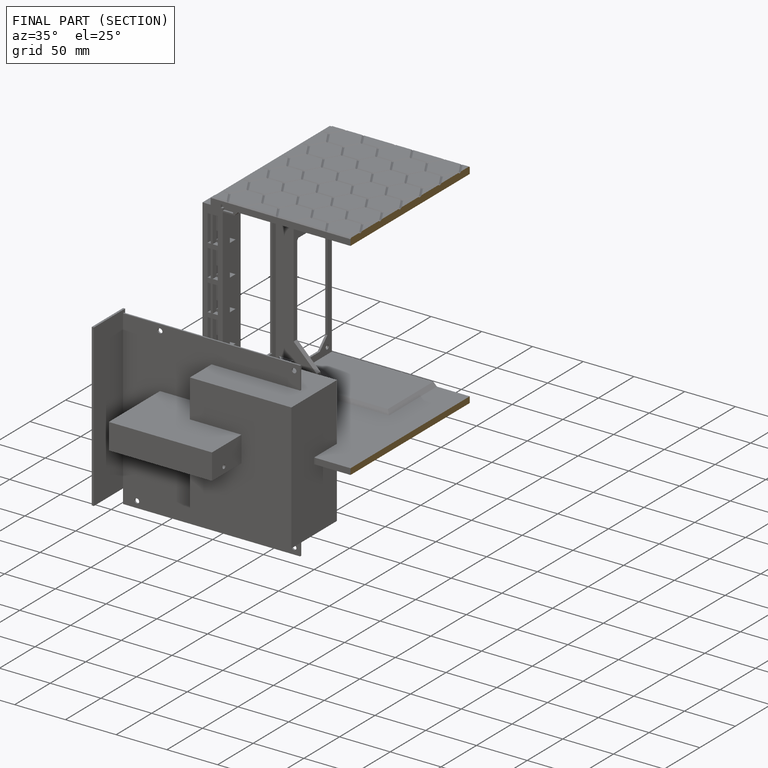
[diagram: finished part — half-section view (interior)]
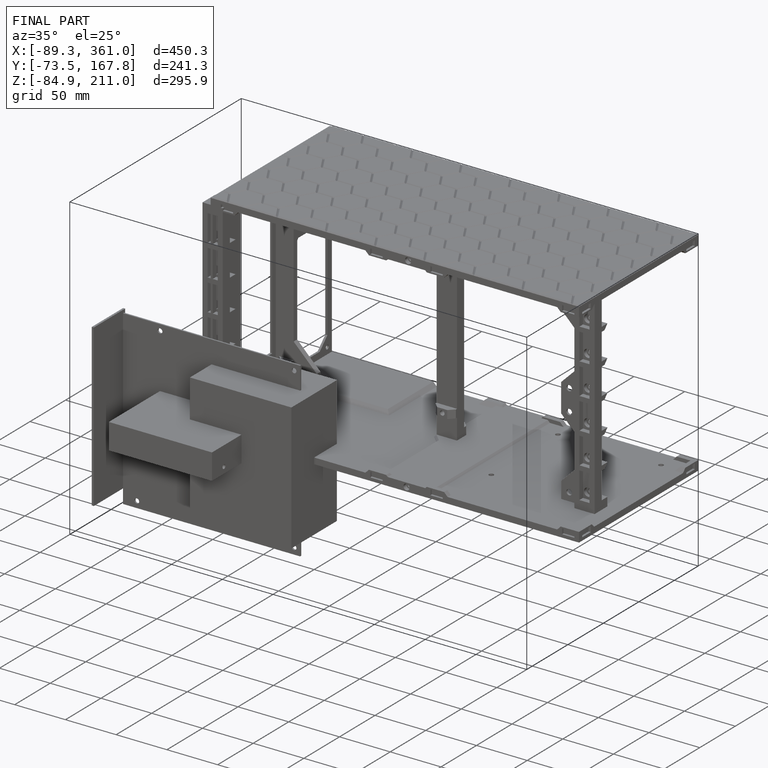
[diagram: finished part — iso view with bounding-box wireframe]
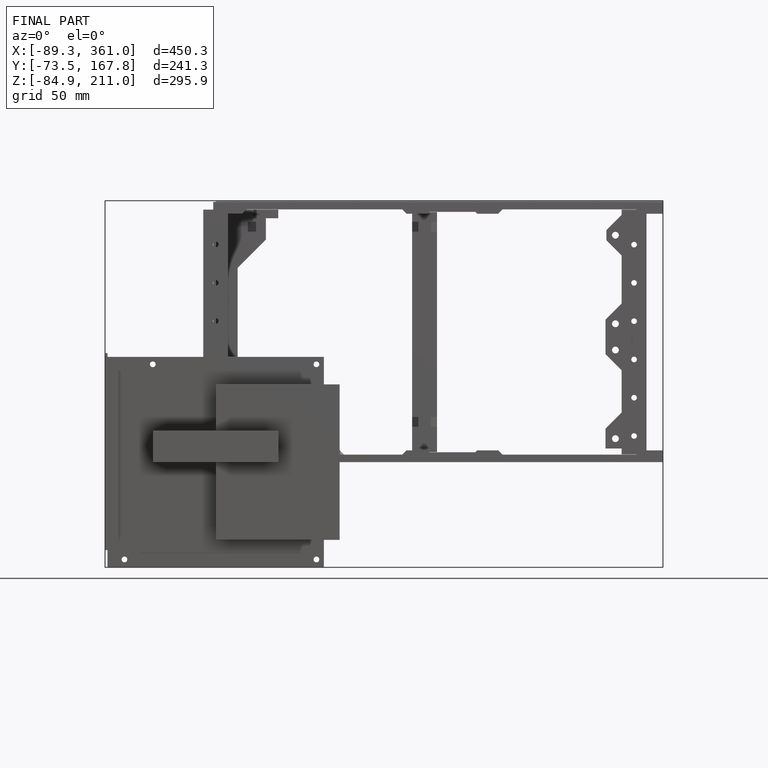
[diagram: finished part — front view with bounding-box wireframe]
